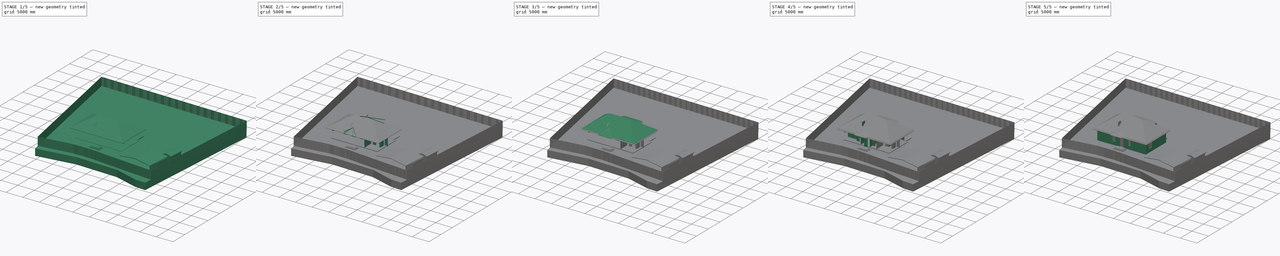
[diagram: build sequence overview — one tinted view per stage of 5, left to right]
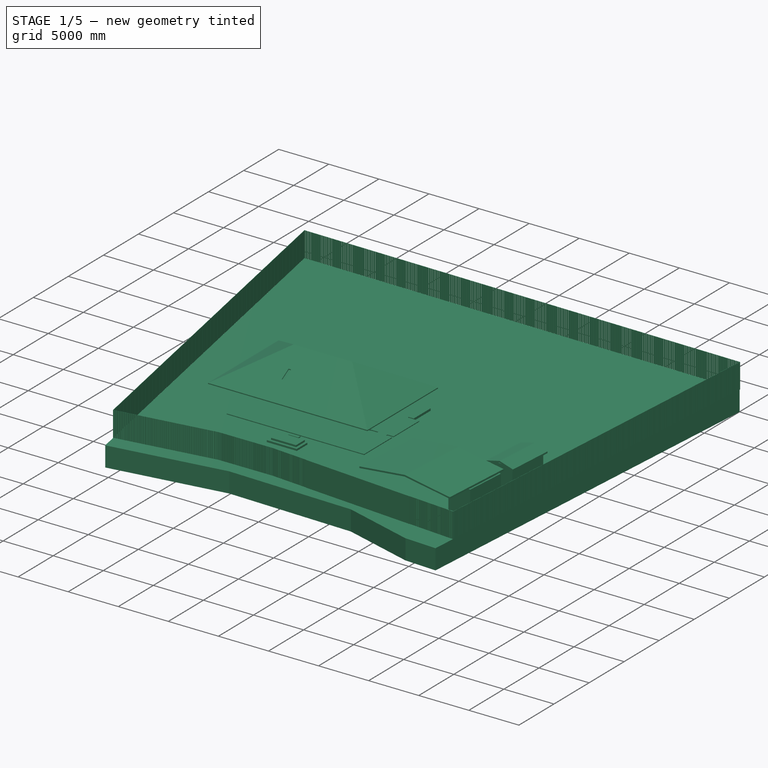
[diagram: stage 1 of 5 — iso view after this stage's code; geometry added in this stage tinted green]
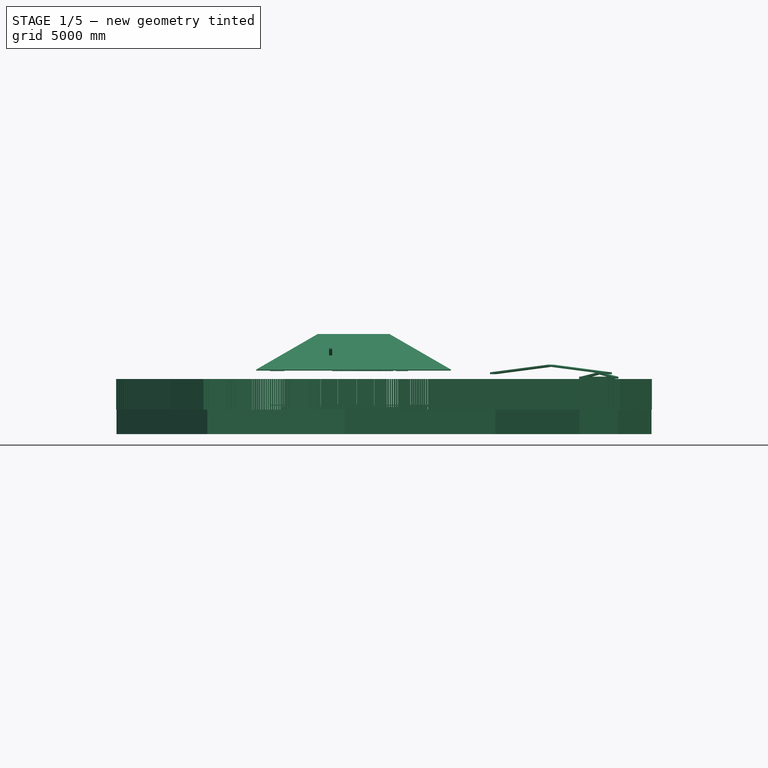
[diagram: stage 1 of 5 — front view after this stage's code; geometry added in this stage tinted green]
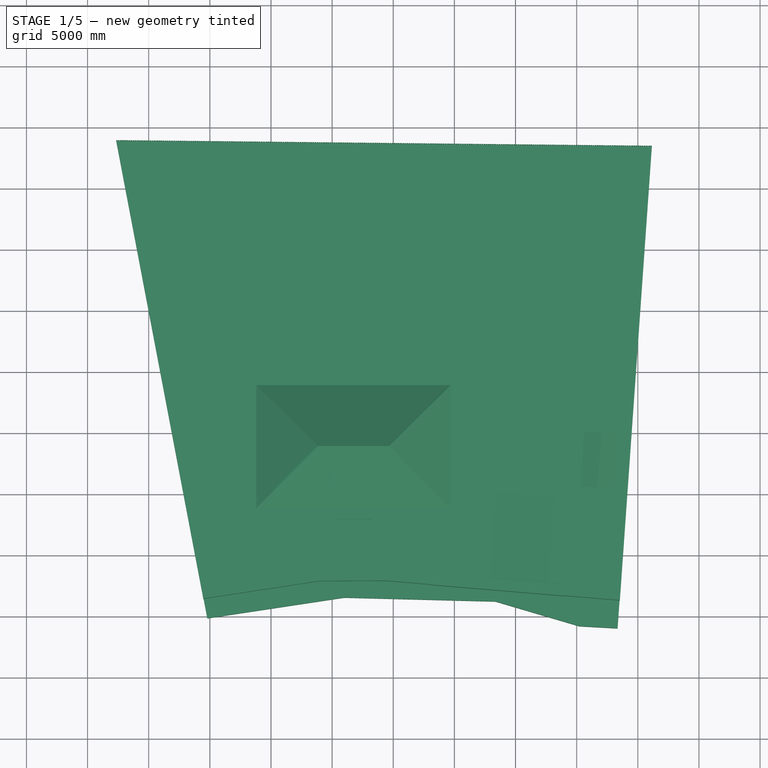
[diagram: stage 1 of 5 — top view after this stage's code; geometry added in this stage tinted green]
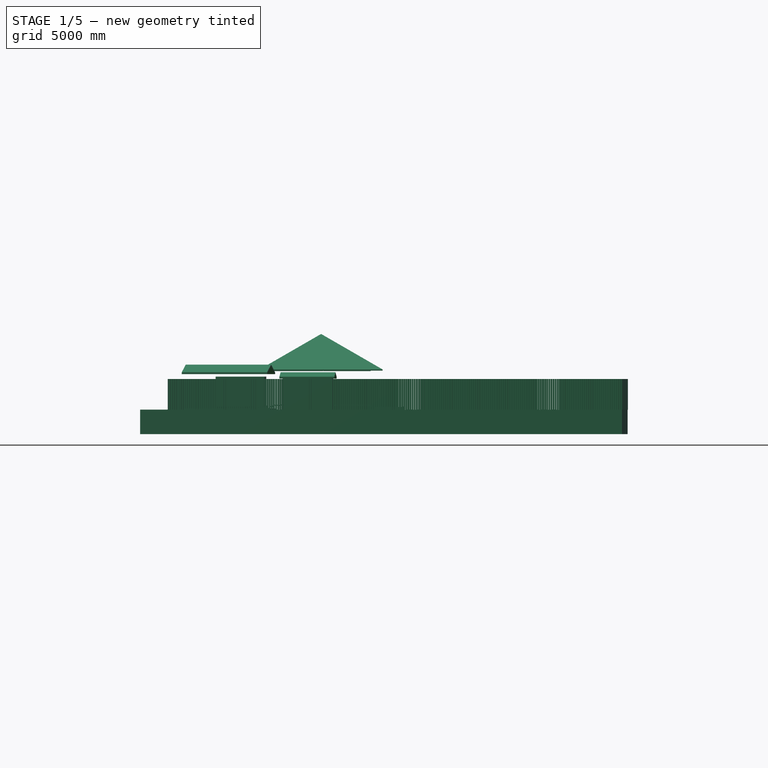
[diagram: stage 1 of 5 — right view after this stage's code; geometry added in this stage tinted green]
FCSTD DOCUMENT  (FreeCAD 0.18.4R)
Label: komfort_1fl_project_ext_221120_no_brick_blocks
License: All rights reserved
LicenseURL: http://en.wikipedia.org/wiki/All_rights_reserved
objects: Part::Part2DObjectPython×289, Part::FeaturePython×195, App::GeometryPython×27, Sketcher::SketchObject×19, Part::MultiCommon×18, Part::Feature×10, Part::Cut×10, Part::Extrusion×9, App::FeaturePython×5, Part::MultiFuse×4, App::DocumentObjectGroup×4, Part::Mirroring×1, Part::Loft×1, TechDraw::DrawSVGTemplate×1, TechDraw::DrawViewDraft×1, TechDraw::DrawPage×1, Image::ImagePlane×1
note: 583 computed .brp shape members not serialized (recipe doc carries the construction recipe); baked Part::Feature solids carry a one-line shape summary decoded from their .brp

FEATURE [App::GeometryPython] BuildingPart013  label="Утеплитель полки облицовки"  # Arch/BIM object (typed FeaturePython)
  Area = 0
  Group = -> [Array,Array010,Array011,Array012]
  Height = 0
  IfcRole = 0
  LevelOffset = 0
FEATURE [App::GeometryPython] BuildingPart012  label="Фундамент МЗЛФ"  # Arch/BIM object (typed FeaturePython)
  Area = 0
  Group = -> [Wall046,Wall047,BuildingPart013,Wall036]
  Height = 0
  IfcRole = 0
  LevelOffset = 0
FEATURE [App::GeometryPython] BuildingPart010  label="Фундамент и основание"  # Arch/BIM object (typed FeaturePython)
  Area = 0
  Group = -> [BuildingPart012]
  Height = 0
  IfcRole = 15
  LevelOffset = 0
FEATURE [Part::Part2DObjectPython] Rectangle2267  label="пол по грунту контур 002"  # Draft 2D object (typed FeaturePython)
  ChamferSize = 0
  Columns = 1
  FilletRadius = 0
  Height = 3655
  Length = 13710
  MakeFace = false
  Placement = pos=(-100,4100,0) rot=(0,0,1;0rad)
  Rows = 1
FEATURE [Part::Part2DObjectPython] Rectangle2268  label="пол по грунту контур 001"  # Draft 2D object (typed FeaturePython)
  ChamferSize = 0
  Columns = 1
  FilletRadius = 0
  Height = 4000
  Length = 13710
  MakeFace = false
  Placement = pos=(-100,-100,0) rot=(0,0,1;0rad)
  Rows = 1
FEATURE [Part::FeaturePython] Structure034  label="пол по грунту плита 80мм 001"  # Arch/BIM object (typed FeaturePython)
  Base = -> Rectangle2267
  FaceMaker = 0
  Height = 80
  HorizontalArea = 5.011e+07
  IfcRole = 0
  Length = 0
  MoveWithHost = false
  Nodes = (2) [(6755,5927.5,0),(6755,5927.5,80)]
  NodesOffset = 0
  Normal = (0,0,1)
  PerimeterLength = 34730
  Placement = pos=(0,0,-80) rot=(0,0,1;0rad)
  VerticalArea = 2.7784e+06
  Width = 100
FEATURE [Part::FeaturePython] Structure035  label="пол по грунту плита 80мм 002"  # Arch/BIM object (typed FeaturePython)
  Base = -> Rectangle2268
  FaceMaker = 0
  Height = 80
  HorizontalArea = 54840000
  IfcRole = 0
  Length = 0
  MoveWithHost = false
  Nodes = (2) [(6040,1827.5,0),(6040,1827.5,-100)]
  NodesOffset = 0
  Normal = (0,0,1)
  PerimeterLength = 35420
  Placement = pos=(0,0,-80) rot=(0,0,1;0rad)
  VerticalArea = 2.8336e+06
  Width = 100
FEATURE [Part::Part2DObjectPython] Circle071  # Draft 2D object (typed FeaturePython)
  FirstAngle = 0
  LastAngle = 0
  MakeFace = false
  Placement = pos=(8500,900,0) rot=(0,0,1;0rad)
  Radius = 580
FEATURE [Part::Part2DObjectPython] Circle072  # Draft 2D object (typed FeaturePython)
  FirstAngle = 0
  LastAngle = 0
  MakeFace = false
  Placement = pos=(8500,900,0) rot=(0,0,1;0rad)
  Radius = 500
FEATURE [Part::Part2DObjectPython] Circle073  label="люк_контур 001"  # Draft 2D object (typed FeaturePython)
  FirstAngle = 0
  LastAngle = 0
  MakeFace = false
  Placement = pos=(8500,1000,0) rot=(0,0,1;0rad)
  Radius = 350
FEATURE [Part::Part2DObjectPython] Rectangle2269  label="проём в перекрытии 002"  # Draft 2D object (typed FeaturePython)
  ChamferSize = 0
  Columns = 1
  FilletRadius = 0
  Height = 1000
  Length = 250
  MakeFace = false
  Placement = pos=(4750,800,0) rot=(0,0,1;0rad)
  Rows = 1
FEATURE [Part::FeaturePython] Structure036  label="проём в перекрытии 003"  # Arch/BIM object (typed FeaturePython)
  Base = -> Rectangle2269
  FaceMaker = 0
  Height = 6750
  HorizontalArea = 250000
  IfcRole = 0
  Length = 0
  MoveWithHost = false
  Nodes = (2) [(4875,1300,0),(4875,1300,6750)]
  NodesOffset = 0
  Normal = (0,0,0)
  PerimeterLength = 2500
  VerticalArea = 16875000
  Width = 100
FEATURE [Part::FeaturePython] Structure037  label="проём в перекрытии 004"  # Arch/BIM object (typed FeaturePython)
  Base = -> Rectangle1992
  FaceMaker = 0
  Height = 4500
  HorizontalArea = 2.66e+06
  IfcRole = 0
  Length = 0
  MoveWithHost = false
  Nodes = (2) [(9700,5430,0),(9700,5430,4500)]
  NodesOffset = 0
  Normal = (0,0,0)
  PerimeterLength = 7320
  VerticalArea = 32940000
  Width = 100
FEATURE [App::GeometryPython] BuildingPart019  label="Ненужное"  # Arch/BIM object (typed FeaturePython)
  Area = 0
  Group = -> [BuildingPart008,BuildingPart009,Structure044,BuildingPart015,BuildingPart017,Cut009,Common017,Common016]
  Height = 0
  IfcRole = 0
  LevelOffset = 0
FEATURE [Part::FeaturePython] Structure061  label="пол по грунту в проёмах 001"  # Arch/BIM object (typed FeaturePython)
  Base = -> Rectangle2327
  FaceMaker = 0
  Height = 80
  HorizontalArea = 240000
  IfcRole = 0
  Length = 0
  MoveWithHost = false
  Nodes = (2) [(1900,4000,0),(1900,4000,80)]
  NodesOffset = 0
  Normal = (0,0,1)
  PerimeterLength = 2800
  Placement = pos=(0,0,-80) rot=(0,0,1;0rad)
  VerticalArea = 224000
  Width = 100
FEATURE [Part::FeaturePython] Structure062  label="пол по грунту в проёмах 012"  # Arch/BIM object (typed FeaturePython)
  Base = -> Rectangle
  FaceMaker = 0
  Height = 80
  HorizontalArea = 740000
  IfcRole = 0
  Length = 0
  MoveWithHost = false
  Nodes = (2) [(6755,4000,0),(6755,4000,80)]
  NodesOffset = 0
  Normal = (0,0,1)
  PerimeterLength = 7800
  Placement = pos=(0,0,-80) rot=(0,0,1;0rad)
  VerticalArea = 624000
  Width = 100
FEATURE [Part::FeaturePython] Structure063  label="пол по грунту в проёмах 011"  # Arch/BIM object (typed FeaturePython)
  Base = -> Rectangle2147
  FaceMaker = 0
  Height = 80
  HorizontalArea = 180000
  IfcRole = 0
  Length = 0
  MoveWithHost = false
  Nodes = (2) [(10850,4000,0),(10850,4000,80)]
  NodesOffset = 0
  Normal = (0,0,1)
  PerimeterLength = 2200
  Placement = pos=(0,0,-80) rot=(0,0,1;0rad)
  VerticalArea = 176000
  Width = 100
FEATURE [Part::FeaturePython] Structure064  label="пол по грунту в проёмах 010"  # Arch/BIM object (typed FeaturePython)
  Base = -> Rectangle2322
  FaceMaker = 0
  Height = 80
  HorizontalArea = 180000
  IfcRole = 0
  Length = 0
  MoveWithHost = false
  Nodes = (2) [(12550,4000,0),(12550,4000,80)]
  NodesOffset = 0
  Normal = (0,0,1)
  PerimeterLength = 2200
  Placement = pos=(0,0,-80) rot=(0,0,1;0rad)
  VerticalArea = 176000
  Width = 100
FEATURE [Part::FeaturePython] Structure066  label="утепление пола в проёмах 014"  # Arch/BIM object (typed FeaturePython)
  Base = -> Rectangle
  FaceMaker = 0
  Height = 100
  HorizontalArea = 740000
  IfcRole = 0
  Length = 0
  MoveWithHost = false
  Nodes = (2) [(6755,4000,0),(6755,4000,100)]
  NodesOffset = 0
  Normal = (0,0,1)
  PerimeterLength = 7800
  Placement = pos=(0,0,-180) rot=(0,0,1;0rad)
  VerticalArea = 780000
  Width = 100
FEATURE [Part::FeaturePython] Structure067  label="утепление пола в проёмах 015"  # Arch/BIM object (typed FeaturePython)
  Base = -> Rectangle2147
  FaceMaker = 0
  Height = 100
  HorizontalArea = 180000
  IfcRole = 0
  Length = 0
  MoveWithHost = false
  Nodes = (2) [(10850,4000,0),(10850,4000,100)]
  NodesOffset = 0
  Normal = (0,0,1)
  PerimeterLength = 2200
  Placement = pos=(0,0,-180) rot=(0,0,1;0rad)
  VerticalArea = 220000
  Width = 100
FEATURE [Part::FeaturePython] Structure068  label="утепление пола в проёмах 016"  # Arch/BIM object (typed FeaturePython)
  Base = -> Rectangle2322
  FaceMaker = 0
  Height = 100
  HorizontalArea = 180000
  IfcRole = 0
  Length = 0
  MoveWithHost = false
  Nodes = (2) [(12550,4000,0),(12550,4000,100)]
  NodesOffset = 0
  Normal = (0,0,1)
  PerimeterLength = 2200
  Placement = pos=(0,0,-180) rot=(0,0,1;0rad)
  VerticalArea = 220000
  Width = 100
FEATURE [Part::FeaturePython] Structure069  label="утепление пола в проёмах 017"  # Arch/BIM object (typed FeaturePython)
  Base = -> Rectangle2169
  FaceMaker = 0
  Height = 100
  HorizontalArea = 300000
  IfcRole = 0
  Length = 0
  MoveWithHost = false
  Nodes = (2) [(6755,-250,0),(6755,-250,100)]
  NodesOffset = 0
  Normal = (0,0,1)
  PerimeterLength = 2600
  Placement = pos=(0,0,-180) rot=(0,0,1;0rad)
  VerticalArea = 260000
  Width = 100
FEATURE [Part::FeaturePython] Structure070  label="утепление пола в проёмах 018"  # Arch/BIM object (typed FeaturePython)
  Base = -> Rectangle2189
  FaceMaker = 0
  Height = 100
  HorizontalArea = 405000
  IfcRole = 0
  Length = 0
  MoveWithHost = false
  Nodes = (2) [(1815,7910,0),(1815,7910,100)]
  NodesOffset = 0
  Normal = (0,0,1)
  PerimeterLength = 3300
  Placement = pos=(0,0,-180) rot=(0,0,1;0rad)
  VerticalArea = 330000
  Width = 100
FEATURE [Part::FeaturePython] Structure071  label="утепление пола в проёмах 019"  # Arch/BIM object (typed FeaturePython)
  Base = -> Rectangle2188
  FaceMaker = 0
  Height = 100
  HorizontalArea = 561000
  IfcRole = 0
  Length = 0
  MoveWithHost = false
  Nodes = (2) [(6755,7910,0),(6755,7910,100)]
  NodesOffset = 0
  Normal = (0,0,1)
  PerimeterLength = 4340
  Placement = pos=(0,0,-180) rot=(0,0,1;0rad)
  VerticalArea = 434000
  Width = 100
FEATURE [Part::FeaturePython] Structure072  label="утепление пола в проёмах 020"  # Arch/BIM object (typed FeaturePython)
  Base = -> Rectangle2190
  FaceMaker = 0
  Height = 100
  HorizontalArea = 405000
  IfcRole = 0
  Length = 0
  MoveWithHost = false
  Nodes = (2) [(11695,7910,0),(11695,7910,100)]
  NodesOffset = 0
  Normal = (0,0,1)
  PerimeterLength = 3300
  Placement = pos=(0,0,-180) rot=(0,0,1;0rad)
  VerticalArea = 330000
  Width = 100
FEATURE [App::GeometryPython] BuildingPart020  label="Утепление пола по грунту"  # Arch/BIM object (typed FeaturePython)
  Area = 0
  Group = -> [Wall049,Wall048,Structure065,Structure066,Structure067,Structure068,Structure069,Structure070,Structure071,Structure072]
  Height = 0
  IfcRole = 0
  LevelOffset = 0
FEATURE [App::GeometryPython] BuildingPart021  label="Пол по грунту стяжка"  # Arch/BIM object (typed FeaturePython)
  Area = 0
  Group = -> [Structure034,Structure035,Structure064,Structure063,Structure062,Structure061]
  Height = 0
  IfcRole = 0
  LevelOffset = 0
FEATURE [App::GeometryPython] BuildingPart014  label="Полы по грунту"  # Arch/BIM object (typed FeaturePython)
  Area = 0
  Group = -> [BuildingPart020,BuildingPart021]
  Height = 0
  IfcRole = 0
  LevelOffset = 0
FEATURE [Part::Part2DObjectPython] Rectangle2356  # Draft 2D object (typed FeaturePython)
  ChamferSize = 0
  Columns = 1
  FilletRadius = 0
  Height = 8360
  Length = 14210
  MakeFace = false
  Placement = pos=(-350,8010,-980) rot=(1,0,0;3.14159rad)
  Rows = 1
FEATURE [Sketcher::SketchObject] Sketch248
  Placement = pos=(10400,3900,-180) rot=(1,0,0;1.5708rad)
  sketch-geometry (8):
    g0: LineSegment StartX=0 StartY=0 StartZ=0 EndX=900 EndY=0 EndZ=0
    g1: LineSegment StartX=900 StartY=0 StartZ=0 EndX=900 EndY=2070 EndZ=0
    g2: LineSegment StartX=900 StartY=2070 StartZ=0 EndX=0 EndY=2070 EndZ=0
    g3: LineSegment StartX=0 StartY=2070 StartZ=0 EndX=0 EndY=0 EndZ=0
    g4: LineSegment StartX=50 StartY=0 StartZ=0 EndX=850 EndY=0 EndZ=0
    g5: LineSegment StartX=850 StartY=0 StartZ=0 EndX=850 EndY=2020 EndZ=0
    g6: LineSegment StartX=850 StartY=2020 StartZ=0 EndX=50 EndY=2020 EndZ=0
    g7: LineSegment StartX=50 StartY=2020 StartZ=0 EndX=50 EndY=0 EndZ=0
  constraints (23):
    c: Coincident(g0,g1)
    c: Coincident(g1,g2)
    c: Coincident(g2,g3)
    c: Coincident(g3,g0)
    c: Horizontal(g0)
    c: Horizontal(g2)
    c: Vertical(g1)
    c: Vertical(g3)
    c: Coincident(g4,g5)
    c: Coincident(g5,g6)
    c: Coincident(g6,g7)
    c: Coincident(g7,g4)
    c: Horizontal(g4)
    c: Horizontal(g6)
    c: Vertical(g5)
    c: Vertical(g7)
    c: DistanceY(g1) = 2070  'Height'
    c: DistanceX(g0) = 900  'Width'
    c: DistanceY(g6,g2) = 50  'Frame1'
    c: DistanceX(g2,g6) = 50  'Frame2'
    c: DistanceX(g4,g0) = 50  'Frame3'
    c: DistanceY(g0,g4) = 0
    c: Coincident(g0,g-1)
FEATURE [Part::FeaturePython] Window020  label="Д-90-007"  # Arch/BIM object (typed FeaturePython)
  Area = 1863000
  Base = -> Sketch248
  Frame = 50
  Height = 2070
  HoleDepth = 0
  HoleWire = 0
  HorizontalArea = 0
  IfcRole = 42
  LouvreSpacing = 0
  LouvreWidth = 0
  MoveWithHost = true
  Normal = (0,1,-2e-16)
  Offset = 150
  Opening = 0
  PerimeterLength = 0
  Placement = pos=(0,0,180) rot=(0,0,1;0rad)
  Preset = 6
  SymbolElevation = false
  SymbolPlan = false
  VerticalArea = 0
  Width = 900
  WindowParts = OuterFrame | Frame | Wire0,Wire1 | 0.0+V | 0.00+V | Door | Solid panel | Wire1 | 50.0 | 0.0+V
FEATURE [App::GeometryPython] BuildingPart011  label="Окна и двери"  # Arch/BIM object (typed FeaturePython)
  Area = 0
  Group = -> [Window,Window002,Window003,Window007,Window008,Window009,Window010,Window011,Window013,Window016,Window015,Window017,Window018,Window019,Window020]
  Height = 0
  IfcRole = 0
  LevelOffset = 0
FEATURE [App::GeometryPython] BuildingPart004  label="Первый этаж"  # Arch/BIM object (typed FeaturePython)
  Area = 0
  Group = -> [BuildingPart002,Wall010,Wall011,BuildingPart,BuildingPart005,BuildingPart011,Extrude002,BuildingPart014]
  Height = 0
  IfcRole = 15
  LevelOffset = 0
FEATURE [Sketcher::SketchObject] Sketch249  label="Профиль ПНО 100-6"
  Placement = pos=(0,0,0) rot=(1,0,0;1.5708rad)
  sketch-geometry (15):
    g0: LineSegment StartX=0 StartY=0 StartZ=0 EndX=990 EndY=0 EndZ=0
    g1: LineSegment StartX=990 StartY=0 StartZ=0 EndX=990 EndY=160 EndZ=0
    g2: LineSegment StartX=990 StartY=160 StartZ=0 EndX=0 EndY=160 EndZ=0
    g3: LineSegment StartX=0 StartY=160 StartZ=0 EndX=0 EndY=0 EndZ=0
    g4: Circle CenterX=145 CenterY=80 CenterZ=0 NormalX=0 NormalY=0 NormalZ=1 AngleXU=0 Radius=50
    g5: Circle CenterX=285 CenterY=80 CenterZ=0 NormalX=0 NormalY=0 NormalZ=1 AngleXU=0 Radius=50
    g6: LineSegment [constr] StartX=145 StartY=80 StartZ=0 EndX=285 EndY=80 EndZ=0
    g7: Circle CenterX=425 CenterY=80 CenterZ=0 NormalX=0 NormalY=0 NormalZ=1 AngleXU=0 Radius=50
    g8: LineSegment [constr] StartX=285 StartY=80 StartZ=0 EndX=425 EndY=80 EndZ=0
    g9: Circle CenterX=565 CenterY=80 CenterZ=0 NormalX=0 NormalY=0 NormalZ=1 AngleXU=0 Radius=50
    g10: LineSegment [constr] StartX=425 StartY=80 StartZ=0 EndX=565 EndY=80 EndZ=0
    g11: Circle CenterX=705 CenterY=80 CenterZ=0 NormalX=0 NormalY=0 NormalZ=1 AngleXU=0 Radius=50
    g12: LineSegment [constr] StartX=565 StartY=80 StartZ=0 EndX=705 EndY=80 EndZ=0
    g13: Circle CenterX=845 CenterY=80 CenterZ=0 NormalX=0 NormalY=0 NormalZ=1 AngleXU=0 Radius=50
    g14: LineSegment [constr] StartX=705 StartY=80 StartZ=0 EndX=845 EndY=80 EndZ=0
  constraints (39):
    c: Coincident(g0,g1)
    c: Coincident(g1,g2)
    c: Coincident(g2,g3)
    c: Coincident(g3,g0)
    c: Horizontal(g0)
    c: Horizontal(g2)
    c: Vertical(g1)
    c: Vertical(g3)
    c: Coincident(g0,g-1)
    c: DistanceY(g3,g3) = 160
    c: DistanceX(g2,g2) = 990
    c: Diameter(g4) = 100
    c: DistanceY(g4,g2) = 80
    c: Diameter(g5) = 100
    c: Coincident(g4,g6)
    c: Coincident(g5,g6)
    c: Distance(g6) = 140
    c: Angle(g6) = 0
    c: Diameter(g7) = 100
    c: Coincident(g5,g8)
    c: Coincident(g7,g8)
    c: Equal(g6,g8)
    c: Parallel(g8,g6)
    c: Diameter(g9) = 100
    c: Coincident(g7,g10)
    c: Coincident(g9,g10)
    c: Equal(g6,g10)
    c: Parallel(g10,g6)
    c: Diameter(g11) = 100
    c: Coincident(g9,g12)
    c: Coincident(g11,g12)
    c: Equal(g6,g12)
    c: Parallel(g12,g6)
    c: Diameter(g13) = 100
    c: Coincident(g11,g14)
    c: Coincident(g13,g14)
    c: Equal(g6,g14)
    c: Parallel(g14,g6)
    c: DistanceX(g2,g4) = 145
FEATURE [Part::Extrusion] Extrude003  label="ПНО 39-10-6-001"
  Base = -> Sketch249
  Dir = (0,1,0)
  DirMode = 0
  FaceMakerClass = Part::FaceMakerBullseye
  LengthFwd = 3880
  LengthRev = 0
  Placement = pos=(7110,4000,2750) rot=(0,0,1;0rad)
  Solid = true
  Symmetric = false
FEATURE [Part::Extrusion] Extrude004  label="ПНО 39-12-8-002"
  Base = -> Sketch231
  Dir = (0,1,0)
  DirMode = 0
  FaceMakerClass = Part::FaceMakerBullseye
  LengthFwd = 3880
  LengthRev = 0
  Placement = pos=(-90,4000,2750) rot=(0,0,1;0rad)
  Solid = true
  Symmetric = false
FEATURE [Part::Extrusion] Extrude005  label="ПНО 39-10-6-002"
  Base = -> Sketch249
  Dir = (0,1,0)
  DirMode = 0
  FaceMakerClass = Part::FaceMakerBullseye
  LengthFwd = 3880
  LengthRev = 0
  Placement = pos=(10210,4000,2750) rot=(0,0,1;0rad)
  Solid = true
  Symmetric = false
FEATURE [Part::FeaturePython] Array016  # Draft array (typed FeaturePython)
  Angle = 360
  ArrayType = 0
  Axis = (0,0,1)
  Base = -> Extrude003
  Center = (0,0,0)
  Fuse = false
  IntervalAxis = (0,0,0)
  IntervalX = (1000,0,0)
  IntervalY = (0,1,0)
  IntervalZ = (0,0,1)
  NumberPolar = 1
  NumberX = 2
  NumberY = 1
  NumberZ = 1
  Placement = pos=(-1.5e-14,0,0) rot=(0,0,1;0rad)
FEATURE [Part::Extrusion] Extrude006  label="ПНО 42-10-6-001"
  Base = -> Sketch249
  Dir = (0,1,0)
  DirMode = 0
  FaceMakerClass = Part::FaceMakerBullseye
  LengthFwd = 4180
  LengthRev = 0
  Placement = pos=(5010,-190,2750) rot=(0,0,1;0rad)
  Solid = true
  Symmetric = false
FEATURE [Part::FeaturePython] Array017  # Draft array (typed FeaturePython)
  Angle = 360
  ArrayType = 0
  Axis = (0,0,1)
  Base = -> Extrude006
  Center = (0,0,0)
  Fuse = false
  IntervalAxis = (0,0,0)
  IntervalX = (1000,0,0)
  IntervalY = (0,1,0)
  IntervalZ = (0,0,1)
  NumberPolar = 1
  NumberX = 5
  NumberY = 1
  NumberZ = 1
  Placement = pos=(-1.5e-14,0,0) rot=(0,0,1;0rad)
FEATURE [Part::Part2DObjectPython] Wire459  # Draft 2D object (typed FeaturePython)
  ChamferSize = 0
  Closed = true
  End = (-1100,8760,0)
  FilletRadius = 0
  Length = 51140
  MakeFace = false
  Placement = pos=(-1100,-1100,0) rot=(0,0,1;0rad)
  Points = (4) [(0,0,0),(15710,0,0),(15710,9860,0),(0,9860,0)]
  Start = (-1100,-1100,0)
  Subdivisions = 0
FEATURE [Part::FeaturePython] Roof008  label="Крыша основная"  # Arch/BIM object (typed FeaturePython)
  Angles = [30,30,30,30]
  Base = -> Wire459
  BorderLength = 54749.4
  Face = 0
  Flip = false
  Heights = [2846.34,2846.34,2846.34,2846.34]
  HorizontalArea = 105328200
  IdRel = [0,0,0,0]
  IfcRole = 111
  MoveWithHost = false
  Overhang = [100,100,100,100]
  PerimeterLength = 56107
  Placement = pos=(0,0,2850) rot=(0,0,1;0rad)
  RidgeLength = 36583.8
  Runs = [4930,4930,4930,4930]
  Subtractions = -> [Structure036]
  Thickness = [80,80,80,80]
  VerticalArea = 5.02895e+06
FEATURE [App::GeometryPython] BuildingPart007  label="Чердак и кровля"  # Arch/BIM object (typed FeaturePython)
  Area = 0
  Group = -> [Roof008,BuildingPart018]
  Height = 0
  IfcRole = 15
  LevelOffset = 0
FEATURE [Part::Part2DObjectPython] Rectangle2358  # Draft 2D object (typed FeaturePython)
  ChamferSize = 0
  Columns = 1
  FilletRadius = 0
  Height = 580
  Length = 580
  MakeFace = false
  Placement = pos=(-1100,-1100,0) rot=(0,0,1;0rad)
  Rows = 1
FEATURE [Part::Part2DObjectPython] Rectangle2359  # Draft 2D object (typed FeaturePython)
  ChamferSize = 0
  Columns = 1
  FilletRadius = 0
  Height = 580
  Length = 580
  MakeFace = false
  Placement = pos=(14030,8180,0) rot=(0,0,1;0rad)
  Rows = 1
FEATURE [Part::Part2DObjectPython] Rectangle2360  # Draft 2D object (typed FeaturePython)
  ChamferSize = 0
  Columns = 1
  FilletRadius = 0
  Height = 580
  Length = 580
  MakeFace = false
  Placement = pos=(-1100,8180,0) rot=(0,0,1;0rad)
  Rows = 1
FEATURE [Part::Part2DObjectPython] Rectangle2361  # Draft 2D object (typed FeaturePython)
  ChamferSize = 0
  Columns = 1
  FilletRadius = 0
  Height = 580
  Length = 580
  MakeFace = false
  Placement = pos=(14030,-1100,0) rot=(0,0,1;0rad)
  Rows = 1
FEATURE [Part::Part2DObjectPython] Rectangle2362  # Draft 2D object (typed FeaturePython)
  ChamferSize = 0
  Columns = 1
  FilletRadius = 0
  Height = 70
  Length = 70
  MakeFace = false
  Placement = pos=(14610,8760,0) rot=(0,0,1;0rad)
  Rows = 1
FEATURE [Part::Part2DObjectPython] Rectangle2363  # Draft 2D object (typed FeaturePython)
  ChamferSize = 0
  Columns = 1
  FilletRadius = 0
  Height = 70
  Length = 70
  MakeFace = false
  Placement = pos=(14610,-1170,0) rot=(0,0,1;0rad)
  Rows = 1
FEATURE [Part::Part2DObjectPython] Rectangle2364  # Draft 2D object (typed FeaturePython)
  ChamferSize = 0
  Columns = 1
  FilletRadius = 0
  Height = 4540
  Length = 10380
  MakeFace = false
  Placement = pos=(1570,1560,0) rot=(0,0,1;0rad)
  Rows = 1
FEATURE [Part::Part2DObjectPython] Wire460  label="границы участка"  # Draft 2D object (typed FeaturePython)
  ChamferSize = 0
  Closed = true
  End = (31124.9,28433.6,0)
  FilletRadius = 0
  Length = 156987
  MakeFace = false
  Placement = pos=(28345.4,-10972.9,0) rot=(0,0,1;0rad)
  Points = (7) [(0,0,0),(-3118.22,176.296,0),(-9989.98,2199.83,0),(-22349.9,2518.26,0),(-33551.4,825.818,0),(-40981.4,39865.2,0),(2779.54,39406.5,0)]
  Start = (28345.4,-10972.9,0)
  Subdivisions = 0
FEATURE [Part::Part2DObjectPython] Rectangle2365  label="зона парковки-навес"  # Draft 2D object (typed FeaturePython)
  ChamferSize = 0
  Columns = 1
  FilletRadius = 0
  Height = 7000
  Length = 7000
  MakeFace = false
  Placement = pos=(17916.6,-6918.81,0) rot=(0,0,-1;0.068796rad)
  Rows = 1
FEATURE [Part::Part2DObjectPython] Rectangle2368  # Draft 2D object (typed FeaturePython)
  ChamferSize = 0
  Columns = 1
  FilletRadius = 0
  Height = 2300
  Length = 4000
  MakeFace = false
  Placement = pos=(25852.9,4833.9,0) rot=(0,0,-1;1.63959rad)
  Rows = 1
FEATURE [Part::Part2DObjectPython] Wire462  label="мауэрлат002"  # Draft 2D object (typed FeaturePython)
  ChamferSize = 0
  Closed = true
  End = (25852.9,4833.9,0)
  FilletRadius = 0
  Length = 12600
  MakeFace = false
  Placement = pos=(25577.9,843.359,0) rot=(0,0,-1;1.63959rad)
  Points = (4) [(0,0,0),(0,2300,0),(-4000,2300,0),(-4000,-2.18279e-11,0)]
  Start = (25577.9,843.359,0)
  Subdivisions = 0
FEATURE [Part::FeaturePython] Roof010  label="Крыша001"  # Arch/BIM object (typed FeaturePython)
  Angles = [90,14.6,90,14.6]
  Base = -> Wire462
  BorderLength = 15096.9
  Face = 0
  Flip = false
  Heights = [0,299.553,0,299.553]
  HorizontalArea = 1.26e+07
  IdRel = [0,0,0,0]
  IfcRole = 111
  MoveWithHost = false
  Overhang = [250,250,250,250]
  PerimeterLength = 14600
  Placement = pos=(0,0,2200) rot=(0,0,1;0rad)
  RidgeLength = 7393.43
  Runs = [250,1150,250,1150]
  Thickness = [150,150,150,150]
  VerticalArea = 2.26308e+06
FEATURE [Part::Part2DObjectPython] Rectangle2370  # Draft 2D object (typed FeaturePython)
  ChamferSize = 0
  Columns = 1
  FilletRadius = 0
  Height = 500
  Length = 150
  MakeFace = true
  Placement = pos=(26037.1,962.071,0) rot=(0,0,-1;1.63959rad)
  Rows = 1
FEATURE [Part::Part2DObjectPython] Rectangle2372  # Draft 2D object (typed FeaturePython)
  ChamferSize = 0
  Columns = 1
  FilletRadius = 0
  Height = 150
  Length = 500
  MakeFace = true
  Placement = pos=(25753.2,3387.33,0) rot=(0,0,-1;1.63959rad)
  Rows = 1
FEATURE [Part::FeaturePython] Structure128  label="Structure"  # Arch/BIM object (typed FeaturePython)
  Base = -> Rectangle2372
  FaceMaker = 0
  Height = 600
  HorizontalArea = 75000
  IfcRole = 0
  Length = 0
  MoveWithHost = false
  Nodes = (2) [(1351.07,-25965.1,0),(1351.07,-25965.1,600)]
  NodesOffset = 0
  Normal = (0,0,0)
  PerimeterLength = 1300
  Placement = pos=(0,-4e-15,1240) rot=(0,0,1;0rad)
  VerticalArea = 780000
  Width = 100
FEATURE [Part::FeaturePython] Structure130  label="Structure129"  # Arch/BIM object (typed FeaturePython)
  Base = -> Rectangle2370
  FaceMaker = 0
  Height = 600
  HorizontalArea = 75000
  IfcRole = 0
  Length = 0
  MoveWithHost = false
  Nodes = (2) [(-938.622,-26279,0),(-938.622,-26279,600)]
  NodesOffset = 0
  Normal = (0,0,0)
  PerimeterLength = 1300
  Placement = pos=(0,-4e-15,1240) rot=(0,0,1;0rad)
  VerticalArea = 780000
  Width = 100
FEATURE [Part::Part2DObjectPython] Rectangle2373  # Draft 2D object (typed FeaturePython)
  ChamferSize = 0
  Columns = 1
  FilletRadius = 0
  Height = 150
  Length = 800
  MakeFace = true
  Placement = pos=(25667.3,2140.28,0) rot=(0,0,-1;1.63959rad)
  Rows = 1
FEATURE [Part::FeaturePython] Structure131  label="Structure130"  # Arch/BIM object (typed FeaturePython)
  Base = -> Rectangle2373
  FaceMaker = 0
  Height = 1800
  HorizontalArea = 120000
  IfcRole = 0
  Length = 0
  MoveWithHost = false
  Nodes = (2) [(-35.6948,-25773.1,0),(-35.6948,-25773.1,1800)]
  NodesOffset = 0
  Normal = (0,0,0)
  PerimeterLength = 1900
  VerticalArea = 3.42e+06
  Width = 100
FEATURE [Part::FeaturePython] Wall094  label="Wall005"  # Arch/BIM object (typed FeaturePython)
  Align = 1
  Base = -> Rectangle2368
  BlockHeight = 0
  BlockLength = 0
  CountBroken = 0
  CountEntire = 0
  Face = 0
  Height = 2450
  HorizontalArea = 1.95e+06
  IfcRole = 156
  Joint = 0
  Length = 12600
  MakeBlocks = false
  MoveWithHost = false
  Normal = (0,0,0)
  OffsetFirst = 0
  OffsetSecond = 0
  PerimeterLength = 12600
  Placement = pos=(0,0,-150) rot=(0,0,1;0rad)
  Subtractions = -> [Structure128,Structure130,Structure131]
  VerticalArea = 57960000
  Width = 150
FEATURE [App::DocumentObjectGroup] Group115  label="Элементы баня"
  Group = -> [Wire462,Rectangle2373,Rectangle2370,Rectangle2372,Rectangle2368]
FEATURE [Part::FeaturePython] Structure132  label="парковка"  # Arch/BIM object (typed FeaturePython)
  Base = -> Rectangle2365
  FaceMaker = 0
  Height = 100
  HorizontalArea = 4.9e+07
  IfcRole = 0
  Length = 0
  MoveWithHost = false
  Nodes = (2) [(21648.9,-3667.68,0),(21648.9,-3667.68,-100)]
  NodesOffset = 0
  Normal = (0,0,-1)
  PerimeterLength = 28000
  Placement = pos=(0,0,-300) rot=(0,0,1;0rad)
  VerticalArea = 2.8e+06
  Width = 100
FEATURE [Part::Part2DObjectPython] Wire463  label="граница по ограждению"  # Draft 2D object (typed FeaturePython)
  ChamferSize = 0
  Closed = true
  End = (9400,-7084.9,0)
  FilletRadius = 0
  Length = 153279
  MakeFace = false
  Placement = pos=(28492.8,-8682.66,0) rot=(0,0,1;0rad)
  Points = (6) [(14.0233,-1.17368,0),(2632.1,37116.3,0),(-41128.8,37575,0),(-34003,133.748,0),(-24492.8,1579.34,0),(-19092.8,1597.76,0)]
  Start = (28506.9,-8683.84,0)
  Subdivisions = 0
FEATURE [Part::FeaturePython] Structure133  label="грунт в границах участка"  # Arch/BIM object (typed FeaturePython)
  Base = -> Wire460
  FaceMaker = 0
  Height = 2000
  HorizontalArea = 1.47224e+09
  IfcRole = 0
  Length = 0
  MoveWithHost = false
  Nodes = (2) [(10380.4,10482.9,0),(10380.4,10482.9,-2000)]
  NodesOffset = 0
  Normal = (0,0,-1)
  PerimeterLength = 156987
  Placement = pos=(0,0,-400) rot=(0,0,1;0rad)
  VerticalArea = 3.13974e+08
  Width = 100
FEATURE [Part::FeaturePython] Wall096  label="Wall006"  # Arch/BIM object (typed FeaturePython)
  Align = 0
  Base = -> Rectangle2368
  BlockHeight = 0
  BlockLength = 0
  CountBroken = 0
  CountEntire = 0
  Face = 0
  Height = 500
  HorizontalArea = 1.18e+06
  IfcRole = 156
  Joint = 0
  Length = 12600
  MakeBlocks = false
  MoveWithHost = false
  Normal = (0,0,-1)
  Offset = 50
  OffsetFirst = 0
  OffsetSecond = 0
  PerimeterLength = 12200
  Placement = pos=(0,0,-150) rot=(0,0,1;0rad)
  VerticalArea = 1.18e+07
  Width = 100
FEATURE [App::GeometryPython] BuildingPart032  label="Баня (перевозная)"  # Arch/BIM object (typed FeaturePython)
  Area = 0
  BuildingType = 0
  Group = -> [Wall094,Roof010,Wall096]
  Height = 0
  IfcRole = 11
  LevelOffset = 0
FEATURE [Part::Part2DObjectPython] Wire464  label="мауэрлат003"  # Draft 2D object (typed FeaturePython)
  ChamferSize = 0
  Closed = true
  End = (18397.7,64.633,0)
  FilletRadius = 0
  Length = 33000
  MakeFace = false
  Placement = pos=(25199.8,-4643.63,0) rot=(0,0,-1;1.63959rad)
  Points = (4) [(2770.46,-7109.62,0),(2770.46,2390.38,0),(-4229.54,2390.38,0),(-4229.54,-7109.62,0)]
  Start = (17916.6,-6918.81,0)
  Subdivisions = 0
FEATURE [Part::Part2DObjectPython] Rectangle2375  # Draft 2D object (typed FeaturePython)
  ChamferSize = 0
  Columns = 1
  FilletRadius = 0
  Height = 150
  Length = 800
  MakeFace = true
  Placement = pos=(25395.7,-1800.37,0) rot=(0,0,-1;1.63959rad)
  Rows = 1
FEATURE [Part::Part2DObjectPython] Rectangle2376  # Draft 2D object (typed FeaturePython)
  ChamferSize = 0
  Columns = 1
  FilletRadius = 0
  Height = 150
  Length = 500
  MakeFace = true
  Placement = pos=(25296,-3246.94,0) rot=(0,0,-1;1.63959rad)
  Rows = 1
FEATURE [Part::Part2DObjectPython] Rectangle2377  # Draft 2D object (typed FeaturePython)
  ChamferSize = 0
  Columns = 1
  FilletRadius = 0
  Height = 2300
  Length = 4000
  MakeFace = false
  Placement = pos=(25474.8,-653.093,0) rot=(0,0,-1;1.63959rad)
  Rows = 1
FEATURE [Part::FeaturePython] Roof011  label="Крыша002"  # Arch/BIM object (typed FeaturePython)
  Angles = [90,7.5,90,7.5]
  Base = -> Wire464
  BorderLength = 33163.9
  Face = 0
  Flip = false
  Heights = [0,658.262,0,658.262]
  HorizontalArea = 6.65e+07
  IdRel = [0,0,0,0]
  IfcRole = 111
  MoveWithHost = false
  Overhang = [0,0,0,0]
  PerimeterLength = 33000
  Placement = pos=(0,0,2500) rot=(0,0,1;0rad)
  RidgeLength = 7000
  Runs = [250,5000,250,5000]
  Thickness = [150,150,150,150]
  VerticalArea = 4.99271e+06
FEATURE [Part::FeaturePython] Structure135  label="Structure134"  # Arch/BIM object (typed FeaturePython)
  Base = -> Rectangle2375
  FaceMaker = 0
  Height = 1800
  HorizontalArea = 120000
  IfcRole = 0
  Length = 0
  MoveWithHost = false
  Nodes = (2) [(-35.6948,-25773.1,0),(-35.6948,-25773.1,1800)]
  NodesOffset = 0
  Normal = (0,0,0)
  PerimeterLength = 1900
  VerticalArea = 3.42e+06
  Width = 100
FEATURE [Part::FeaturePython] Structure136  label="Structure135"  # Arch/BIM object (typed FeaturePython)
  Base = -> Rectangle2376
  FaceMaker = 0
  Height = 600
  HorizontalArea = 75000
  IfcRole = 0
  Length = 0
  MoveWithHost = false
  Nodes = (2) [(1351.07,-25965.1,0),(1351.07,-25965.1,600)]
  NodesOffset = 0
  Normal = (0,0,0)
  PerimeterLength = 1300
  Placement = pos=(0,-4e-15,1240) rot=(0,0,1;0rad)
  VerticalArea = 780000
  Width = 100
FEATURE [Part::FeaturePython] Wall097  label="Wall007"  # Arch/BIM object (typed FeaturePython)
  Align = 1
  Base = -> Rectangle2377
  BlockHeight = 0
  BlockLength = 0
  CountBroken = 0
  CountEntire = 0
  Face = 0
  Height = 2450
  HorizontalArea = 1.995e+06
  IfcRole = 156
  Joint = 0
  Length = 12600
  MakeBlocks = false
  MoveWithHost = false
  Normal = (0,0,0)
  OffsetFirst = 0
  OffsetSecond = 0
  PerimeterLength = 12600
  Placement = pos=(0,0,-150) rot=(0,0,1;0rad)
  Subtractions = -> [Structure136,Structure135]
  VerticalArea = 5.604e+07
  Width = 150
FEATURE [App::GeometryPython] BuildingPart033  label="хозблок (бытовка)"  # Arch/BIM object (typed FeaturePython)
  Area = 0
  BuildingType = 0
  Group = -> [Roof011,Wall097,Structure132]
  Height = 0
  IfcRole = 11
  LevelOffset = 0
FEATURE [Part::Part2DObjectPython] Rectangle2378  # Draft 2D object (typed FeaturePython)
  ChamferSize = 0
  Columns = 1
  FilletRadius = 0
  Height = 7000
  Length = 9500
  MakeFace = false
  Placement = pos=(17916.6,-6918.81,0) rot=(0,0,-1;0.068796rad)
  Rows = 1
FEATURE [Part::Part2DObjectPython] Rectangle2379  # Draft 2D object (typed FeaturePython)
  ChamferSize = 0
  Columns = 1
  FilletRadius = 0
  Height = 100
  Length = 5500
  MakeFace = false
  Placement = pos=(18428,-7890.57,0) rot=(0,0,-1;0.083489rad)
  Rows = 1
FEATURE [Part::FeaturePython] Structure137  label="проём ворот"  # Arch/BIM object (typed FeaturePython)
  Base = -> Rectangle2379
  FaceMaker = 0
  Height = 2500
  HorizontalArea = 550000
  IfcRole = 0
  Length = 0
  MoveWithHost = false
  Nodes = (2) [(21172.6,-8270.08,0),(21172.6,-8270.08,2500)]
  NodesOffset = 0
  Normal = (0,0,0)
  PerimeterLength = 11200
  Placement = pos=(0,0,-400) rot=(0,0,1;0rad)
  VerticalArea = 2.8e+07
  Width = 100
FEATURE [Part::FeaturePython] Wall095  label="Ограждение"  # Arch/BIM object (typed FeaturePython)
  Align = 0
  Base = -> Wire463
  BlockHeight = 2500
  BlockLength = 150
  CountBroken = 8
  CountEntire = 837
  Face = 0
  Height = 2500
  HorizontalArea = 3.13974e+07
  IfcRole = 156
  Joint = 25
  Length = 153279
  MakeBlocks = true
  MoveWithHost = false
  Normal = (0,0,0)
  OffsetFirst = 0
  OffsetSecond = 0
  PerimeterLength = 157813
  Placement = pos=(0,0,-400) rot=(0,0,1;0rad)
  Subtractions = -> [Structure137]
  VerticalArea = 6.27949e+08
  Width = 25
FEATURE [Part::FeaturePython] Structure138  label="зона отката ворот ворот"  # Arch/BIM object (typed FeaturePython)
  Base = -> Rectangle2379
  FaceMaker = 0
  Height = 2500
  HorizontalArea = 550000
  IfcRole = 0
  Length = 0
  MoveWithHost = false
  Nodes = (2) [(21172.6,-8270.08,0),(21172.6,-8270.08,2500)]
  NodesOffset = 0
  Normal = (0,0,0)
  PerimeterLength = 11200
  Placement = pos=(-5480.84,458.658,-400) rot=(0,0,1;0rad)
  VerticalArea = 2.8e+07
  Width = 100
FEATURE [Part::Part2DObjectPython] Rectangle2380  # Draft 2D object (typed FeaturePython)
  ChamferSize = 0
  Columns = 1
  FilletRadius = 0
  Height = 50
  Length = 5500
  MakeFace = false
  Placement = pos=(18428,-7890.57,0) rot=(0,0,-1;0.083489rad)
  Rows = 1
FEATURE [Part::FeaturePython] Structure139  label="створка ворот"  # Arch/BIM object (typed FeaturePython)
  Base = -> Rectangle2380
  FaceMaker = 0
  Height = 2500
  HorizontalArea = 275000
  IfcRole = 0
  Length = 0
  MoveWithHost = false
  Nodes = (2) [(21172.6,-8270.08,0),(21172.6,-8270.08,2500)]
  NodesOffset = 0
  Normal = (0,0,0)
  PerimeterLength = 11100
  Placement = pos=(0,0,-400) rot=(0,0,1;0rad)
  VerticalArea = 2.775e+07
  Width = 100
FEATURE [App::GeometryPython] BuildingPart034  label="ворота откатные"  # Arch/BIM object (typed FeaturePython)
  Area = 0
  Group = -> [Structure138,Structure139]
  Height = 0
  IfcRole = 0
  LevelOffset = 0
FEATURE [Sketcher::SketchObject] Sketch250  label="Габарит человека"
  Placement = pos=(0,0,0) rot=(1,0,0;1.5708rad)
  sketch-geometry (21):
    g0: LineSegment [constr] StartX=-250 StartY=0 StartZ=0 EndX=250 EndY=0 EndZ=0
    g1: LineSegment [constr] StartX=250 StartY=0 StartZ=0 EndX=250 EndY=1750 EndZ=0
    g2: LineSegment [constr] StartX=250 StartY=1750 StartZ=0 EndX=-250 EndY=1750 EndZ=0
    g3: LineSegment [constr] StartX=-250 StartY=1750 StartZ=0 EndX=-250 EndY=0 EndZ=0
    g4: LineSegment StartX=-85 StartY=1500 StartZ=0 EndX=85 EndY=1500 EndZ=0
    g5: LineSegment StartX=85 StartY=1500 StartZ=0 EndX=85 EndY=1750 EndZ=0
    g6: LineSegment StartX=85 StartY=1750 StartZ=0 EndX=-85 EndY=1750 EndZ=0
    g7: LineSegment StartX=-85 StartY=1750 StartZ=0 EndX=-85 EndY=1500 EndZ=0
    g8: LineSegment StartX=-250 StartY=750 StartZ=0 EndX=250 EndY=750 EndZ=0
    g9: LineSegment StartX=250 StartY=750 StartZ=0 EndX=250 EndY=1500 EndZ=0
    g10: LineSegment StartX=250 StartY=1500 StartZ=0 EndX=-250 EndY=1500 EndZ=0
    g11: LineSegment StartX=-250 StartY=1500 StartZ=0 EndX=-250 EndY=750 EndZ=0
    g12: LineSegment StartX=-110 StartY=0 StartZ=0 EndX=110 EndY=0 EndZ=0
    g13: LineSegment StartX=110 StartY=0 StartZ=0 EndX=175 EndY=750 EndZ=0
    g14: LineSegment StartX=175 StartY=750 StartZ=0 EndX=-175 EndY=750 EndZ=0
    g15: LineSegment StartX=-175 StartY=750 StartZ=0 EndX=-110 EndY=0 EndZ=0
    g16: GeomPoint X=0 Y=750 Z=0
    g17: GeomPoint X=-110 Y=0 Z=0
    g18: GeomPoint X=110 Y=0 Z=0
    g19: GeomPoint X=175 Y=750 Z=0
    g20: GeomPoint X=-175 Y=750 Z=0
  constraints (50):
    c: Coincident(g0,g1)
    c: Coincident(g1,g2)
    c: Coincident(g2,g3)
    c: Coincident(g3,g0)
    c: Horizontal(g0)
    c: Horizontal(g2)
    c: Vertical(g1)
    c: Vertical(g3)
    c: Symmetric(g0,g0,g-1)
    c: DistanceX(g2,g2) = 500
    c: DistanceY(g1,g1) = 1750
    c: Coincident(g4,g5)
    c: Coincident(g5,g6)
    c: Coincident(g6,g7)
    c: Coincident(g7,g4)
    c: Horizontal(g6)
    c: Vertical(g5)
    c: Vertical(g7)
    c: Coincident(g8,g9)
    c: Coincident(g9,g10)
    c: Coincident(g10,g11)
    c: Coincident(g11,g8)
    c: Horizontal(g8)
    c: Horizontal(g10)
    c: Vertical(g9)
    c: Vertical(g11)
    c: Coincident(g12,g13)
    c: Coincident(g13,g14)
    c: Coincident(g14,g15)
    c: DistanceX(g6,g6) = 170
    c: DistanceY(g5,g5) = 250
    c: PointOnObject(g5,g2)
    c: Symmetric(g4,g4,g-2)
    c: PointOnObject(g10,g3)
    c: PointOnObject(g9,g1)
    c: PointOnObject(g4,g10)
    c: PointOnObject(g16,g14)
    c: PointOnObject(g16,g8)
    c: Coincident(g12,g15)
    c: DistanceX(g12,g12) = 220
    c: DistanceY(g0,g8) = 750
    c: PointOnObject(g16,g-2)
    c: Coincident(g17,g12)
    c: Coincident(g18,g12)
    c: Symmetric(g17,g18,g-2)
    c: PointOnObject(g18,g0)
    c: Coincident(g19,g13)
    c: Coincident(g20,g14)
    c: Symmetric(g19,g20,g-2)
    c: DistanceX(g20,g19) = 350
FEATURE [Part::Extrusion] Extrude007  label="Габарит человека 001"
  Base = -> Sketch250
  Dir = (0,-1,0)
  DirMode = 2
  FaceMakerClass = Part::FaceMakerBullseye
  LengthFwd = 290
  LengthRev = 0
  Placement = pos=(10479.4,2937.07,3110) rot=(0,0,1;1.5708rad)
  Solid = true
  Symmetric = false
FEATURE [Part::Extrusion] Extrude008  label="Габарит человека 002"
  Base = -> Sketch250
  Dir = (0,-1,0)
  DirMode = 2
  FaceMakerClass = Part::FaceMakerBullseye
  LengthFwd = 290
  LengthRev = 0
  Placement = pos=(6747.3,8758.9,-180) rot=(0,0,1;0rad)
  Solid = true
  Symmetric = false
FEATURE [Part::Part2DObjectPython] Rectangle2381  # Draft 2D object (typed FeaturePython)
  ChamferSize = 0
  Columns = 1
  FilletRadius = 0
  Height = 1250
  Length = 2500
  MakeFace = false
  Placement = pos=(5505,-1800,0) rot=(0,0,1;0rad)
  Rows = 1
FEATURE [Part::FeaturePython] Structure140  label="габарит крыльца001"  # Arch/BIM object (typed FeaturePython)
  Base = -> Rectangle2381
  FaceMaker = 0
  Height = 200
  HorizontalArea = 3125000
  IfcRole = 0
  Length = 0
  MoveWithHost = false
  Nodes = (2) [(5975,-1250,0),(5975,-1250,-350)]
  NodesOffset = 0
  Normal = (0,0,-1)
  PerimeterLength = 7500
  Placement = pos=(0,0,-40) rot=(0,0,1;0rad)
  VerticalArea = 1500000
  Width = 100
FEATURE [Part::FeaturePython] Structure029  label="габарит крыльца"  # Arch/BIM object (typed FeaturePython)
  Additions = -> [Structure140]
  Base = -> Rectangle2234
  FaceMaker = 0
  Height = 200
  HorizontalArea = 4500000
  IfcRole = 0
  Length = 0
  MoveWithHost = false
  Nodes = (2) [(5975,-1250,0),(5975,-1250,-350)]
  NodesOffset = 0
  Normal = (0,0,-1)
  PerimeterLength = 9000
  Placement = pos=(0,0,-220) rot=(0,0,1;0rad)
  VerticalArea = 3150000
  Width = 100
FEATURE [App::GeometryPython] BuildingPart036  label="Эргономика"  # Arch/BIM object (typed FeaturePython)
  Area = 0
  Group = -> [Extrude007,Extrude008]
  Height = 0
  IfcRole = 0
  LevelOffset = 0
FEATURE [Part::Part2DObjectPython] Line1119  # Draft 2D object (typed FeaturePython)
  ChamferSize = 0
  Closed = false
  End = (28578.1,-8689.8,0)
  FilletRadius = 0
  Length = 85.5324
  MakeFace = true
  Placement = pos=(28492.8,-8682.66,0) rot=(0,0,1;0rad)
  Points = (2) [(0,0,0),(85.2344,-7.13275,0)]
  Start = (28492.8,-8682.66,0)
  Subdivisions = 0
FEATURE [Part::Part2DObjectPython] Line1120  # Draft 2D object (typed FeaturePython)
  ChamferSize = 0
  Closed = false
  End = (-5669.15,-8573.08,0)
  FilletRadius = 0
  Length = 198.212
  MakeFace = true
  Placement = pos=(-5473.19,-8543.29,0) rot=(0,0,1;0rad)
  Points = (2) [(0,0,0),(-195.961,-29.787,0)]
  Start = (-5473.19,-8543.29,0)
  Subdivisions = 0
FEATURE [App::DocumentObjectGroup] Construction
  Group = -> [Rectangle2265,Rectangle2259,Rectangle2266,Rectangle2272,Wire422,Line1079,Line1081,Rectangle2276,Line1082,Rectangle2279,mirror,Wire423,Wire424,Wire425,Wire426,Line1083,Rectangle2289,Line1084,Line1085,Line1086,Line1087,Line1088,Polygon,Polygon001,Rectangle2243,Rectangle2237,Rectangle2238,Rectangle2239,Rectangle2242,Rectangle2241,Rectangle2240,Wire413,Wire414,Wire418,Line1098,Rectangle2356,+12 more]
FEATURE [Part::FeaturePython] Wall099  label="опорный ряд ГБ"  # Arch/BIM object (typed FeaturePython)
  Align = 1
  Base = -> Rectangle2286
  BlockHeight = 200
  BlockLength = 625
  CountBroken = 6
  CountEntire = 16
  Face = 0
  Height = 200
  HorizontalArea = 5.778e+06
  IfcRole = 156
  Joint = 625
  Length = 29340
  MakeBlocks = true
  MoveWithHost = false
  Normal = (0,0,-1)
  OffsetFirst = 250
  OffsetSecond = 0
  PerimeterLength = 55500
  Subtractions = -> [Structure036,Structure037]
  VerticalArea = 11716000
  Width = 200
FEATURE [Part::FeaturePython] Wall098  label="стяжка перекрытия"  # Arch/BIM object (typed FeaturePython)
  Align = 0
  Base = -> Line1077
  BlockHeight = 0
  BlockLength = 0
  CountBroken = 53
  CountEntire = 111
  Face = 0
  Height = 7760
  HorizontalArea = 1.02704e+08
  IfcRole = 156
  Joint = 0
  Length = 13610
  MakeBlocks = false
  MoveWithHost = false
  Normal = (0,1,0)
  OffsetFirst = 0
  OffsetSecond = 0
  PerimeterLength = 42740
  Placement = pos=(0,0,3110) rot=(0,0,1;0rad)
  Subtractions = -> [Structure036,Structure037,Wall099]
  VerticalArea = 2628000
  Width = 50
FEATURE [App::GeometryPython] BuildingPart016  label="Конструкции перекрытия"  # Arch/BIM object (typed FeaturePython)
  Area = 0
  Group = -> [BuildingPart006,Wall027,Wall054,Structure038,Structure039,Structure046,Wall098,Wall099]
  Height = 0
  IfcRole = 0
  LevelOffset = 0
FEATURE [Part::Part2DObjectPython] Rectangle2382  label="террасса"  # Draft 2D object (typed FeaturePython)
  ChamferSize = 0
  Columns = 1
  FilletRadius = 0
  Height = 2400
  Length = 12000
  MakeFace = false
  Placement = pos=(755,8200,0) rot=(0,0,1;0rad)
  Rows = 1
FEATURE [Part::FeaturePython] Structure028  label="габарит терассы"  # Arch/BIM object (typed FeaturePython)
  Base = -> Rectangle2382
  FaceMaker = 0
  Height = 400
  HorizontalArea = 28800000
  IfcRole = 0
  Length = 0
  MoveWithHost = false
  Nodes = (2) [(6755,9400,0),(6755,9400,-400)]
  NodesOffset = 0
  Normal = (0,0,-1)
  PerimeterLength = 28800
  Placement = pos=(0,0,-180) rot=(0,0,1;0rad)
  VerticalArea = 11520000
  Width = 100
FEATURE [App::GeometryPython] BuildingPart035  label="Внешние элементы"  # Arch/BIM object (typed FeaturePython)
  Area = 0
  Group = -> [Structure028,Structure029]
  Height = 0
  IfcRole = 0
  LevelOffset = 0
FEATURE [App::GeometryPython] BuildingPart003  label="Одноэтажный жилой дом"  # Arch/BIM object (typed FeaturePython)
  Area = 0
  BuildingType = 0
  Group = -> [BuildingPart004,BuildingPart010,BuildingPart016,BuildingPart007,BuildingPart035,BuildingPart036]
  Height = 0
  IfcRole = 11
  LevelOffset = 0
FEATURE [Part::FeaturePython] Site  label="Местоположение"  # Arch/BIM object (typed FeaturePython)
  AdditionVolume = 0
  Area = 0
  Declination = 0
  Elevation = 0
  ExtrusionVector = (0,0,-100000)
  Group = -> [BuildingPart003,BuildingPart032,BuildingPart033]
  Height = 0
  IfcRole = 115
  Latitude = 0
  Longitude = 0
  OriginOffset = (0,0,0)
  Perimeter = 0
  ProjectedArea = 0
  RemoveSplitter = false
  SubtractionVolume = 0
FEATURE [Image::ImagePlane] ImagePlane  label="План участка"
  Placement = pos=(6252.32,18787.3,-450) rot=(0,0,1;3.14159rad)
  XSize = 103541
  YSize = 98696.8
note: 10 file-system paths scrubbed to <path> (originals preserved in the JSON sidecar)
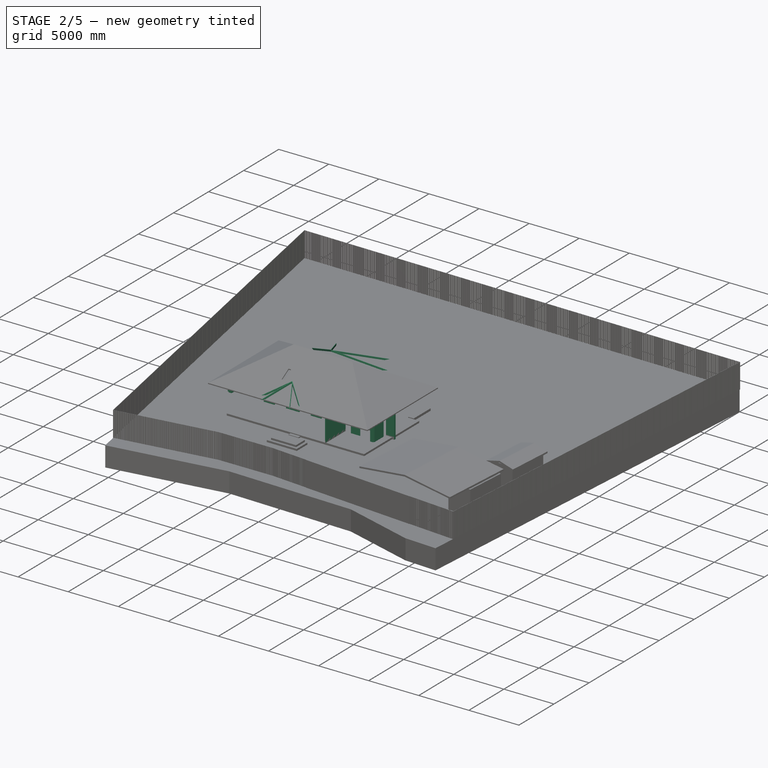
[diagram: stage 2 of 5 — iso view after this stage's code; geometry added in this stage tinted green]
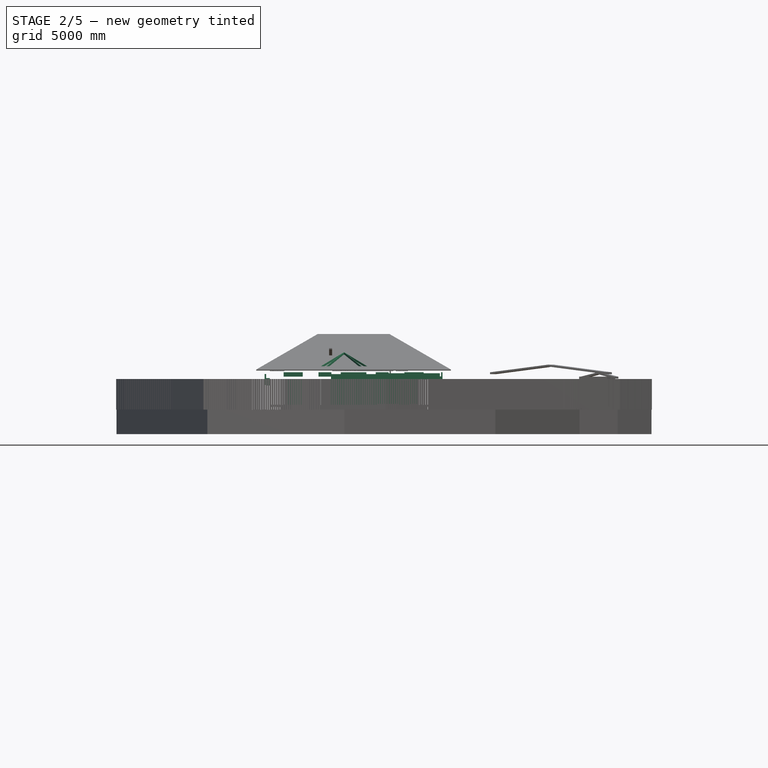
[diagram: stage 2 of 5 — front view after this stage's code; geometry added in this stage tinted green]
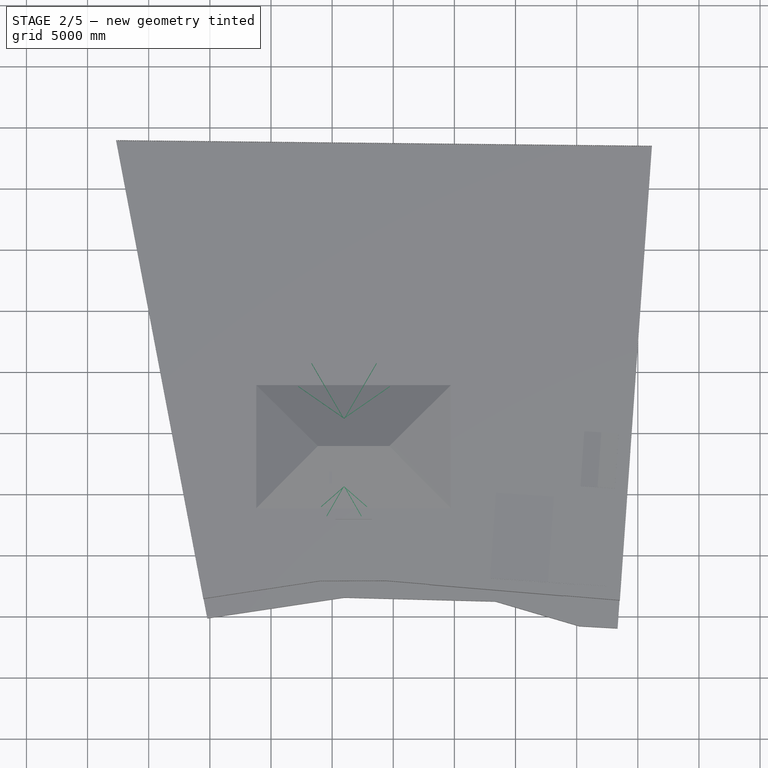
[diagram: stage 2 of 5 — top view after this stage's code; geometry added in this stage tinted green]
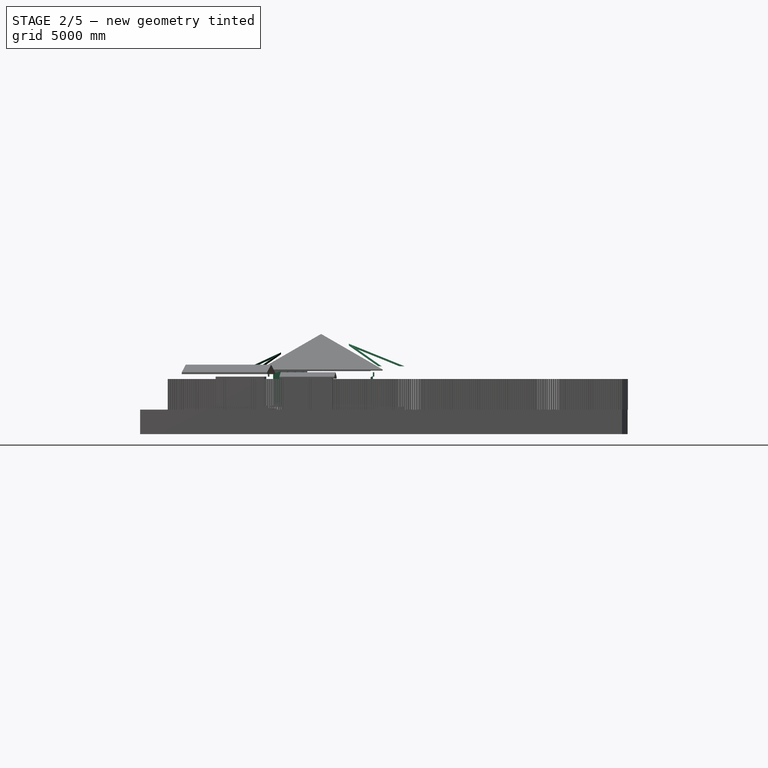
[diagram: stage 2 of 5 — right view after this stage's code; geometry added in this stage tinted green]
FEATURE [Part::FeaturePython] Structure020  label="Проём-Д90-002"  # Arch/BIM object (typed FeaturePython)
  Base = -> Rectangle2147
  FaceMaker = 0
  Height = 2250
  HorizontalArea = 180000
  IfcRole = 0
  Length = 0
  MoveWithHost = false
  Nodes = (2) [(10850,4000,0),(10850,4000,2250)]
  NodesOffset = 0
  Normal = (0,0,0)
  PerimeterLength = 2200
  Placement = pos=(0,0,-180) rot=(0,0,1;0rad)
  VerticalArea = 4950000
  Width = 100
FEATURE [Part::Part2DObjectPython] Line1075  # Draft 2D object (typed FeaturePython)
  ChamferSize = 0
  Closed = false
  End = (-100,-100,0)
  FilletRadius = 0
  Length = 13710
  MakeFace = false
  Placement = pos=(11980,-100,0) rot=(0,0,1;0rad)
  Points = (2) [(1630,-1.0516e-12,0),(-12080,-1.0516e-12,0)]
  Start = (13610,-100,0)
  Subdivisions = 0
FEATURE [Part::FeaturePython] Wall048  label="Утепление пола ЭППС 001"  # Arch/BIM object (typed FeaturePython)
  Align = 1
  Base = -> Line1075
  BlockHeight = 600
  BlockLength = 1200
  CountBroken = 25
  CountEntire = 63
  Face = 0
  Height = 4000
  HorizontalArea = 4.41524e+07
  IfcRole = 156
  Joint = 1
  Length = 13710
  MakeBlocks = true
  MoveWithHost = false
  Normal = (0,1,0)
  OffsetFirst = 100
  OffsetSecond = 600
  PerimeterLength = 31470
  Placement = pos=(0,0,-180) rot=(0,0,1;0rad)
  VerticalArea = 3.147e+06
  Width = 100
FEATURE [Part::Part2DObjectPython] Line1076  # Draft 2D object (typed FeaturePython)
  ChamferSize = 0
  Closed = false
  End = (-100,4100,0)
  FilletRadius = 0
  Length = 13710
  MakeFace = false
  Placement = pos=(11980,4100,0) rot=(0,0,1;0rad)
  Points = (2) [(1630,-9.09495e-13,0),(-12080,-9.09495e-13,0)]
  Start = (13610,4100,0)
  Subdivisions = 0
FEATURE [Part::FeaturePython] Wall049  label="Утепление пола ЭППС 002"  # Arch/BIM object (typed FeaturePython)
  Align = 1
  Base = -> Line1076
  BlockHeight = 600
  BlockLength = 1200
  CountBroken = 25
  CountEntire = 63
  Face = 0
  Height = 3660
  HorizontalArea = 4.41524e+07
  IfcRole = 156
  Joint = 1
  Length = 13710
  MakeBlocks = true
  MoveWithHost = false
  Normal = (0,1,0)
  OffsetFirst = 100
  OffsetSecond = 600
  PerimeterLength = 31470
  Placement = pos=(0,0,-180) rot=(0,0,1;0rad)
  VerticalArea = 3.147e+06
  Width = 100
FEATURE [Part::FeaturePython] Roof006  label="Крыша терасса  объём стропильной системы"  # Arch/BIM object (typed FeaturePython)
  Angles = [90,22,22,22]
  Base = -> Wire417
  BorderLength = 28218.2
  Face = 1
  Flip = false
  Heights = [0,1898.92,1898.92,1898.92]
  HorizontalArea = 3.9289e+07
  IdRel = [0,0,0,0]
  IfcRole = 111
  MoveWithHost = false
  Overhang = [0,0,0,0]
  PerimeterLength = 27572.9
  Placement = pos=(0,0,2930) rot=(0,0,1;0rad)
  RidgeLength = 11499.4
  Runs = [1000,4700,4700,4700]
  Thickness = [150,150,150,150]
  VerticalArea = 4.46075e+06
FEATURE [Part::FeaturePython] Roof007  label="Крыша крыльцо объём стропильной системы"  # Arch/BIM object (typed FeaturePython)
  Angles = [90,25,25,25]
  Base = -> Wire420
  BorderLength = 15517.6
  Face = 0
  Flip = false
  Heights = [0,1189.08,1189.08,1189.08]
  HorizontalArea = 1.16873e+07
  IdRel = [0,0,0,0]
  IfcRole = 111
  MoveWithHost = false
  Overhang = [0,0,0,0]
  PerimeterLength = 15055.5
  Placement = pos=(0,0,2930) rot=(0,0,1;0rad)
  RidgeLength = 6351.04
  Runs = [250,2550,2550,2550]
  Thickness = [150,150,150,150]
  VerticalArea = 2.49179e+06
FEATURE [Part::Part2DObjectPython] Line1089  # Draft 2D object (typed FeaturePython)
  ChamferSize = 0
  Closed = false
  End = (2111.91,8830,0)
  FilletRadius = 0
  Length = 4720.67
  MakeFace = true
  Placement = pos=(5890.67,6176.06,0) rot=(0,0,1;0rad)
  Points = (2) [(84.3269,-59.2254,0),(-3778.77,2653.94,0)]
  Start = (5975,6116.83,0)
  Subdivisions = 0
FEATURE [Part::Part2DObjectPython] Line1090  # Draft 2D object (typed FeaturePython)
  ChamferSize = 0
  Closed = false
  End = (3225,10793.1,0)
  FilletRadius = 0
  Length = 5331.35
  MakeFace = true
  Placement = pos=(5890.67,6176.06,0) rot=(0,0,1;0rad)
  Points = (2) [(0,0,0),(-2665.67,4617.08,0)]
  Start = (5890.67,6176.06,0)
  Subdivisions = 0
FEATURE [Part::Part2DObjectPython] Line1091  # Draft 2D object (typed FeaturePython)
  ChamferSize = 0
  Closed = false
  End = (8725,10793.1,0)
  FilletRadius = 0
  Length = 5331.35
  MakeFace = true
  Placement = pos=(6059.33,6176.06,0) rot=(0,0,1;0rad)
  Points = (2) [(0,0,0),(2665.67,4617.08,0)]
  Start = (6059.33,6176.06,0)
  Subdivisions = 0
FEATURE [Part::Part2DObjectPython] Line1092  # Draft 2D object (typed FeaturePython)
  ChamferSize = 0
  Closed = false
  End = (9838.09,8830,0)
  FilletRadius = 0
  Length = 4720.67
  MakeFace = true
  Placement = pos=(6059.33,6176.06,0) rot=(0,0,1;0rad)
  Points = (2) [(-84.3269,-59.2254,0),(3778.77,2653.94,0)]
  Start = (5975,6116.83,0)
  Subdivisions = 0
FEATURE [Part::Part2DObjectPython] Line1093  # Draft 2D object (typed FeaturePython)
  ChamferSize = 0
  Closed = false
  End = (4010.33,-1170,0)
  FilletRadius = 0
  Length = 2597.23
  MakeFace = true
  Placement = pos=(5895.06,459.61,0) rot=(0,0,1;0rad)
  Points = (2) [(79.9437,69.1226,0),(-1884.72,-1629.61,0)]
  Start = (5975,528.732,0)
  Subdivisions = 0
FEATURE [Part::Part2DObjectPython] Line1094  # Draft 2D object (typed FeaturePython)
  ChamferSize = 0
  Closed = false
  End = (4475,-2000,0)
  FilletRadius = 0
  Length = 2840.11
  MakeFace = true
  Placement = pos=(5895.06,459.61,0) rot=(0,0,1;0rad)
  Points = (2) [(0,0,0),(-1420.06,-2459.61,0)]
  Start = (5895.06,459.61,0)
  Subdivisions = 0
FEATURE [Part::Part2DObjectPython] Line1095  # Draft 2D object (typed FeaturePython)
  ChamferSize = 0
  Closed = false
  End = (7475,-2000,0)
  FilletRadius = 0
  Length = 2840.11
  MakeFace = true
  Placement = pos=(6054.94,459.61,0) rot=(0,0,1;0rad)
  Points = (2) [(0,0,0),(1420.06,-2459.61,0)]
  Start = (6054.94,459.61,0)
  Subdivisions = 0
FEATURE [Part::Part2DObjectPython] Line1096  # Draft 2D object (typed FeaturePython)
  ChamferSize = 0
  Closed = false
  End = (7939.67,-1170,0)
  FilletRadius = 0
  Length = 2597.23
  MakeFace = true
  Placement = pos=(6054.94,459.61,0) rot=(0,0,1;0rad)
  Points = (2) [(-79.9436,69.1226,0),(1884.72,-1629.61,0)]
  Start = (5975,528.732,0)
  Subdivisions = 0
FEATURE [Part::FeaturePython] Wall065  label="плоскость стропил крыльца и терассы 001"  # Arch/BIM object (typed FeaturePython)
  Align = 2
  Base = -> Line1089
  BlockHeight = 0
  BlockLength = 0
  CountBroken = 0
  CountEntire = 0
  Face = 0
  Height = 3000
  HorizontalArea = 236034
  IfcRole = 156
  Joint = 0
  Length = 4720.67
  MakeBlocks = false
  MoveWithHost = false
  Normal = (0,0,0)
  OffsetFirst = 0
  OffsetSecond = 0
  PerimeterLength = 9541.35
  Placement = pos=(0,0,3150) rot=(0,0,1;0rad)
  VerticalArea = 2.8624e+07
  Width = 50
FEATURE [Part::FeaturePython] Wall066  label="плоскость стропил крыльца и терассы 026"  # Arch/BIM object (typed FeaturePython)
  Align = 2
  Base = -> Line1091
  BlockHeight = 0
  BlockLength = 0
  CountBroken = 0
  CountEntire = 0
  Face = 0
  Height = 3000
  HorizontalArea = 266567
  IfcRole = 156
  Joint = 0
  Length = 5331.35
  MakeBlocks = false
  MoveWithHost = false
  Normal = (0,0,0)
  OffsetFirst = 0
  OffsetSecond = 0
  PerimeterLength = 10762.7
  Placement = pos=(0,0,3150) rot=(0,0,1;0rad)
  VerticalArea = 3.22881e+07
  Width = 50
FEATURE [Part::FeaturePython] Wall067  label="плоскость стропил крыльца и терассы 027"  # Arch/BIM object (typed FeaturePython)
  Align = 2
  Base = -> Line1094
  BlockHeight = 0
  BlockLength = 0
  CountBroken = 0
  CountEntire = 0
  Face = 0
  Height = 3000
  HorizontalArea = 142006
  IfcRole = 156
  Joint = 0
  Length = 2840.11
  MakeBlocks = false
  MoveWithHost = false
  Normal = (0,0,0)
  OffsetFirst = 0
  OffsetSecond = 0
  PerimeterLength = 5780.23
  Placement = pos=(0,0,3150) rot=(0,0,1;0rad)
  VerticalArea = 1.73407e+07
  Width = 50
FEATURE [Part::FeaturePython] Wall068  label="плоскость стропил крыльца и терассы 028"  # Arch/BIM object (typed FeaturePython)
  Align = 2
  Base = -> Line1090
  BlockHeight = 0
  BlockLength = 0
  CountBroken = 0
  CountEntire = 0
  Face = 0
  Height = 3000
  HorizontalArea = 266567
  IfcRole = 156
  Joint = 0
  Length = 5331.35
  MakeBlocks = false
  MoveWithHost = false
  Normal = (0,0,0)
  OffsetFirst = 0
  OffsetSecond = 0
  PerimeterLength = 10762.7
  Placement = pos=(0,0,3150) rot=(0,0,1;0rad)
  VerticalArea = 3.22881e+07
  Width = 50
FEATURE [Part::FeaturePython] Wall069  label="плоскость стропил крыльца и терассы 025"  # Arch/BIM object (typed FeaturePython)
  Align = 2
  Base = -> Line1093
  BlockHeight = 0
  BlockLength = 0
  CountBroken = 0
  CountEntire = 0
  Face = 0
  Height = 3000
  HorizontalArea = 129861
  IfcRole = 156
  Joint = 0
  Length = 2597.23
  MakeBlocks = false
  MoveWithHost = false
  Normal = (0,0,0)
  OffsetFirst = 0
  OffsetSecond = 0
  PerimeterLength = 5294.46
  Placement = pos=(0,0,3150) rot=(0,0,1;0rad)
  VerticalArea = 1.58834e+07
  Width = 50
FEATURE [Part::FeaturePython] Wall070  label="плоскость стропил крыльца и терассы 022"  # Arch/BIM object (typed FeaturePython)
  Align = 2
  Base = -> Line1092
  BlockHeight = 0
  BlockLength = 0
  CountBroken = 0
  CountEntire = 0
  Face = 0
  Height = 3000
  HorizontalArea = 236034
  IfcRole = 156
  Joint = 0
  Length = 4720.67
  MakeBlocks = false
  MoveWithHost = false
  Normal = (0,0,0)
  OffsetFirst = 0
  OffsetSecond = 0
  PerimeterLength = 9541.35
  Placement = pos=(0,0,3150) rot=(0,0,1;0rad)
  VerticalArea = 2.8624e+07
  Width = 50
FEATURE [Part::FeaturePython] Wall071  label="плоскость стропил крыльца и терассы 023"  # Arch/BIM object (typed FeaturePython)
  Align = 2
  Base = -> Line1096
  BlockHeight = 0
  BlockLength = 0
  CountBroken = 0
  CountEntire = 0
  Face = 0
  Height = 3000
  HorizontalArea = 129861
  IfcRole = 156
  Joint = 0
  Length = 2597.23
  MakeBlocks = false
  MoveWithHost = false
  Normal = (0,0,0)
  OffsetFirst = 0
  OffsetSecond = 0
  PerimeterLength = 5294.46
  Placement = pos=(0,0,3150) rot=(0,0,1;0rad)
  VerticalArea = 1.58834e+07
  Width = 50
FEATURE [Part::FeaturePython] Wall072  label="плоскость стропил крыльца и терассы 024"  # Arch/BIM object (typed FeaturePython)
  Align = 2
  Base = -> Line1095
  BlockHeight = 0
  BlockLength = 0
  CountBroken = 0
  CountEntire = 0
  Face = 0
  Height = 3000
  HorizontalArea = 142006
  IfcRole = 156
  Joint = 0
  Length = 2840.11
  MakeBlocks = false
  MoveWithHost = false
  Normal = (0,0,0)
  OffsetFirst = 0
  OffsetSecond = 0
  PerimeterLength = 5780.23
  Placement = pos=(0,0,3150) rot=(0,0,1;0rad)
  VerticalArea = 1.73407e+07
  Width = 50
FEATURE [Part::MultiFuse] Fusion002
  Shapes = -> [Wall069,Wall067,Wall072,Wall071]
FEATURE [Part::MultiCommon] Common016  label="стропильная система крыльца"
  Shapes = -> [Fusion002,Roof007]
FEATURE [Part::MultiFuse] Fusion003
  Shapes = -> [Wall065,Wall068,Wall066,Wall070]
FEATURE [Part::MultiCommon] Common017  label="стропильная система терассы"
  Shapes = -> [Fusion003,Roof006]
FEATURE [Part::Part2DObjectPython] Polygon  # Draft 2D object (typed FeaturePython)
  ChamferSize = 0
  DrawMode = 0
  FacesNumber = 6
  FilletRadius = 0
  MakeFace = false
  Placement = pos=(5975,6030,0) rot=(0,0,1;0rad)
  Radius = 5500
FEATURE [Part::Part2DObjectPython] Polygon001  # Draft 2D object (typed FeaturePython)
  ChamferSize = 0
  DrawMode = 0
  FacesNumber = 6
  FilletRadius = 0
  MakeFace = false
  Placement = pos=(5975,598.076,0) rot=(0,0,1;0rad)
  Radius = 3000
FEATURE [Part::Part2DObjectPython] Rectangle2309  # Draft 2D object (typed FeaturePython)
  ChamferSize = 0
  Columns = 1
  FilletRadius = 0
  Height = 600
  Length = 950
  MakeFace = true
  Placement = pos=(5100,-100,0) rot=(0,0,1;0rad)
  Rows = 1
FEATURE [Part::Part2DObjectPython] Rectangle2314  # Draft 2D object (typed FeaturePython)
  ChamferSize = 0
  Columns = 1
  FilletRadius = 0
  Height = 400
  Length = 600
  MakeFace = false
  Placement = pos=(7800,150,0) rot=(0,0,1;0rad)
  Rows = 1
FEATURE [Part::Part2DObjectPython] Circle  label="Circle073"  # Draft 2D object (typed FeaturePython)
  FirstAngle = 0
  LastAngle = 0
  MakeFace = false
  Placement = pos=(8200,350,0) rot=(0,0,1;0rad)
  Radius = 100
FEATURE [Part::Part2DObjectPython] Rectangle  label="ПР350-001"  # Draft 2D object (typed FeaturePython)
  ChamferSize = 0
  Columns = 1
  FilletRadius = 0
  Height = 200
  Length = 3700
  MakeFace = true
  Placement = pos=(4905,3900,0) rot=(0,0,1;0rad)
  Rows = 1
FEATURE [Part::FeaturePython] Window017  label="Д-90-005"  # Arch/BIM object (typed FeaturePython)
  Area = 1800000
  Base = -> Sketch238
  Frame = 50
  Height = 2000
  HoleDepth = 0
  HoleWire = 0
  HorizontalArea = 0
  IfcRole = 42
  LouvreSpacing = 0
  LouvreWidth = 0
  MoveWithHost = true
  Normal = (0,1,-2e-16)
  Offset = 50
  Opening = 0
  PerimeterLength = 0
  Placement = pos=(1700,-50,180) rot=(0,0,1;0rad)
  Preset = 6
  SymbolElevation = false
  SymbolPlan = false
  VerticalArea = 0
  Width = 900
  WindowParts = OuterFrame | Frame | Wire0,Wire1 | 0.0+V | 0.00+V | Door | Solid panel | Wire1 | 50.0 | 0.0+V
FEATURE [Part::Part2DObjectPython] Line1097  # Draft 2D object (typed FeaturePython)
  ChamferSize = 0
  Closed = false
  End = (9700,-100,0)
  FilletRadius = 0
  Length = 2800
  MakeFace = false
  Placement = pos=(9700,1300,0) rot=(0,0,1;0rad)
  Points = (2) [(0,1400,0),(0,-1400,0)]
  Start = (9700,2700,0)
  Subdivisions = 0
FEATURE [Part::FeaturePython] Wall073  label="перегородка 037"  # Arch/BIM object (typed FeaturePython)
  Align = 1
  Base = -> Line1097
  BlockHeight = 250
  BlockLength = 625
  CountBroken = 16
  CountEntire = 44
  Face = 0
  Height = 2750
  HorizontalArea = 140000
  IfcRole = 156
  Joint = 0
  Length = 2800
  MakeBlocks = true
  MoveWithHost = false
  Normal = (0,0,0)
  OffsetFirst = 300
  OffsetSecond = 50
  PerimeterLength = 3000
  VerticalArea = 9e+06
  Width = 100
FEATURE [App::GeometryPython] BuildingPart005  label="Перегородки D600 100mm"  # Arch/BIM object (typed FeaturePython)
  Area = 0
  Group = -> [Wall013,Wall015,Wall014,Wall016,Wall017,Wall018,Wall019,Wall020,Wall073]
  Height = 0
  IfcRole = 0
  LevelOffset = 0
FEATURE [Part::Part2DObjectPython] Rectangle2318  # Draft 2D object (typed FeaturePython)
  ChamferSize = 0
  Columns = 1
  FilletRadius = 0
  Height = 2700
  Length = 3810
  MakeFace = false
  Placement = pos=(9800,-100,0) rot=(0,0,1;0rad)
  Rows = 1
FEATURE [Part::Part2DObjectPython] Rectangle2319  # Draft 2D object (typed FeaturePython)
  ChamferSize = 0
  Columns = 1
  FilletRadius = 0
  Height = 2700
  Length = 1900
  MakeFace = false
  Placement = pos=(7800,-100,0) rot=(0,0,1;0rad)
  Rows = 1
FEATURE [Part::Part2DObjectPython] Rectangle2320  # Draft 2D object (typed FeaturePython)
  ChamferSize = 0
  Columns = 1
  FilletRadius = 0
  Height = 1200
  Length = 2110
  MakeFace = false
  Placement = pos=(11500,2700,0) rot=(0,0,1;0rad)
  Rows = 1
FEATURE [Part::Part2DObjectPython] Rectangle2321  # Draft 2D object (typed FeaturePython)
  ChamferSize = 0
  Columns = 1
  FilletRadius = 0
  Height = 3660
  Length = 3300
  MakeFace = false
  Placement = pos=(-100,4100,0) rot=(0,0,1;0rad)
  Rows = 1
FEATURE [Part::Part2DObjectPython] Rectangle2322  label="ПР90-001"  # Draft 2D object (typed FeaturePython)
  ChamferSize = 0
  Columns = 1
  FilletRadius = 0
  Height = 200
  Length = 900
  MakeFace = true
  Placement = pos=(12100,3900,0) rot=(0,0,1;0rad)
  Rows = 1
FEATURE [Part::Part2DObjectPython] Rectangle2324  # Draft 2D object (typed FeaturePython)
  ChamferSize = 0
  Columns = 1
  FilletRadius = 0
  Height = 1200
  Length = 8700
  MakeFace = false
  Placement = pos=(2700,2700,0) rot=(0,0,1;0rad)
  Rows = 1
FEATURE [Part::Part2DObjectPython] Rectangle2325  # Draft 2D object (typed FeaturePython)
  ChamferSize = 0
  Columns = 1
  FilletRadius = 0
  Height = 3660
  Length = 3310
  MakeFace = false
  Placement = pos=(10300,4100,0) rot=(0,0,1;0rad)
  Rows = 1
FEATURE [Part::Part2DObjectPython] Rectangle2326  # Draft 2D object (typed FeaturePython)
  ChamferSize = 0
  Columns = 1
  FilletRadius = 0
  Height = 3660
  Length = 6900
  MakeFace = false
  Placement = pos=(3300,4100,0) rot=(0,0,1;0rad)
  Rows = 1
FEATURE [Part::Part2DObjectPython] Rectangle2327  label="ПР120-001"  # Draft 2D object (typed FeaturePython)
  ChamferSize = 0
  Columns = 1
  FilletRadius = 0
  Height = 200
  Length = 1200
  MakeFace = true
  Placement = pos=(1300,3900,0) rot=(0,0,1;0rad)
  Rows = 1
FEATURE [Part::Part2DObjectPython] Line1098  # Draft 2D object (typed FeaturePython)
  ChamferSize = 0
  Closed = false
  End = (6755,-100,0)
  FilletRadius = 0
  Length = 7860
  MakeFace = false
  Placement = pos=(6755,7760,0) rot=(0,0,1;0rad)
  Points = (2) [(0,0,0),(-9.09495e-13,-7860,0)]
  Start = (6755,7760,0)
  Subdivisions = 0
FEATURE [Part::Part2DObjectPython] Rectangle2328  # Draft 2D object (typed FeaturePython)
  ChamferSize = 0
  Columns = 1
  FilletRadius = 0
  Height = 3660
  Length = 600
  MakeFace = false
  Placement = pos=(3300,4100,0) rot=(0,0,1;0rad)
  Rows = 1
FEATURE [Part::Part2DObjectPython] Rectangle2330  # Draft 2D object (typed FeaturePython)
  ChamferSize = 0
  Columns = 1
  FilletRadius = 0
  Height = 600
  Length = -2100
  MakeFace = true
  Placement = pos=(500,3900,0) rot=(0,0,1;1.5708rad)
  Rows = 1
FEATURE [Part::Part2DObjectPython] Rectangle2331  # Draft 2D object (typed FeaturePython)
  ChamferSize = 0
  Columns = 1
  FilletRadius = 0
  Height = 500
  Length = 600
  MakeFace = true
  Placement = pos=(500,3400,0) rot=(0,0,1;0rad)
  Rows = 1
FEATURE [Part::Part2DObjectPython] Rectangle2334  # Draft 2D object (typed FeaturePython)
  ChamferSize = 0
  Columns = 1
  FilletRadius = 0
  Height = 1800
  Length = 2700
  MakeFace = false
  Placement = pos=(-100,-100,0) rot=(0,0,1;0rad)
  Rows = 1
FEATURE [Part::Part2DObjectPython] Rectangle2335  # Draft 2D object (typed FeaturePython)
  ChamferSize = 0
  Columns = 1
  FilletRadius = 0
  Height = 2100
  Length = 2700
  MakeFace = false
  Placement = pos=(-100,1800,0) rot=(0,0,1;0rad)
  Rows = 1
FEATURE [Part::Part2DObjectPython] Rectangle2336  # Draft 2D object (typed FeaturePython)
  ChamferSize = 0
  Columns = 1
  FilletRadius = 0
  Height = 600
  Length = 400
  MakeFace = false
  Placement = pos=(2200,1050,0) rot=(0,0,1;0rad)
  Rows = 1
FEATURE [Part::Feature] Ellipse  label="Ellipse044"
  Placement = pos=(2400,1350,0) rot=(0,0,1;1.5708rad)
  shape: bbox 200 x 400 x 2e-07 mm, 0 faces, 0 solids (baked)
FEATURE [Part::Part2DObjectPython] Rectangle2337  # Draft 2D object (typed FeaturePython)
  ChamferSize = 0
  Columns = 1
  FilletRadius = 0
  Height = 2700
  Length = 2600
  MakeFace = false
  Placement = pos=(5100,-100,0) rot=(0,0,1;0rad)
  Rows = 1
FEATURE [Part::Part2DObjectPython] Rectangle2338  # Draft 2D object (typed FeaturePython)
  ChamferSize = 0
  Columns = 1
  FilletRadius = 0
  Height = 1200
  Length = 100
  MakeFace = false
  Placement = pos=(10500,6400,0) rot=(0,0,1;3.14159rad)
  Rows = 1
FEATURE [Part::Part2DObjectPython] Rectangle2339  # Draft 2D object (typed FeaturePython)
  ChamferSize = 0
  Columns = 1
  FilletRadius = 0
  Height = -300
  Length = 3660
  MakeFace = false
  Placement = pos=(3200,7760,0) rot=(0,0,-1;1.5708rad)
  Rows = 1
FEATURE [Part::Part2DObjectPython] Rectangle2340  # Draft 2D object (typed FeaturePython)
  ChamferSize = 0
  Columns = 1
  FilletRadius = 0
  Height = 2700
  Length = 2300
  MakeFace = false
  Placement = pos=(2700,-100,0) rot=(0,0,1;0rad)
  Rows = 1
FEATURE [Part::Part2DObjectPython] Rectangle2341  label="четверть_790_003"  # Draft 2D object (typed FeaturePython)
  ChamferSize = 0
  Columns = 1
  FilletRadius = 0
  Height = 120
  Length = 1310
  MakeFace = true
  Placement = pos=(14030,770,0) rot=(0,0,1;1.5708rad)
  Rows = 1
FEATURE [Part::FeaturePython] Structure054  label="Проём_четв._023"  # Arch/BIM object (typed FeaturePython)
  Base = -> Rectangle2341
  FaceMaker = 0
  Height = 1435
  HorizontalArea = 157200
  IfcRole = 0
  Length = 0
  MoveWithHost = false
  Nodes = (2) [(-1425,13970,0),(-1425,13970,1435)]
  NodesOffset = 0
  Normal = (0,0,0)
  PerimeterLength = 2860
  Placement = pos=(0,0,860) rot=(0,0,1;0rad)
  VerticalArea = 4104100
  Width = 100
FEATURE [Part::Part2DObjectPython] Rectangle2342  label="четверть_790_004"  # Draft 2D object (typed FeaturePython)
  ChamferSize = 0
  Columns = 1
  FilletRadius = 0
  Height = 120
  Length = 790
  MakeFace = true
  Placement = pos=(-520,1430,0) rot=(0,0,-1;1.5708rad)
  Rows = 1
FEATURE [Part::FeaturePython] Structure055  label="Проём_четв._024"  # Arch/BIM object (typed FeaturePython)
  Base = -> Rectangle2342
  FaceMaker = 0
  Height = 535
  HorizontalArea = 94800
  IfcRole = 0
  Length = 0
  MoveWithHost = false
  Nodes = (2) [(1035,460,0),(1035,460,535)]
  NodesOffset = 0
  Normal = (0,0,0)
  PerimeterLength = 1820
  Placement = pos=(0,0,1610) rot=(0,0,1;0rad)
  VerticalArea = 973700
  Width = 100
FEATURE [Part::Part2DObjectPython] Rectangle2343  label="ОК-90-010"  # Draft 2D object (typed FeaturePython)
  ChamferSize = 0
  Columns = 1
  FilletRadius = 0
  Height = 300
  Length = 900
  MakeFace = true
  Placement = pos=(-400,1485,0) rot=(0,0,-1;1.5708rad)
  Rows = 1
FEATURE [Part::FeaturePython] Structure056  label="Проём-ОК-90-150-003"  # Arch/BIM object (typed FeaturePython)
  Base = -> Rectangle2343
  FaceMaker = 0
  Height = 600
  HorizontalArea = 270000
  IfcRole = 0
  Length = 0
  MoveWithHost = false
  Nodes = (2) [(1035,250,0),(1035,250,600)]
  NodesOffset = 0
  Normal = (0,0,0)
  PerimeterLength = 2400
  Placement = pos=(0,0,1570) rot=(0,0,1;0rad)
  VerticalArea = 1.44e+06
  Width = 100
FEATURE [Part::Part2DObjectPython] Rectangle2344  label="ОК-90-011"  # Draft 2D object (typed FeaturePython)
  ChamferSize = 0
  Columns = 1
  FilletRadius = 0
  Height = 300
  Length = 1350
  MakeFace = true
  Placement = pos=(13910,750,0) rot=(0,0,1;1.5708rad)
  Rows = 1
FEATURE [Part::FeaturePython] Structure057  label="Проём-ОК-90-150-004"  # Arch/BIM object (typed FeaturePython)
  Base = -> Rectangle2344
  FaceMaker = 0
  Height = 1500
  HorizontalArea = 405000
  IfcRole = 0
  Length = 0
  MoveWithHost = false
  Nodes = (2) [(-1425,13760,0),(-1425,13760,1500)]
  NodesOffset = 0
  Normal = (0,0,0)
  PerimeterLength = 3300
  Placement = pos=(0,0,820) rot=(0,0,1;0rad)
  VerticalArea = 4950000
  Width = 100
FEATURE [Part::Part2DObjectPython] Rectangle2345  # Draft 2D object (typed FeaturePython)
  ChamferSize = 0
  Columns = 1
  FilletRadius = 0
  Height = 50
  Length = 800
  MakeFace = false
  Placement = pos=(7800,750,0) rot=(0,0,1;0rad)
  Rows = 1
FEATURE [Part::Part2DObjectPython] Line1099  # Draft 2D object (typed FeaturePython)
  ChamferSize = 0
  Closed = false
  End = (4800,2700,0)
  FilletRadius = 0
  Length = 900
  MakeFace = false
  Placement = pos=(5669.33,2932.94,0) rot=(0,0,1;0rad)
  Points = (2) [(0,0,0),(-869.333,-232.937,0)]
  Start = (5669.33,2932.94,0)
  Subdivisions = 0
FEATURE [Part::Part2DObjectPython] Rectangle2346  # Draft 2D object (typed FeaturePython)
  ChamferSize = 0
  Columns = 1
  FilletRadius = 0
  Height = 900
  Length = 300
  MakeFace = true
  Placement = pos=(2300,1800,0) rot=(0,0,1;0rad)
  Rows = 1
FEATURE [Part::Part2DObjectPython] Rectangle2347  # Draft 2D object (typed FeaturePython)
  ChamferSize = 0
  Columns = 1
  FilletRadius = 0
  Height = 2100
  Length = 100
  MakeFace = false
  Placement = pos=(1100,1800,0) rot=(0,0,1;0rad)
  Rows = 1
FEATURE [Part::Part2DObjectPython] Rectangle2348  # Draft 2D object (typed FeaturePython)
  ChamferSize = 0
  Columns = 1
  FilletRadius = 0
  Height = 2700
  Length = 100
  MakeFace = false
  Placement = pos=(6050,-100,0) rot=(0,0,1;0rad)
  Rows = 1
FEATURE [Part::Part2DObjectPython] Circle074  # Draft 2D object (typed FeaturePython)
  FirstAngle = 0
  LastAngle = 0
  MakeFace = false
  Placement = pos=(3000,200,0) rot=(0,0,1;0rad)
  Radius = 250
FEATURE [Part::Part2DObjectPython] Rectangle2349  # Draft 2D object (typed FeaturePython)
  ChamferSize = 0
  Columns = 1
  FilletRadius = 0
  Height = 500
  Length = 1600
  MakeFace = false
  Placement = pos=(3400,-100,0) rot=(0,0,1;0rad)
  Rows = 1
FEATURE [Part::Part2DObjectPython] Wire441  # Draft 2D object (typed FeaturePython)
  ChamferSize = 0
  Closed = false
  End = (6050,500,0)
  FilletRadius = 0
  Length = 11056.7
  MakeFace = false
  Placement = pos=(6050,2000,0) rot=(0,0,1;0rad)
  Points = (10) [(0,0,0),(-950,600,0),(0,600,0),(-950,-2.27374e-13,0),(-450,-1500,0),(-450,0,0),(-950,-1500,0),(0,-2100,0),(-950,-2100,0),(0,-1500,0)]
  Start = (6050,2000,0)
  Subdivisions = 0
FEATURE [Part::Part2DObjectPython] Wire442  # Draft 2D object (typed FeaturePython)
  ChamferSize = 0
  Closed = false
  End = (7700,2600,0)
  FilletRadius = 0
  Length = 5733.23
  MakeFace = false
  Placement = pos=(7400,2600,0) rot=(0,0,1;0rad)
  Points = (4) [(0,0,0),(300,-2700,0),(0,-2700,0),(300,-1.81899e-12,0)]
  Start = (7400,2600,0)
  Subdivisions = 0
FEATURE [Part::Part2DObjectPython] Wire443  # Draft 2D object (typed FeaturePython)
  ChamferSize = 0
  Closed = true
  End = (2600,1800,0)
  FilletRadius = 0
  Length = 2497.37
  MakeFace = false
  Placement = pos=(2300,2700,0) rot=(0,0,1;0rad)
  Points = (4) [(0,0,0),(300,0,0),(0,-900,0),(300,-900,0)]
  Start = (2300,2700,0)
  Subdivisions = 0
FEATURE [Part::Part2DObjectPython] Wire447  # Draft 2D object (typed FeaturePython)
  ChamferSize = 0
  Closed = true
  End = (9545,-300,0)
  FilletRadius = 0
  Length = 17630
  MakeFace = true
  Placement = pos=(9900,-100,0) rot=(0,0,1;0rad)
  Points = (14) [(-355,1.25056e-12,0),(-200,3.40747e-13,0),(-200,2700,0),(-300,2700,0),(-300,2800,0),(500,2800,0),(500,2700,0),(-100,2700,0),(-100,1.70499e-12,0),+5 more]
  Start = (9545,-100,0)
  Subdivisions = 0
FEATURE [Part::Part2DObjectPython] Wire449  # Draft 2D object (typed FeaturePython)
  ChamferSize = 0
  Closed = true
  End = (3200,7760,0)
  FilletRadius = 0
  Length = 19690
  MakeFace = true
  Placement = pos=(2450,7700,0) rot=(0,0,1;0rad)
  Points = (16) [(40,60,0),(40,260,0),(3370,260,0),(3370,60,0),(850,60,0),(850,-3600,0),(2455,-3600,0),(2455,-3800,0),(250,-3800,0),(250,-3950,0),(150,-3950,0),+5 more]
  Start = (2490,7760,0)
  Subdivisions = 0
FEATURE [Part::Part2DObjectPython] Wire450  # Draft 2D object (typed FeaturePython)
  ChamferSize = 0
  Closed = true
  End = (11400,3900,0)
  FilletRadius = 0
  Length = 24640
  MakeFace = true
  Placement = pos=(10650,3840,0) rot=(0,0,1;0rad)
  Points = (22) [(650,60,0),(650,260,0),(1450,260,0),(1450,60,0),(850,60,0),(850,-1140,0),(2960,-1140,0),(2960,60,0),(2350,60,0),(2350,260,0),(2960,260,0),+11 more]
  Start = (11300,3900,0)
  Subdivisions = 0
FEATURE [Part::Part2DObjectPython] Wire451  # Draft 2D object (typed FeaturePython)
  ChamferSize = 0
  Closed = true
  End = (-300,7960,0)
  FilletRadius = 0
  Length = 21430
  MakeFace = true
  Placement = pos=(-300,-2150,0) rot=(0,0,1;0rad)
  Points = (14) [(-2.27374e-13,3635,0),(200,3635,0),(200,3850,0),(1600,3850,0),(1600,3950,0),(200,3950,0),(200,6050,0),(1600,6050,0),(1600,6250,0),(200,6250,0),+4 more]
  Start = (-300,1485,0)
  Subdivisions = 0
FEATURE [Part::Part2DObjectPython] Wire452  # Draft 2D object (typed FeaturePython)
  ChamferSize = 0
  Closed = true
  End = (10200,7760,0)
  FilletRadius = 0
  Length = 18170
  MakeFace = true
  Placement = pos=(9450,7700,0) rot=(0,0,1;0rad)
  Points = (12) [(-1760,60,0),(-1760,260,0),(1570,260,0),(1570,60,0),(850,60,0),(850,-3600,0),(950,-3600,0),(950,-3800,0),(-845,-3800,0),(-845,-3600,0),(750,-3600,0),+1 more]
  Start = (7690,7760,0)
  Subdivisions = 0
FEATURE [App::FeaturePython] Dimension002  # Draft dimension (typed FeaturePython)
  Diameter = false
  Dimline = (14200,-2000,0)
  Direction = (0,0,0)
  Distance = 14550
  End = (14030,-520,0)
  Normal = (0,0,1)
  Start = (-520,-520,0)
FEATURE [App::FeaturePython] Dimension003  # Draft dimension (typed FeaturePython)
  Diameter = false
  Dimline = (15500,-1000,0)
  Direction = (0,0,0)
  Distance = 8700
  End = (14030,8180,0)
  Normal = (0,0,1)
  Start = (14030,-520,0)
FEATURE [App::DocumentObjectGroup] Group  label="Размеры"
  Group = -> [Dimension001,Dimension,Dimension002,Dimension003]
FEATURE [Part::Part2DObjectPython] Rectangle2350  # Draft 2D object (typed FeaturePython)
  ChamferSize = 0
  Columns = 1
  FilletRadius = 0
  Height = 600
  Length = 600
  MakeFace = false
  Placement = pos=(3900,7160,0) rot=(0,0,1;0rad)
  Rows = 1
FEATURE [Sketcher::SketchObject] Sketch245  label="стойка_кухонная"
  Placement = pos=(3900,4100,0) rot=(0,0,1;0rad)
  sketch-geometry (6):
    g0: LineSegment StartX=998.839 StartY=0 StartZ=0 EndX=998.839 EndY=404.251 EndZ=0
    g1: LineSegment StartX=694.493 StartY=500 StartZ=0 EndX=903.09 EndY=500 EndZ=0
    g2: ArcOfCircle CenterX=694.493 CenterY=404.251 CenterZ=0 NormalX=0 NormalY=0 NormalZ=1 AngleXU=0 Radius=95.7487 StartAngle=1.5708 EndAngle=3.18601
    g3: ArcOfCircle CenterX=903.09 CenterY=404.251 CenterZ=0 NormalX=0 NormalY=0 NormalZ=1 AngleXU=0 Radius=95.7487 StartAngle=3e-16 EndAngle=1.5708
    g4: LineSegment StartX=598.839 StartY=400 StartZ=0 EndX=598.839 EndY=0 EndZ=0
    g5: LineSegment StartX=598.839 StartY=0 StartZ=0 EndX=998.839 EndY=0 EndZ=0
  constraints (15):
    c: Vertical(g0)
    c: Horizontal(g1)
    c: Tangent(g1,g2) = 1.5708
    c: Tangent(g1,g3) = 1.5708
    c: Tangent(g0,g3) = -1.5708
    c: Equal(g2,g3)
    c: DistanceY(g0,g1) = 500
    c: Coincident(g4,g2)
    c: Vertical(g4)
    c: Coincident(g5,g4)
    c: Coincident(g5,g0)
    c: Horizontal(g5)
    c: DistanceX(g5,g5) = 400
    c: PointOnObject(g0,g-1)
    c: DistanceY(g2,g1) = 100
FEATURE [Part::Part2DObjectPython] Rectangle2351  # Draft 2D object (typed FeaturePython)
  ChamferSize = 0
  Columns = 1
  FilletRadius = 0
  Height = 800
  Length = 1800
  MakeFace = false
  Placement = pos=(-100,1700,0) rot=(0,0,-1;1.5708rad)
  Rows = 1
FEATURE [Part::Feature] Ellipse043  label="Ellipse045"
  Placement = pos=(300,850,0) rot=(0,0,-1;1.5708rad)
  shape: bbox 600 x 1400 x 2e-07 mm, 0 faces, 0 solids (baked)
FEATURE [Part::Part2DObjectPython] Rectangle2352  # Draft 2D object (typed FeaturePython)
  ChamferSize = 0
  Columns = 1
  FilletRadius = 0
  Height = 500
  Length = 600
  MakeFace = true
  Placement = pos=(500,1800,0) rot=(0,0,1;0rad)
  Rows = 1
FEATURE [Part::Part2DObjectPython] Wire453  # Draft 2D object (typed FeaturePython)
  ChamferSize = 0
  Closed = false
  End = (500,1800,0)
  FilletRadius = 0
  Length = 13092.2
  MakeFace = true
  Placement = pos=(1100,3400,0) rot=(0,0,1;0rad)
  Points = (13) [(0,0,0),(-600,500,0),(0,500,0),(-600,0,0),(-600,500,0),(-1200,-1600,0),(-600,-1600,0),(-1200,500,0),(-1200,-1600,0),(4.54747e-13,-1600,0),+3 more]
  Start = (1100,3400,0)
  Subdivisions = 0
FEATURE [Part::Part2DObjectPython] Rectangle2355  # Draft 2D object (typed FeaturePython)
  ChamferSize = 0
  Columns = 1
  FilletRadius = 0
  Height = 600
  Length = 500
  MakeFace = true
  Placement = pos=(13110,3300,0) rot=(0,0,1;0rad)
  Rows = 1
FEATURE [Part::Part2DObjectPython] Wire454  # Draft 2D object (typed FeaturePython)
  ChamferSize = 0
  Closed = false
  End = (13110,3300,0)
  FilletRadius = 0
  Length = 10721.4
  MakeFace = true
  Placement = pos=(11500,3900,0) rot=(0,0,1;0rad)
  Points = (10) [(0,0,0),(500,-600,0),(500,0,0),(0,-600,0),(2110,-1200,0),(0,-1200,0),(2110,-600,0),(1610,0,0),(2110,0,0),(1610,-600,0)]
  Start = (11500,3900,0)
  Subdivisions = 0
FEATURE [Part::FeaturePython] Structure058  label="Проём-ПР120-001"  # Arch/BIM object (typed FeaturePython)
  Base = -> Rectangle2327
  FaceMaker = 0
  Height = 2250
  HorizontalArea = 240000
  IfcRole = 0
  Length = 0
  MoveWithHost = false
  Nodes = (2) [(1900,4000,0),(1900,4000,2250)]
  NodesOffset = 0
  Normal = (0,0,0)
  PerimeterLength = 2800
  Placement = pos=(0,0,-180) rot=(0,0,1;0rad)
  VerticalArea = 6.3e+06
  Width = 100
FEATURE [Part::FeaturePython] Structure059  label="Проём-ПР350-001"  # Arch/BIM object (typed FeaturePython)
  Base = -> Rectangle
  FaceMaker = 0
  Height = 2500
  HorizontalArea = 740000
  IfcRole = 0
  Length = 0
  MoveWithHost = false
  Nodes = (2) [(6755,4000,0),(6755,4000,2500)]
  NodesOffset = 0
  Normal = (0,0,0)
  PerimeterLength = 7800
  VerticalArea = 19500000
  Width = 100
FEATURE [Part::FeaturePython] Structure060  label="Проём-ПР90-001"  # Arch/BIM object (typed FeaturePython)
  Base = -> Rectangle2322
  FaceMaker = 0
  Height = 2250
  HorizontalArea = 180000
  IfcRole = 0
  Length = 0
  MoveWithHost = false
  Nodes = (2) [(12550,4000,0),(12550,4000,2250)]
  NodesOffset = 0
  Normal = (0,0,0)
  PerimeterLength = 2200
  Placement = pos=(0,0,-180) rot=(0,0,1;0rad)
  VerticalArea = 4950000
  Width = 100
FEATURE [App::GeometryPython] BuildingPart001  label="проёмы"  # Arch/BIM object (typed FeaturePython)
  Area = 0
  Group = -> [Structure003,Structure004,Structure005,Structure016,Structure017,Structure019,Structure020,Structure021,Structure022,Structure023,Structure024,Structure026,Structure025,Structure056,Structure057,Structure058,Structure059,Structure060]
  Height = 0
  IfcRole = 0
  LevelOffset = 0
FEATURE [Part::Part2DObjectPython] Line1100  # Draft 2D object (typed FeaturePython)
  ChamferSize = 0
  Closed = false
  End = (13810,3900,0)
  FilletRadius = 0
  Length = 5205
  MakeFace = false
  Placement = pos=(21185,3900,0) rot=(0,0,1;0rad)
  Points = (2) [(-12580,0,0),(-7375,0,0)]
  Start = (8605,3900,0)
  Subdivisions = 0
FEATURE [Part::Part2DObjectPython] Line1101  # Draft 2D object (typed FeaturePython)
  ChamferSize = 0
  Closed = false
  End = (9505,3900,0)
  FilletRadius = 0
  Length = 5500
  MakeFace = false
  Placement = pos=(4055,3900,0) rot=(0,0,1;0rad)
  Points = (2) [(-50,0,0),(5450,0,0)]
  Start = (4005,3900,0)
  Subdivisions = 0
FEATURE [Part::FeaturePython] Wall075  label="балка продольная 002"  # Arch/BIM object (typed FeaturePython)
  Align = 1
  Base = -> Line1101
  BlockHeight = 0
  BlockLength = 0
  CountBroken = 0
  CountEntire = 0
  Face = 0
  Height = 100
  HorizontalArea = 1100000
  IfcRole = 156
  Joint = 0
  Length = 5500
  MakeBlocks = false
  MoveWithHost = false
  Normal = (0,0,0)
  OffsetFirst = 0
  OffsetSecond = 0
  PerimeterLength = 11400
  Placement = pos=(0,0,2470) rot=(0,0,1;0rad)
  VerticalArea = 1140000
  Width = 200
FEATURE [Part::FeaturePython] Wall074  label="Стена ГБ D600 085"  # Arch/BIM object (typed FeaturePython)
  Align = 1
  Base = -> Line1100
  BlockHeight = 250
  BlockLength = 625
  CountBroken = 55
  CountEntire = 36
  Face = 0
  Height = 2750
  HorizontalArea = 2.1075e+06
  IfcRole = 156
  Joint = 0
  Length = 5205
  MakeBlocks = true
  MoveWithHost = false
  Normal = (0,0,0)
  OffsetFirst = 210
  OffsetSecond = 0
  PerimeterLength = 17360
  Placement = pos=(0,0,-180) rot=(0,0,1;0rad)
  Subtractions = -> [Structure020,Structure060,Wall075]
  VerticalArea = 8.68e+06
  Width = 200
FEATURE [App::GeometryPython] BuildingPart002  label="Стены несущие D600 250mm"  # Arch/BIM object (typed FeaturePython)
  Area = 0
  Group = -> [Wall006,Wall008,Wall004,Wall007,Wall005,Wall074]
  Height = 0
  IfcRole = 0
  LevelOffset = 0
FEATURE [Part::Part2DObjectPython] Wire455  # Draft 2D object (typed FeaturePython)
  ChamferSize = 0
  Closed = true
  End = (9490,-520,0)
  FilletRadius = 0
  Length = 11660
  MakeFace = true
  Placement = pos=(12540,-7100,0) rot=(0,0,1;0rad)
  Points = (6) [(-3050,6700,0),(1370,6700,0),(1370,7870,0),(1490,7870,0),(1490,6580,0),(-3050,6580,0)]
  Start = (9490,-400,0)
  Subdivisions = 0
FEATURE [Part::Part2DObjectPython] Wire456  # Draft 2D object (typed FeaturePython)
  ChamferSize = 0
  Closed = true
  End = (-520,640,0)
  FilletRadius = 0
  Length = 11400
  MakeFace = true
  Placement = pos=(-2010,-7100,0) rot=(0,0,1;0rad)
  Points = (6) [(1610,7740,0),(1610,6700,0),(6030,6700,0),(6030,6580,0),(1490,6580,0),(1490,7740,0)]
  Start = (-400,640,0)
  Subdivisions = 0
FEATURE [Part::Part2DObjectPython] Wire457  # Draft 2D object (typed FeaturePython)
  ChamferSize = 0
  Closed = true
  End = (3965,-400,0)
  FilletRadius = 0
  Length = 10700
  MakeFace = true
  Placement = pos=(-2223.9,-6340.51,0) rot=(0,0,1;0rad)
  Points = (6) [(1823.9,5940.51,0),(1823.9,6925.51,0),(1923.9,6925.51,0),(1923.9,6040.51,0),(6188.9,6040.51,0),(6188.9,5940.51,0)]
  Start = (-400,-400,0)
  Subdivisions = 0
FEATURE [Part::Part2DObjectPython] Wire458  # Draft 2D object (typed FeaturePython)
  ChamferSize = 0
  Closed = true
  End = (13910,750,0)
  FilletRadius = 0
  Length = 11030
  MakeFace = true
  Placement = pos=(11886.1,-6340.51,0) rot=(0,0,1;0rad)
  Points = (6) [(2023.9,5940.51,0),(-2341.1,5940.51,0),(-2341.1,6040.51,0),(1923.9,6040.51,0),(1923.9,7090.51,0),(2023.9,7090.51,0)]
  Start = (13910,-400,0)
  Subdivisions = 0
FEATURE [App::DocumentObjectGroup] Group114  label="планировка и размещение мебели"
  Group = -> [Array004,Rectangle2147,Rectangle2149,Rectangle2151,Rectangle2152,Rectangle2160,Rectangle2161,Rectangle2163,Rectangle2164,Rectangle2167,Rectangle2168,Rectangle2169,Rectangle2170,ShapeString090,Rectangle2188,Rectangle2189,Rectangle2190,Rectangle2194,Rectangle2195,Rectangle2196,Rectangle2197,ShapeString091,ShapeString092,ShapeString093,Rectangle2198,ShapeString094,Rectangle2200,Rectangle2201,+142 more]
FEATURE [TechDraw::DrawViewDraft] DraftView
  Direction = (0,0,1)
  FontSize = 12
  LineSpacing = 1
  LineStyle = Solid
  LineWidth = 0.35
  LockPosition = false
  Rotation = 0
  Scale = 0.02
  ScaleType = 2
  Source = -> Group114
  Symbol = <blob: 149933 chars omitted>
  X = 254.569
  Y = 261.148
FEATURE [TechDraw::DrawPage] Page  label="лист 1 - планировка"
  KeepUpdated = true
  ProjectionType = 0
  Scale = 0.02
  Template = -> Template
  Views = -> [DraftView]
FEATURE [Part::Part2DObjectPython] Line1102  # Draft 2D object (typed FeaturePython)
  ChamferSize = 0
  Closed = false
  End = (12470,8180,0)
  FilletRadius = 0
  Length = 1550
  MakeFace = true
  Placement = pos=(10920,8180,0) rot=(0,0,1;0rad)
  Points = (2) [(0,0,0),(1550,0,0)]
  Start = (10920,8180,0)
  Subdivisions = 0
FEATURE [Part::FeaturePython] Wall076  label="Перемычка облицовки 001"  # Arch/BIM object (typed FeaturePython)
  Align = 1
  Base = -> Line1102
  BlockHeight = 250
  BlockLength = 65
  CountBroken = 23
  CountEntire = 19
  Face = 0
  Height = 365
  HorizontalArea = 188400
  IfcRole = 156
  Joint = 8.5
  Length = 1550
  MakeBlocks = true
  MoveWithHost = false
  Normal = (0,0,-1)
  OffsetFirst = 0
  OffsetSecond = 0
  PerimeterLength = 3380
  Placement = pos=(0,0,2660) rot=(0,0,1;0rad)
  VerticalArea = 1284400
  Width = 120
FEATURE [Part::Part2DObjectPython] Line1103  # Draft 2D object (typed FeaturePython)
  ChamferSize = 0
  Closed = false
  End = (12480,8180,0)
  FilletRadius = 0
  Length = 1570
  MakeFace = true
  Placement = pos=(10910,8180,0) rot=(0,0,1;0rad)
  Points = (2) [(0,0,0),(1570,0,0)]
  Start = (10910,8180,0)
  Subdivisions = 0
FEATURE [Part::FeaturePython] Wall077  label="вычет перемычки облицовки 001"  # Arch/BIM object (typed FeaturePython)
  Align = 1
  Base = -> Line1103
  BlockHeight = 0
  BlockLength = 0
  CountBroken = 23
  CountEntire = 19
  Face = 0
  Height = 365
  HorizontalArea = 188400
  IfcRole = 156
  Joint = 0
  Length = 1570
  MakeBlocks = false
  MoveWithHost = false
  Normal = (0,0,-1)
  OffsetFirst = 0
  OffsetSecond = 0
  PerimeterLength = 3380
  Placement = pos=(0,0,2660) rot=(0,0,1;0rad)
  VerticalArea = 1233700
  Width = 120
FEATURE [Part::Part2DObjectPython] Line1104  # Draft 2D object (typed FeaturePython)
  ChamferSize = 0
  Closed = false
  End = (2600,8180,0)
  FilletRadius = 0
  Length = 1570
  MakeFace = true
  Placement = pos=(1030,8180,0) rot=(0,0,1;0rad)
  Points = (2) [(0,0,0),(1570,0,0)]
  Start = (1030,8180,0)
  Subdivisions = 0
FEATURE [Part::FeaturePython] Wall079  label="вычет перемычки облицовки 002"  # Arch/BIM object (typed FeaturePython)
  Align = 1
  Base = -> Line1104
  BlockHeight = 0
  BlockLength = 0
  CountBroken = 23
  CountEntire = 19
  Face = 0
  Height = 365
  HorizontalArea = 188400
  IfcRole = 156
  Joint = 0
  Length = 1570
  MakeBlocks = false
  MoveWithHost = false
  Normal = (0,0,-1)
  OffsetFirst = 0
  OffsetSecond = 0
  PerimeterLength = 3380
  Placement = pos=(0,0,2660) rot=(0,0,1;0rad)
  VerticalArea = 1233700
  Width = 120
FEATURE [Part::Part2DObjectPython] Line1105  # Draft 2D object (typed FeaturePython)
  ChamferSize = 0
  Closed = false
  End = (2590,8180,0)
  FilletRadius = 0
  Length = 1550
  MakeFace = true
  Placement = pos=(1040,8180,0) rot=(0,0,1;0rad)
  Points = (2) [(0,0,0),(1550,0,0)]
  Start = (1040,8180,0)
  Subdivisions = 0
FEATURE [Part::FeaturePython] Wall078  label="Перемычка облицовки 002"  # Arch/BIM object (typed FeaturePython)
  Align = 1
  Base = -> Line1105
  BlockHeight = 250
  BlockLength = 65
  CountBroken = 23
  CountEntire = 19
  Face = 0
  Height = 365
  HorizontalArea = 188400
  IfcRole = 156
  Joint = 8.5
  Length = 1550
  MakeBlocks = true
  MoveWithHost = false
  Normal = (0,0,-1)
  OffsetFirst = 0
  OffsetSecond = 0
  PerimeterLength = 3380
  Placement = pos=(0,0,2660) rot=(0,0,1;0rad)
  VerticalArea = 1284400
  Width = 120
FEATURE [Part::Part2DObjectPython] Line1106  # Draft 2D object (typed FeaturePython)
  ChamferSize = 0
  Closed = false
  End = (14030,640,0)
  FilletRadius = 0
  Length = 1570
  MakeFace = true
  Placement = pos=(14030,2210,0) rot=(0,0,-1;1.5708rad)
  Points = (2) [(0,0,0),(1570,0,0)]
  Start = (14030,2210,0)
  Subdivisions = 0
FEATURE [Part::FeaturePython] Wall081  label="вычет перемычки облицовки 003"  # Arch/BIM object (typed FeaturePython)
  Align = 1
  Base = -> Line1106
  BlockHeight = 0
  BlockLength = 0
  CountBroken = 23
  CountEntire = 19
  Face = 0
  Height = 365
  HorizontalArea = 188400
  IfcRole = 156
  Joint = 0
  Length = 1570
  MakeBlocks = false
  MoveWithHost = false
  Normal = (0,0,-1)
  OffsetFirst = 0
  OffsetSecond = 0
  PerimeterLength = 3380
  Placement = pos=(0,0,2660) rot=(0,0,1;0rad)
  VerticalArea = 1.2337e+06
  Width = 120
FEATURE [Part::Part2DObjectPython] Line1107  # Draft 2D object (typed FeaturePython)
  ChamferSize = 0
  Closed = false
  End = (14030,650,0)
  FilletRadius = 0
  Length = 1550
  MakeFace = true
  Placement = pos=(14030,2200,0) rot=(0,0,-1;1.5708rad)
  Points = (2) [(0,0,0),(1550,0,0)]
  Start = (14030,2200,0)
  Subdivisions = 0
FEATURE [Part::FeaturePython] Wall080  label="Перемычка облицовки 003"  # Arch/BIM object (typed FeaturePython)
  Align = 1
  Base = -> Line1107
  BlockHeight = 250
  BlockLength = 65
  CountBroken = 23
  CountEntire = 19
  Face = 0
  Height = 365
  HorizontalArea = 188400
  IfcRole = 156
  Joint = 8.5
  Length = 1550
  MakeBlocks = true
  MoveWithHost = false
  Normal = (0,0,-1)
  OffsetFirst = 0
  OffsetSecond = 0
  PerimeterLength = 3380
  Placement = pos=(0,0,2660) rot=(0,0,1;0rad)
  VerticalArea = 1284400
  Width = 120
FEATURE [Part::Part2DObjectPython] Line1108  # Draft 2D object (typed FeaturePython)
  ChamferSize = 0
  Closed = false
  End = (7800,8180,0)
  FilletRadius = 0
  Length = 2090
  MakeFace = true
  Placement = pos=(5710,8180,0) rot=(0,0,1;0rad)
  Points = (2) [(0,0,0),(2090,0,0)]
  Start = (5710,8180,0)
  Subdivisions = 0
FEATURE [Part::FeaturePython] Wall083  label="вычет перемычки облицовки 004"  # Arch/BIM object (typed FeaturePython)
  Align = 1
  Base = -> Line1108
  BlockHeight = 0
  BlockLength = 0
  CountBroken = 23
  CountEntire = 19
  Face = 0
  Height = 365
  HorizontalArea = 250800
  IfcRole = 156
  Joint = 0
  Length = 2090
  MakeBlocks = false
  MoveWithHost = false
  Normal = (0,0,-1)
  OffsetFirst = 0
  OffsetSecond = 0
  PerimeterLength = 4420
  Placement = pos=(0,0,2660) rot=(0,0,1;0rad)
  VerticalArea = 1.6133e+06
  Width = 120
FEATURE [Part::Part2DObjectPython] Line1109  # Draft 2D object (typed FeaturePython)
  ChamferSize = 0
  Closed = false
  End = (7790,8180,0)
  FilletRadius = 0
  Length = 2070
  MakeFace = true
  Placement = pos=(5720,8180,0) rot=(0,0,1;0rad)
  Points = (2) [(0,0,0),(2070,0,0)]
  Start = (5720,8180,0)
  Subdivisions = 0
FEATURE [Part::FeaturePython] Wall082  label="Перемычка облицовки 004"  # Arch/BIM object (typed FeaturePython)
  Align = 1
  Base = -> Line1109
  BlockHeight = 250
  BlockLength = 65
  CountBroken = 30
  CountEntire = 26
  Face = 0
  Height = 365
  HorizontalArea = 188400
  IfcRole = 156
  Joint = 9
  Length = 2070
  MakeBlocks = true
  MoveWithHost = false
  Normal = (0,0,-1)
  OffsetFirst = 0
  OffsetSecond = 0
  PerimeterLength = 3380
  Placement = pos=(0,0,2660) rot=(0,0,1;0rad)
  VerticalArea = 1284400
  Width = 120
FEATURE [Part::Part2DObjectPython] Line1110  # Draft 2D object (typed FeaturePython)
  ChamferSize = 0
  Closed = false
  End = (8570,-520,0)
  FilletRadius = 0
  Length = 1050
  MakeFace = true
  Placement = pos=(9620,-520,0) rot=(0,0,1;3.14159rad)
  Points = (2) [(0,0,0),(1050,0,0)]
  Start = (9620,-520,0)
  Subdivisions = 0
FEATURE [Part::FeaturePython] Wall085  label="вычет перемычки облицовки 005"  # Arch/BIM object (typed FeaturePython)
  Align = 1
  Base = -> Line1110
  BlockHeight = 0
  BlockLength = 0
  CountBroken = 23
  CountEntire = 19
  Face = 0
  Height = 365
  HorizontalArea = 126000
  IfcRole = 156
  Joint = 0
  Length = 1050
  MakeBlocks = false
  MoveWithHost = false
  Normal = (0,0,-1)
  OffsetFirst = 0
  OffsetSecond = 0
  PerimeterLength = 2340
  Placement = pos=(0,0,2660) rot=(0,0,1;0rad)
  VerticalArea = 854100
  Width = 120
FEATURE [Part::Part2DObjectPython] Line1111  # Draft 2D object (typed FeaturePython)
  ChamferSize = 0
  Closed = false
  End = (8580,-520,0)
  FilletRadius = 0
  Length = 1030
  MakeFace = true
  Placement = pos=(9610,-520,0) rot=(0,0,1;3.14159rad)
  Points = (2) [(0,0,0),(1030,0,0)]
  Start = (9610,-520,0)
  Subdivisions = 0
FEATURE [Part::FeaturePython] Wall084  label="Перемычка облицовки 005"  # Arch/BIM object (typed FeaturePython)
  Align = 1
  Base = -> Line1111
  BlockHeight = 250
  BlockLength = 65
  CountBroken = 16
  CountEntire = 12
  Face = 0
  Height = 365
  HorizontalArea = 188400
  IfcRole = 156
  Joint = 8.5
  Length = 1030
  MakeBlocks = true
  MoveWithHost = false
  Normal = (0,0,-1)
  OffsetFirst = 0
  OffsetSecond = 0
  PerimeterLength = 3380
  Placement = pos=(0,0,2660) rot=(0,0,1;0rad)
  VerticalArea = 1284400
  Width = 120
FEATURE [Part::Part2DObjectPython] Line1112  # Draft 2D object (typed FeaturePython)
  ChamferSize = 0
  Closed = false
  End = (3900,-520,0)
  FilletRadius = 0
  Length = 1030
  MakeFace = true
  Placement = pos=(4930,-520,0) rot=(0,0,1;3.14159rad)
  Points = (2) [(0,0,0),(1030,0,0)]
  Start = (4930,-520,0)
  Subdivisions = 0
FEATURE [Part::FeaturePython] Wall086  label="Перемычка облицовки 006"  # Arch/BIM object (typed FeaturePython)
  Align = 1
  Base = -> Line1112
  BlockHeight = 250
  BlockLength = 65
  CountBroken = 16
  CountEntire = 12
  Face = 0
  Height = 365
  HorizontalArea = 188400
  IfcRole = 156
  Joint = 8.5
  Length = 1030
  MakeBlocks = true
  MoveWithHost = false
  Normal = (0,0,-1)
  OffsetFirst = 0
  OffsetSecond = 0
  PerimeterLength = 3380
  Placement = pos=(0,0,2660) rot=(0,0,1;0rad)
  VerticalArea = 1284400
  Width = 120
FEATURE [Part::Part2DObjectPython] Line1113  # Draft 2D object (typed FeaturePython)
  ChamferSize = 0
  Closed = false
  End = (3890,-520,0)
  FilletRadius = 0
  Length = 1050
  MakeFace = true
  Placement = pos=(4940,-520,0) rot=(0,0,1;3.14159rad)
  Points = (2) [(0,0,0),(1050,0,0)]
  Start = (4940,-520,0)
  Subdivisions = 0
FEATURE [Part::FeaturePython] Wall087  label="вычет перемычки облицовки 006"  # Arch/BIM object (typed FeaturePython)
  Align = 1
  Base = -> Line1113
  BlockHeight = 0
  BlockLength = 0
  CountBroken = 23
  CountEntire = 19
  Face = 0
  Height = 365
  HorizontalArea = 126000
  IfcRole = 156
  Joint = 0
  Length = 1050
  MakeBlocks = false
  MoveWithHost = false
  Normal = (0,0,-1)
  OffsetFirst = 0
  OffsetSecond = 0
  PerimeterLength = 2340
  Placement = pos=(0,0,2660) rot=(0,0,1;0rad)
  VerticalArea = 854100
  Width = 120
FEATURE [Part::Part2DObjectPython] Line1114  # Draft 2D object (typed FeaturePython)
  ChamferSize = 0
  Closed = false
  End = (6100,-520,0)
  FilletRadius = 0
  Length = 1310
  MakeFace = true
  Placement = pos=(7410,-520,0) rot=(0,0,1;3.14159rad)
  Points = (2) [(0,0,0),(1310,0,0)]
  Start = (7410,-520,0)
  Subdivisions = 0
FEATURE [Part::FeaturePython] Wall088  label="вычет перемычки облицовки 007"  # Arch/BIM object (typed FeaturePython)
  Align = 1
  Base = -> Line1114
  BlockHeight = 0
  BlockLength = 0
  CountBroken = 23
  CountEntire = 19
  Face = 0
  Height = 365
  HorizontalArea = 157200
  IfcRole = 156
  Joint = 0
  Length = 1310
  MakeBlocks = false
  MoveWithHost = false
  Normal = (0,0,-1)
  OffsetFirst = 0
  OffsetSecond = 0
  PerimeterLength = 2860
  Placement = pos=(0,0,2660) rot=(0,0,1;0rad)
  VerticalArea = 1043900
  Width = 120
FEATURE [Part::Part2DObjectPython] Line1115  # Draft 2D object (typed FeaturePython)
  ChamferSize = 0
  Closed = false
  End = (6110,-520,0)
  FilletRadius = 0
  Length = 1290
  MakeFace = true
  Placement = pos=(7400,-520,0) rot=(0,0,1;3.14159rad)
  Points = (2) [(0,0,0),(1290,0,0)]
  Start = (7400,-520,0)
  Subdivisions = 0
FEATURE [Part::FeaturePython] Wall089  label="Перемычка облицовки 007"  # Arch/BIM object (typed FeaturePython)
  Align = 1
  Base = -> Line1115
  BlockHeight = 250
  BlockLength = 65
  CountBroken = 19
  CountEntire = 15
  Face = 0
  Height = 365
  HorizontalArea = 188400
  IfcRole = 156
  Joint = 10.5
  Length = 1290
  MakeBlocks = true
  MoveWithHost = false
  Normal = (0,0,-1)
  OffsetFirst = 0
  OffsetSecond = 0
  PerimeterLength = 3380
  Placement = pos=(0,0,2660) rot=(0,0,1;0rad)
  VerticalArea = 1284400
  Width = 120
FEATURE [Part::Part2DObjectPython] Line1116  # Draft 2D object (typed FeaturePython)
  ChamferSize = 0
  Closed = false
  End = (-520,1560,0)
  FilletRadius = 0
  Length = 1050
  MakeFace = true
  Placement = pos=(-520,510,0) rot=(0,0,1;1.5708rad)
  Points = (2) [(0,0,0),(1050,0,0)]
  Start = (-520,510,0)
  Subdivisions = 0
FEATURE [Part::FeaturePython] Wall090  label="вычет перемычки облицовки 008"  # Arch/BIM object (typed FeaturePython)
  Align = 1
  Base = -> Line1116
  BlockHeight = 0
  BlockLength = 0
  CountBroken = 23
  CountEntire = 19
  Face = 0
  Height = 365
  HorizontalArea = 126000
  IfcRole = 156
  Joint = 0
  Length = 1050
  MakeBlocks = false
  MoveWithHost = false
  Normal = (0,0,-1)
  OffsetFirst = 0
  OffsetSecond = 0
  PerimeterLength = 2340
  Placement = pos=(0,0,2510) rot=(0,0,1;0rad)
  VerticalArea = 854100
  Width = 120
FEATURE [Part::Part2DObjectPython] Line1117  # Draft 2D object (typed FeaturePython)
  ChamferSize = 0
  Closed = false
  End = (-520,1550,0)
  FilletRadius = 0
  Length = 1030
  MakeFace = true
  Placement = pos=(-520,520,0) rot=(0,0,1;1.5708rad)
  Points = (2) [(0,0,0),(1030,0,0)]
  Start = (-520,520,0)
  Subdivisions = 0
FEATURE [Part::FeaturePython] Wall091  label="Перемычка облицовки 008"  # Arch/BIM object (typed FeaturePython)
  Align = 1
  Base = -> Line1117
  BlockHeight = 250
  BlockLength = 65
  CountBroken = 16
  CountEntire = 12
  Face = 0
  Height = 365
  HorizontalArea = 188400
  IfcRole = 156
  Joint = 8.5
  Length = 1030
  MakeBlocks = true
  MoveWithHost = false
  Normal = (0,0,-1)
  OffsetFirst = 0
  OffsetSecond = 0
  PerimeterLength = 3380
  Placement = pos=(0,0,2510) rot=(0,0,1;0rad)
  VerticalArea = 1284400
  Width = 120
FEATURE [App::GeometryPython] BuildingPart  label="Облицовка 1NF (120mm)"  # Arch/BIM object (typed FeaturePython)
  Area = 0
  Group = -> [Wall003,Wall,Wall002,Wall001,Wall076,Wall078,Wall080,Wall082,Wall084,Wall086,Wall089,Wall091]
  Height = 0
  IfcRole = 0
  LevelOffset = 0
FEATURE [Sketcher::SketchObject] Sketch246
  Placement = pos=(7690,8060,-180) rot=(0,0.707107,0.707107;3.14159rad)
  sketch-geometry (24):
    g0: LineSegment StartX=0 StartY=5.68e-14 StartZ=0 EndX=1870 EndY=5.68e-14 EndZ=0
    g1: LineSegment StartX=1870 StartY=5.68e-14 StartZ=0 EndX=1870 EndY=2360 EndZ=0
    g2: LineSegment StartX=1870 StartY=2360 StartZ=0 EndX=0 EndY=2360 EndZ=0
    g3: LineSegment StartX=0 StartY=2360 StartZ=0 EndX=0 EndY=0 EndZ=0
    g4: LineSegment StartX=50 StartY=50 StartZ=0 EndX=1820 EndY=50 EndZ=0
    g5: LineSegment StartX=1820 StartY=50 StartZ=0 EndX=1820 EndY=2310 EndZ=0
    g6: LineSegment StartX=1820 StartY=2310 StartZ=0 EndX=50 EndY=2310 EndZ=0
    g7: LineSegment StartX=50 StartY=2310 StartZ=0 EndX=50 EndY=50 EndZ=0
    g8: LineSegment StartX=58 StartY=58 StartZ=0 EndX=931 EndY=58 EndZ=0
    g9: LineSegment StartX=931 StartY=58 StartZ=0 EndX=931 EndY=2302 EndZ=0
    g10: LineSegment StartX=931 StartY=2302 StartZ=0 EndX=58 EndY=2302 EndZ=0
    g11: LineSegment StartX=58 StartY=2302 StartZ=0 EndX=58 EndY=58 EndZ=0
    g12: LineSegment StartX=108 StartY=108 StartZ=0 EndX=881 EndY=108 EndZ=0
    g13: LineSegment StartX=881 StartY=108 StartZ=0 EndX=881 EndY=2252 EndZ=0
    g14: LineSegment StartX=881 StartY=2252 StartZ=0 EndX=108 EndY=2252 EndZ=0
    g15: LineSegment StartX=108 StartY=2252 StartZ=0 EndX=108 EndY=108 EndZ=0
    g16: LineSegment StartX=939 StartY=58 StartZ=0 EndX=1812 EndY=58 EndZ=0
    g17: LineSegment StartX=1812 StartY=58 StartZ=0 EndX=1812 EndY=2302 EndZ=0
    g18: LineSegment StartX=1812 StartY=2302 StartZ=0 EndX=939 EndY=2302 EndZ=0
    g19: LineSegment StartX=939 StartY=2302 StartZ=0 EndX=939 EndY=58 EndZ=0
    g20: LineSegment StartX=989 StartY=108 StartZ=0 EndX=1762 EndY=108 EndZ=0
    g21: LineSegment StartX=1762 StartY=108 StartZ=0 EndX=1762 EndY=2252 EndZ=0
    g22: LineSegment StartX=1762 StartY=2252 StartZ=0 EndX=989 EndY=2252 EndZ=0
    g23: LineSegment StartX=989 StartY=2252 StartZ=0 EndX=989 EndY=108 EndZ=0
  constraints (71):
    c: Coincident(g0,g1)
    c: Coincident(g1,g2)
    c: Coincident(g2,g3)
    c: Coincident(g3,g0)
    c: Horizontal(g0)
    c: Horizontal(g2)
    c: Vertical(g1)
    c: Vertical(g3)
    c: Coincident(g4,g5)
    c: Coincident(g5,g6)
    c: Coincident(g6,g7)
    c: Coincident(g7,g4)
    c: Horizontal(g4)
    c: Horizontal(g6)
    c: Vertical(g5)
    c: Vertical(g7)
    c: DistanceY(g1) = 2360  'Height'
    c: DistanceX(g0) = 1870  'Width'
    c: DistanceY(g6,g2) = 50  'Frame1'
    c: DistanceX(g2,g6) = 50  'Frame2'
    c: DistanceX(g4,g0) = 50  'Frame3'
    c: DistanceY(g0,g4) = 50  'Frame4'
    c: Coincident(g0,g-1)
    c: Coincident(g8,g9)
    c: Coincident(g9,g10)
    c: Coincident(g10,g11)
    c: Coincident(g11,g8)
    c: Horizontal(g8)
    c: Horizontal(g10)
    c: Vertical(g9)
    c: Vertical(g11)
    c: Coincident(g12,g13)
    c: Coincident(g13,g14)
    c: Coincident(g14,g15)
    c: Coincident(g15,g12)
    c: Horizontal(g12)
    c: Horizontal(g14)
    c: Vertical(g13)
    c: Vertical(g15)
    c: Coincident(g16,g17)
    c: Coincident(g17,g18)
    c: Coincident(g18,g19)
    c: Coincident(g19,g16)
    c: Horizontal(g16)
    c: Horizontal(g18)
    c: Vertical(g17)
    c: Vertical(g19)
    c: Coincident(g20,g21)
    c: Coincident(g21,g22)
    c: Coincident(g22,g23)
    c: Coincident(g23,g20)
    c: Horizontal(g20)
    c: Horizontal(g22)
    c: Vertical(g21)
    c: Vertical(g23)
    c: DistanceY(g8,g12) = 50  'Frame5'
    c: DistanceX(g8,g12) = 50  'Frame6'
    c: DistanceX(g21,g17) = 50  'Frame7'
    c: DistanceY(g21,g17) = 50  'Frame8'
    c: DistanceX(g16,g20) = 50  'Frame9'
    c: DistanceX(g14,g10) = 50  'Frame10'
    c: Equal(g22,g14)
    c: DistanceY(g8,g16) = 0
    c: DistanceY(g10,g18) = 0
    c: DistanceX(g4,g8) = 8
    c: DistanceY(g4,g8) = 8
    c: DistanceX(g6,g18) = -8
    c: DistanceY(g6,g18) = -8
    c: DistanceX(g9,g19) = 8
    c: PointOnObject(g13,g22)
    c: PointOnObject(g20,g12)
FEATURE [Part::FeaturePython] Window018  label="Д-187-001"  # Arch/BIM object (typed FeaturePython)
  Area = 4413200
  Base = -> Sketch246
  Frame = 50
  Height = 2360
  HoleDepth = 0
  HoleWire = 0
  HorizontalArea = 0
  IfcRole = 160
  LouvreSpacing = 0
  LouvreWidth = 0
  MoveWithHost = true
  Normal = (0,-1,2e-16)
  Opening = 0
  PerimeterLength = 0
  Placement = pos=(0,0,140) rot=(0,0,1;0rad)
  Preset = 3
  SymbolElevation = false
  SymbolPlan = false
  VerticalArea = 0
  Width = 1870
  WindowParts = <same value as first occurrence — deduplicated (x3 in doc)>
FEATURE [Sketcher::SketchObject] Sketch247
  Placement = pos=(-400,585,1570) rot=(0.57735,0.57735,0.57735;2.0944rad)
  sketch-geometry (24):
    g0: LineSegment StartX=0 StartY=0 StartZ=0 EndX=900 EndY=0 EndZ=0
    g1: LineSegment StartX=900 StartY=0 StartZ=0 EndX=900 EndY=600 EndZ=0
    g2: LineSegment StartX=900 StartY=600 StartZ=0 EndX=0 EndY=600 EndZ=0
    g3: LineSegment StartX=0 StartY=600 StartZ=0 EndX=0 EndY=0 EndZ=0
    g4: LineSegment StartX=50 StartY=50 StartZ=0 EndX=850 EndY=50 EndZ=0
    g5: LineSegment StartX=850 StartY=50 StartZ=0 EndX=850 EndY=550 EndZ=0
    g6: LineSegment StartX=850 StartY=550 StartZ=0 EndX=50 EndY=550 EndZ=0
    g7: LineSegment StartX=50 StartY=550 StartZ=0 EndX=50 EndY=50 EndZ=0
    g8: LineSegment StartX=55 StartY=55 StartZ=0 EndX=447.5 EndY=55 EndZ=0
    g9: LineSegment StartX=447.5 StartY=55 StartZ=0 EndX=447.5 EndY=545 EndZ=0
    g10: LineSegment StartX=447.5 StartY=545 StartZ=0 EndX=55 EndY=545 EndZ=0
    g11: LineSegment StartX=55 StartY=545 StartZ=0 EndX=55 EndY=55 EndZ=0
    g12: LineSegment StartX=105 StartY=105 StartZ=0 EndX=397.5 EndY=105 EndZ=0
    g13: LineSegment StartX=397.5 StartY=105 StartZ=0 EndX=397.5 EndY=495 EndZ=0
    g14: LineSegment StartX=397.5 StartY=495 StartZ=0 EndX=105 EndY=495 EndZ=0
    g15: LineSegment StartX=105 StartY=495 StartZ=0 EndX=105 EndY=105 EndZ=0
    g16: LineSegment StartX=452.5 StartY=55 StartZ=0 EndX=845 EndY=55 EndZ=0
    g17: LineSegment StartX=845 StartY=55 StartZ=0 EndX=845 EndY=545 EndZ=0
    g18: LineSegment StartX=845 StartY=545 StartZ=0 EndX=452.5 EndY=545 EndZ=0
    g19: LineSegment StartX=452.5 StartY=545 StartZ=0 EndX=452.5 EndY=55 EndZ=0
    g20: LineSegment StartX=502.5 StartY=105 StartZ=0 EndX=795 EndY=105 EndZ=0
    g21: LineSegment StartX=795 StartY=105 StartZ=0 EndX=795 EndY=495 EndZ=0
    g22: LineSegment StartX=795 StartY=495 StartZ=0 EndX=502.5 EndY=495 EndZ=0
    g23: LineSegment StartX=502.5 StartY=495 StartZ=0 EndX=502.5 EndY=105 EndZ=0
  constraints (71):
    c: Coincident(g0,g1)
    c: Coincident(g1,g2)
    c: Coincident(g2,g3)
    c: Coincident(g3,g0)
    c: Horizontal(g0)
    c: Horizontal(g2)
    c: Vertical(g1)
    c: Vertical(g3)
    c: Coincident(g4,g5)
    c: Coincident(g5,g6)
    c: Coincident(g6,g7)
    c: Coincident(g7,g4)
    c: Horizontal(g4)
    c: Horizontal(g6)
    c: Vertical(g5)
    c: Vertical(g7)
    c: DistanceY(g1) = 600  'Height'
    c: DistanceX(g0) = 900  'Width'
    c: DistanceY(g6,g2) = 50  'Frame1'
    c: DistanceX(g2,g6) = 50  'Frame2'
    c: DistanceX(g4,g0) = 50  'Frame3'
    c: DistanceY(g0,g4) = 50  'Frame4'
    c: Coincident(g0,g-1)
    c: Coincident(g8,g9)
    c: Coincident(g9,g10)
    c: Coincident(g10,g11)
    c: Coincident(g11,g8)
    c: Horizontal(g8)
    c: Horizontal(g10)
    c: Vertical(g9)
    c: Vertical(g11)
    c: Coincident(g12,g13)
    c: Coincident(g13,g14)
    c: Coincident(g14,g15)
    c: Coincident(g15,g12)
    c: Horizontal(g12)
    c: Horizontal(g14)
    c: Vertical(g13)
    c: Vertical(g15)
    c: Coincident(g16,g17)
    c: Coincident(g17,g18)
    c: Coincident(g18,g19)
    c: Coincident(g19,g16)
    c: Horizontal(g16)
    c: Horizontal(g18)
    c: Vertical(g17)
    c: Vertical(g19)
    c: Coincident(g20,g21)
    c: Coincident(g21,g22)
    c: Coincident(g22,g23)
    c: Coincident(g23,g20)
    c: Horizontal(g20)
    c: Horizontal(g22)
    c: Vertical(g21)
    c: Vertical(g23)
    c: DistanceY(g8,g12) = 50  'Frame5'
    c: DistanceX(g8,g12) = 50  'Frame6'
    c: DistanceX(g21,g17) = 50  'Frame7'
    c: DistanceY(g21,g17) = 50  'Frame8'
    c: DistanceX(g16,g20) = 50  'Frame9'
    c: DistanceX(g14,g10) = 50  'Frame10'
    c: Equal(g22,g14)
    c: DistanceY(g8,g16) = 0
    c: DistanceY(g10,g18) = 0
    c: DistanceX(g4,g8) = 5
    c: DistanceY(g4,g8) = 5
    c: DistanceX(g6,g18) = -5
    c: DistanceY(g6,g18) = -5
    c: DistanceX(g9,g19) = 5
    c: PointOnObject(g13,g22)
    c: PointOnObject(g20,g12)
FEATURE [Part::FeaturePython] Window019  label="ОК-90Г-001"  # Arch/BIM object (typed FeaturePython)
  Area = 540000
  Base = -> Sketch247
  Frame = 50
  Height = 600
  HoleDepth = 0
  HoleWire = 0
  HorizontalArea = 0
  IfcRole = 160
  LouvreSpacing = 0
  LouvreWidth = 0
  MoveWithHost = true
  Normal = (1,0,0)
  Opening = 0
  PerimeterLength = 0
  Preset = 3
  SymbolElevation = false
  SymbolPlan = false
  VerticalArea = 0
  Width = 900
  WindowParts = OuterFrame | Frame | Wire0,Wire1 | 30.0+V | 0.00+V | LeftFrame | Frame | Wire2,Wire3 | 50.0 | 0.0+V | LeftGlass | Glass panel | Wire3 | 5.0 | 25.0+V | RightFrame | Frame | Wire4,Wire5 | 50.0 | 0.0+V | RightGlass | Glass panel | Wire5 | 5.0 | 25.0+V
FEATURE [Part::FeaturePython] Structure065  label="утепление пола в проёмах 013"  # Arch/BIM object (typed FeaturePython)
  Base = -> Rectangle2327
  FaceMaker = 0
  Height = 100
  HorizontalArea = 240000
  IfcRole = 0
  Length = 0
  MoveWithHost = false
  Nodes = (2) [(1900,4000,0),(1900,4000,100)]
  NodesOffset = 0
  Normal = (0,0,1)
  PerimeterLength = 2800
  Placement = pos=(0,0,-180) rot=(0,0,1;0rad)
  VerticalArea = 280000
  Width = 100
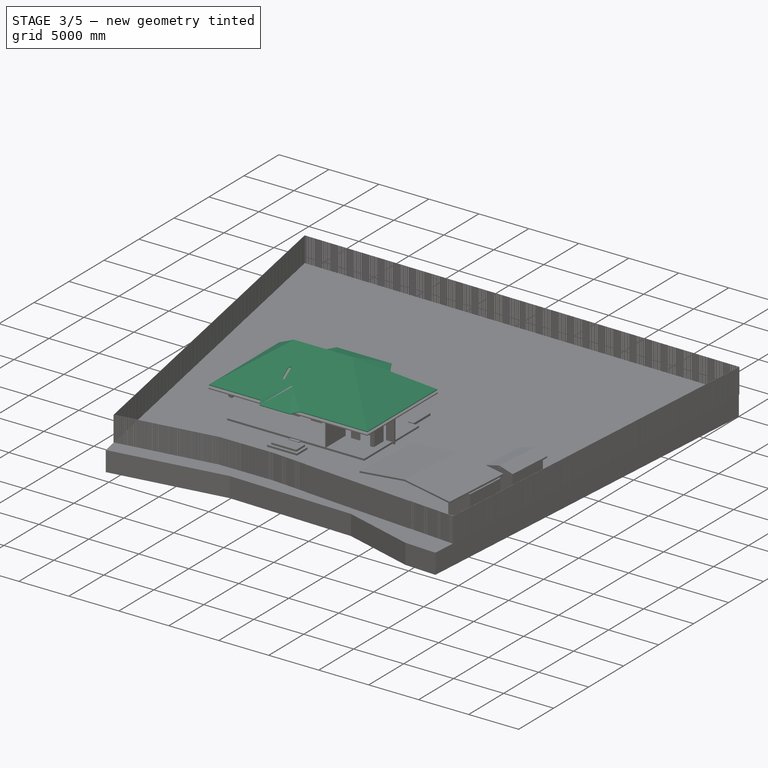
[diagram: stage 3 of 5 — iso view after this stage's code; geometry added in this stage tinted green]
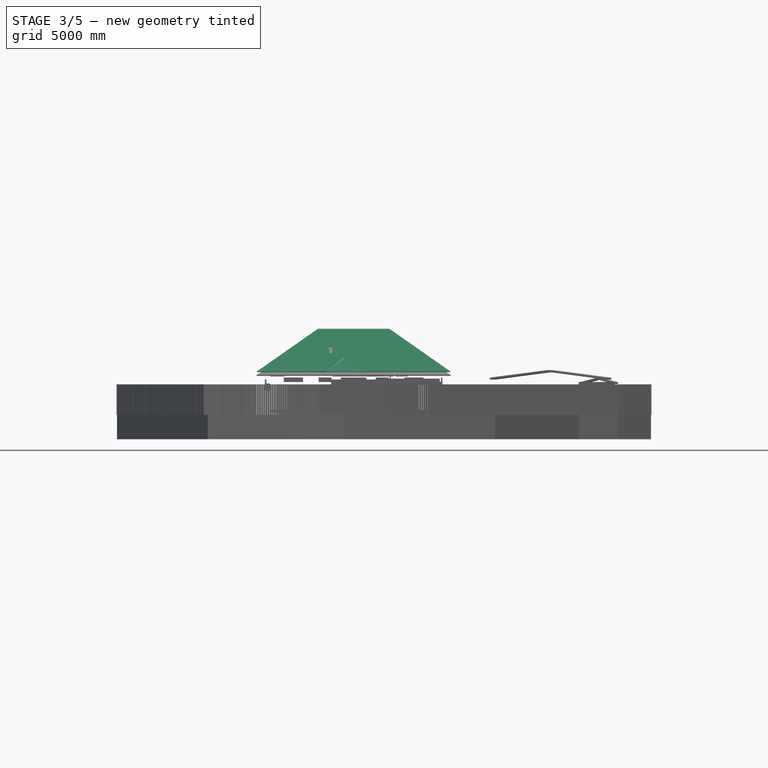
[diagram: stage 3 of 5 — front view after this stage's code; geometry added in this stage tinted green]
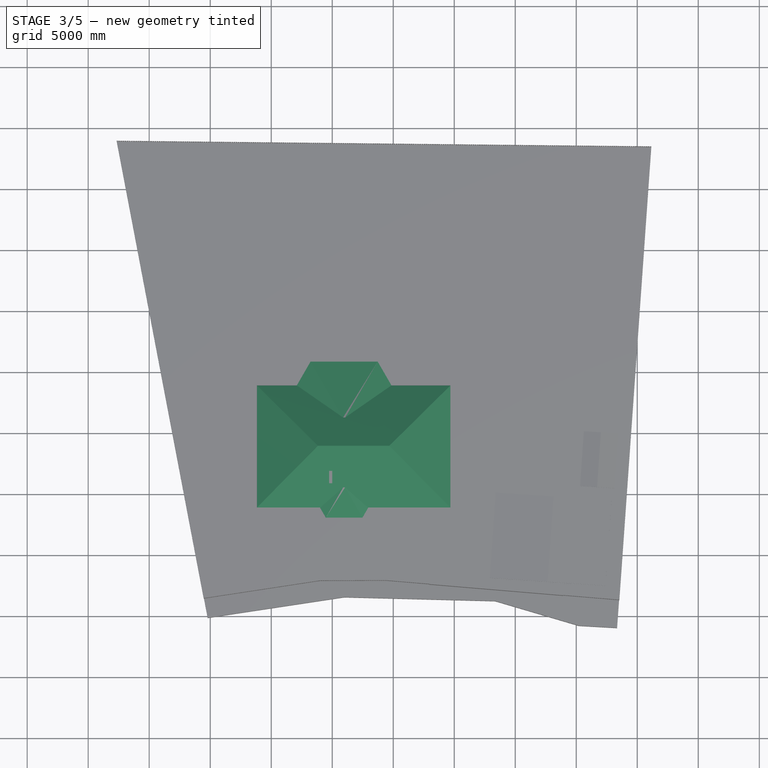
[diagram: stage 3 of 5 — top view after this stage's code; geometry added in this stage tinted green]
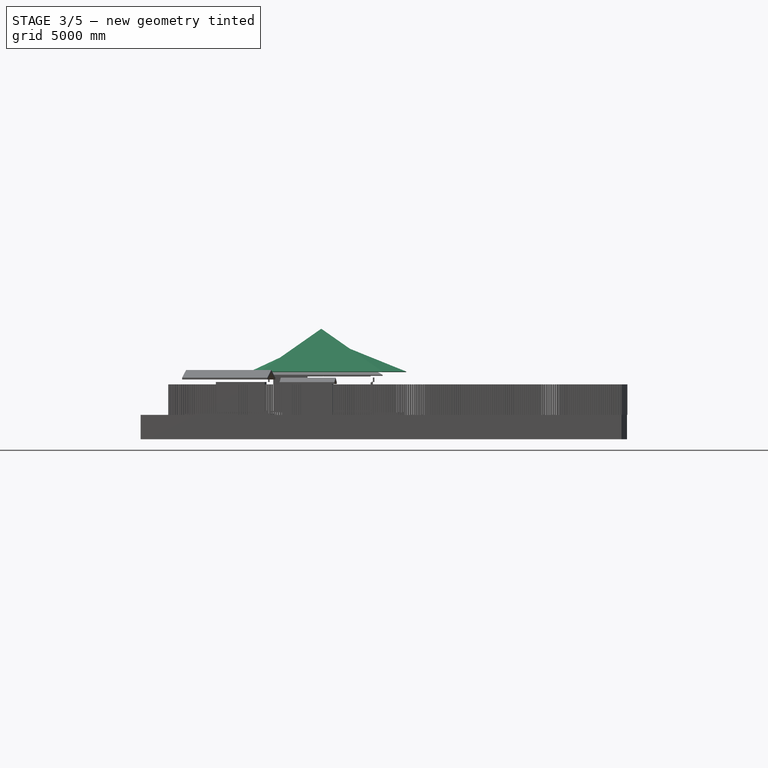
[diagram: stage 3 of 5 — right view after this stage's code; geometry added in this stage tinted green]
FEATURE [Part::Part2DObjectPython] Rectangle1994  label="Rectangle1993"  # Draft 2D object (typed FeaturePython)
  ChamferSize = 0
  Columns = 1
  FilletRadius = 0
  Height = 1500
  Length = 100
  MakeFace = false
  Placement = pos=(9000,4940,0) rot=(0,0,1;0rad)
  Rows = 1
FEATURE [Part::Part2DObjectPython] Rectangle1997  label="Rectangle1996"  # Draft 2D object (typed FeaturePython)
  ChamferSize = 0
  Columns = 1
  FilletRadius = 50
  Height = 900
  Length = 900
  MakeFace = false
  Placement = pos=(6760,4340,0) rot=(0,0,1;0rad)
  Rows = 1
FEATURE [Part::Part2DObjectPython] Rectangle1996  label="Rectangle1995"  # Draft 2D object (typed FeaturePython)
  ChamferSize = 0
  Columns = 1
  FilletRadius = 50
  Height = 900
  Length = 900
  MakeFace = false
  Placement = pos=(6760,5240,0) rot=(0,0,1;0rad)
  Rows = 1
FEATURE [Part::Part2DObjectPython] Rectangle1993  label="Rectangle1992"  # Draft 2D object (typed FeaturePython)
  ChamferSize = 0
  Columns = 1
  FilletRadius = 0
  Height = 1800
  Length = 300
  MakeFace = false
  Placement = pos=(8900,4790,0) rot=(0,0,1;0rad)
  Rows = 1
FEATURE [Part::Part2DObjectPython] Rectangle1992  label="проём в перекрытии 001"  # Draft 2D object (typed FeaturePython)
  ChamferSize = 0
  Columns = 1
  FilletRadius = 0
  Height = 2660
  Length = 1000
  MakeFace = false
  Placement = pos=(9200,4100,0) rot=(0,0,1;0rad)
  Rows = 1
FEATURE [Part::Part2DObjectPython] Rectangle2152  label="Д90-004"  # Draft 2D object (typed FeaturePython)
  ChamferSize = 0
  Columns = 1
  FilletRadius = 0
  Height = 100
  Length = 900
  MakeFace = true
  Placement = pos=(10400,2600,0) rot=(0,0,1;0rad)
  Rows = 1
FEATURE [Part::Part2DObjectPython] Rectangle2089  label="Rectangle2072"  # Draft 2D object (typed FeaturePython)
  ChamferSize = 0
  Columns = 1
  FilletRadius = 0
  Height = 300
  Length = 500
  MakeFace = false
  Placement = pos=(5550,5600,0) rot=(0,0,-1;1.5708rad)
  Rows = 1
FEATURE [Part::Part2DObjectPython] Rectangle2091  label="Rectangle2074"  # Draft 2D object (typed FeaturePython)
  ChamferSize = 0
  Columns = 1
  FilletRadius = 0
  Height = 300
  Length = 500
  MakeFace = false
  Placement = pos=(6500,4950,0) rot=(0,0,1;3.14159rad)
  Rows = 1
FEATURE [Part::Part2DObjectPython] Rectangle2092  label="Rectangle2075"  # Draft 2D object (typed FeaturePython)
  ChamferSize = 0
  Columns = 1
  FilletRadius = 100
  Height = 800
  Length = 1400
  MakeFace = false
  Placement = pos=(5850,6350,0) rot=(0,0,-1;1.5708rad)
  Rows = 1
FEATURE [Part::Part2DObjectPython] Rectangle2227  # Draft 2D object (typed FeaturePython)
  ChamferSize = 0
  Columns = 1
  FilletRadius = 0
  Height = 2700
  Length = 300
  MakeFace = true
  Placement = pos=(7400,-100,0) rot=(0,0,1;0rad)
  Rows = 1
FEATURE [Part::Part2DObjectPython] Rectangle2090  label="Rectangle2073"  # Draft 2D object (typed FeaturePython)
  ChamferSize = 0
  Columns = 1
  FilletRadius = 0
  Height = 300
  Length = 500
  MakeFace = false
  Placement = pos=(5550,6200,0) rot=(0,0,-1;1.5708rad)
  Rows = 1
FEATURE [Part::Feature] ShapeString092  label="надпись 094"
  Placement = pos=(2769.33,810.941,0) rot=(0,0,1;0rad)
  shape: bbox 444.9 x 188.9 x 2e-07 mm, 3 faces, 0 solids (baked)
FEATURE [Part::Part2DObjectPython] Rectangle2161  # Draft 2D object (typed FeaturePython)
  ChamferSize = 0
  Columns = 1
  FilletRadius = 0
  Height = 600
  Length = 950
  MakeFace = true
  Placement = pos=(5100,2000,0) rot=(0,0,1;0rad)
  Rows = 1
FEATURE [Part::Part2DObjectPython] Rectangle2147  label="Д90-002"  # Draft 2D object (typed FeaturePython)
  ChamferSize = 0
  Columns = 1
  FilletRadius = 0
  Height = 200
  Length = 900
  MakeFace = true
  Placement = pos=(10400,3900,0) rot=(0,0,1;0rad)
  Rows = 1
FEATURE [Part::Part2DObjectPython] Rectangle2160  # Draft 2D object (typed FeaturePython)
  ChamferSize = 0
  Columns = 1
  FilletRadius = 0
  Height = 1500
  Length = 500
  MakeFace = true
  Placement = pos=(5100,500,0) rot=(0,0,1;0rad)
  Rows = 1
FEATURE [Part::Part2DObjectPython] Rectangle2188  label="ОК-135-037"  # Draft 2D object (typed FeaturePython)
  ChamferSize = 0
  Columns = 1
  FilletRadius = 0
  Height = 300
  Length = 1870
  MakeFace = true
  Placement = pos=(5820,7760,0) rot=(0,0,1;0rad)
  Rows = 1
FEATURE [Part::Part2DObjectPython] Rectangle2149  label="Д90-001"  # Draft 2D object (typed FeaturePython)
  ChamferSize = 0
  Columns = 1
  FilletRadius = 0
  Height = 100
  Length = 900
  MakeFace = true
  Placement = pos=(3900,2600,0) rot=(0,0,1;0rad)
  Rows = 1
FEATURE [Part::Part2DObjectPython] Rectangle2151  label="Д90-003"  # Draft 2D object (typed FeaturePython)
  ChamferSize = 0
  Columns = 1
  FilletRadius = 0
  Height = 900
  Length = 100
  MakeFace = true
  Placement = pos=(2600,2850,0) rot=(0,0,1;0rad)
  Rows = 1
FEATURE [Part::Part2DObjectPython] Rectangle2169  label="Д-100-2500-01"  # Draft 2D object (typed FeaturePython)
  ChamferSize = 0
  Columns = 1
  FilletRadius = 0
  Height = 300
  Length = 1000
  MakeFace = true
  Placement = pos=(6255,-400,0) rot=(0,0,1;0rad)
  Rows = 1
FEATURE [Part::Part2DObjectPython] Rectangle2189  label="ОК-135-057"  # Draft 2D object (typed FeaturePython)
  ChamferSize = 0
  Columns = 1
  FilletRadius = 0
  Height = 300
  Length = 1350
  MakeFace = true
  Placement = pos=(1140,7760,0) rot=(0,0,1;0rad)
  Rows = 1
FEATURE [Part::Part2DObjectPython] Rectangle2163  # Draft 2D object (typed FeaturePython)
  ChamferSize = 0
  Columns = 1
  FilletRadius = 0
  Height = 600
  Length = 800
  MakeFace = false
  Placement = pos=(4500,7160,0) rot=(0,0,1;0rad)
  Rows = 1
FEATURE [Part::Part2DObjectPython] Rectangle2164  label="Д90-007"  # Draft 2D object (typed FeaturePython)
  ChamferSize = 0
  Columns = 1
  FilletRadius = 0
  Height = 900
  Length = 100
  MakeFace = true
  Placement = pos=(2200,1700,0) rot=(0,0,1;1.5708rad)
  Rows = 1
FEATURE [Part::Part2DObjectPython] Rectangle2167  label="Д90-008"  # Draft 2D object (typed FeaturePython)
  ChamferSize = 0
  Columns = 1
  FilletRadius = 0
  Height = 100
  Length = 900
  MakeFace = true
  Placement = pos=(8700,2600,0) rot=(0,0,1;0rad)
  Rows = 1
FEATURE [Part::Part2DObjectPython] Rectangle2168  label="Д100-001"  # Draft 2D object (typed FeaturePython)
  ChamferSize = 0
  Columns = 1
  FilletRadius = 0
  Height = 100
  Length = 1000
  MakeFace = true
  Placement = pos=(6255,2600,0) rot=(0,0,1;0rad)
  Rows = 1
FEATURE [Part::Part2DObjectPython] Rectangle2170  # Draft 2D object (typed FeaturePython)
  ChamferSize = 0
  Columns = 1
  FilletRadius = 50
  Height = 353.553
  Length = 400
  MakeFace = false
  Placement = pos=(3773.22,6600,0) rot=(0,0,1;1.5708rad)
  Rows = 1
FEATURE [Part::Feature] ShapeString090  label="надпись 092"
  Placement = pos=(3438.34,6122.79,0) rot=(0,0,1;0rad)
  shape: bbox 273.1 x 188.9 x 2e-07 mm, 2 faces, 0 solids (baked)
FEATURE [Part::Part2DObjectPython] Rectangle2190  label="ОК-135-058"  # Draft 2D object (typed FeaturePython)
  ChamferSize = 0
  Columns = 1
  FilletRadius = 0
  Height = 300
  Length = 1350
  MakeFace = true
  Placement = pos=(11020,7760,0) rot=(0,0,1;0rad)
  Rows = 1
FEATURE [Part::Feature] Ellipse042  label="Ellipse043"
  Placement = pos=(9500,350,0) rot=(0,0,1;1.5708rad)
  shape: bbox 200 x 400 x 2e-07 mm, 0 faces, 0 solids (baked)
FEATURE [Part::Part2DObjectPython] Circle067  # Draft 2D object (typed FeaturePython)
  FirstAngle = 0
  LastAngle = 0
  MakeFace = false
  Placement = pos=(3735,4640,0) rot=(0,0,1;0rad)
  Radius = 75
FEATURE [Part::Feature] ShapeString094  label="надпись 096"
  Placement = pos=(4227.36,1237.77,0) rot=(0,0,1;0rad)
  shape: bbox 390.5 x 188.9 x 2e-07 mm, 3 faces, 0 solids (baked)
FEATURE [Part::FeaturePython] Array004  # Draft array (typed FeaturePython)
  Angle = 360
  ArrayType = 0
  Axis = (0,0,1)
  Base = -> Circle067
  Center = (0,0,0)
  Fuse = false
  IntervalAxis = (0,0,0)
  IntervalX = (250,0,0)
  IntervalY = (0,250,0)
  IntervalZ = (0,0,1)
  NumberPolar = 1
  NumberX = 2
  NumberY = 2
  NumberZ = 1
  Placement = pos=(-250,0,0) rot=(0,0,1;0rad)
FEATURE [Part::Part2DObjectPython] Rectangle2194  # Draft 2D object (typed FeaturePython)
  ChamferSize = 0
  Columns = 1
  FilletRadius = 0
  Height = 300
  Length = 500
  MakeFace = false
  Placement = pos=(6500,6650,0) rot=(0,0,1;3.14159rad)
  Rows = 1
FEATURE [Part::Part2DObjectPython] Rectangle2231  label="ОК-90-001"  # Draft 2D object (typed FeaturePython)
  ChamferSize = 0
  Columns = 1
  FilletRadius = 0
  Height = 300
  Length = 900
  MakeFace = true
  Placement = pos=(8645,-400,0) rot=(0,0,1;0rad)
  Rows = 1
FEATURE [Part::Part2DObjectPython] Rectangle2224  # Draft 2D object (typed FeaturePython)
  ChamferSize = 0
  Columns = 1
  FilletRadius = 0
  Height = 600
  Length = 400
  MakeFace = false
  Placement = pos=(2000,600,0) rot=(0,0,-1;1.5708rad)
  Rows = 1
FEATURE [Part::Part2DObjectPython] Rectangle2197  # Draft 2D object (typed FeaturePython)
  ChamferSize = 0
  Columns = 1
  FilletRadius = 0
  Height = 800
  Length = 600
  MakeFace = false
  Placement = pos=(2700,1800,0) rot=(0,0,1;0rad)
  Rows = 1
FEATURE [Part::Part2DObjectPython] Rectangle2196  # Draft 2D object (typed FeaturePython)
  ChamferSize = 0
  Columns = 1
  FilletRadius = 0
  Height = 600
  Length = 600
  MakeFace = false
  Placement = pos=(2700,1200,0) rot=(0,0,1;0rad)
  Rows = 1
FEATURE [Sketcher::SketchObject] Sketch229  label="стол угловой009"
  Placement = pos=(9800,-100,0) rot=(0,0,1;0rad)
  sketch-geometry (9):
    g0: LineSegment StartX=1400 StartY=0 StartZ=0 EndX=0 EndY=0 EndZ=0
    g1: LineSegment StartX=0 StartY=0 StartZ=0 EndX=0 EndY=1500 EndZ=0
    g2: LineSegment StartX=0 StartY=1500 StartZ=0 EndX=450 EndY=1500 EndZ=0
    g3: LineSegment StartX=550 StartY=1400 StartZ=0 EndX=550 EndY=850 EndZ=0
    g4: LineSegment StartX=1400 StartY=0 StartZ=0 EndX=1400 EndY=450 EndZ=0
    g5: LineSegment StartX=1300 StartY=550 StartZ=0 EndX=850 EndY=550 EndZ=0
    g6: ArcOfCircle CenterX=850 CenterY=850 CenterZ=0 NormalX=0 NormalY=0 NormalZ=1 AngleXU=0 Radius=300 StartAngle=3.14159 EndAngle=4.71239
    g7: ArcOfCircle CenterX=1300 CenterY=450 CenterZ=0 NormalX=0 NormalY=0 NormalZ=1 AngleXU=0 Radius=100 StartAngle=1e-16 EndAngle=1.5708
    g8: ArcOfCircle CenterX=450 CenterY=1400 CenterZ=0 NormalX=0 NormalY=0 NormalZ=1 AngleXU=0 Radius=100 StartAngle=0 EndAngle=1.5708
  constraints (25):
    c: Horizontal(g0)
    c: Coincident(g0,g1)
    c: Vertical(g1)
    c: Coincident(g1,g2)
    c: Horizontal(g2)
    c: Coincident(g0,g4)
    c: Horizontal(g5)
    c: Coincident(g6,g3)
    c: Coincident(g6,g5)
    c: Parallel(g3,g1)
    c: Distance(g1) = 1500
    c: Distance(g0) = 1400
    c: Vertical(g4)
    c: Coincident(g0,g-1)
    c: Radius(g6) = 300
    c: DistanceY(g5,g6) = 300
    c: DistanceY(g6,g3) = 0
    c: Tangent(g5,g7) = -1.5708
    c: Tangent(g4,g7) = -1.5708
    c: Radius(g7) = 100
    c: DistanceY(g0,g5) = 550
    c: Tangent(g2,g8) = 1.5708
    c: Tangent(g3,g8) = 1.5708
    c: Radius(g8) = 100
    c: DistanceX(g1,g3) = 550
FEATURE [Part::Feature] ShapeString091  label="надпись 093"
  Placement = pos=(2918.05,2103.05,0) rot=(0,0,1;0rad)
  shape: bbox 140.3 x 188.9 x 2e-07 mm, 1 faces, 0 solids (baked)
FEATURE [Part::Part2DObjectPython] Rectangle2195  # Draft 2D object (typed FeaturePython)
  ChamferSize = 0
  Columns = 1
  FilletRadius = 0
  Height = 600
  Length = 600
  MakeFace = false
  Placement = pos=(2700,600,0) rot=(0,0,1;0rad)
  Rows = 1
FEATURE [Part::Part2DObjectPython] Rectangle2198  # Draft 2D object (typed FeaturePython)
  ChamferSize = 0
  Columns = 1
  FilletRadius = 0
  Height = 400
  Length = 500
  MakeFace = false
  Placement = pos=(4200,1100,0) rot=(0,0,1;0rad)
  Rows = 1
FEATURE [Part::Feature] Ellipse041  label="Ellipse042"
  Placement = pos=(8200,1750,0) rot=(0,0,-1;1.5708rad)
  shape: bbox 600 x 1400 x 2e-07 mm, 0 faces, 0 solids (baked)
FEATURE [Part::Part2DObjectPython] Line1032  # Draft 2D object (typed FeaturePython)
  ChamferSize = 0
  Closed = false
  End = (3600,3750,0)
  FilletRadius = 0
  Length = 900
  MakeFace = false
  Placement = pos=(2700,3750,0) rot=(0,0,1;0rad)
  Points = (2) [(0,0,0),(900,0,0)]
  Start = (2700,3750,0)
  Subdivisions = 0
FEATURE [Part::Feature] ShapeString093  label="надпись 095"
  Placement = pos=(2831.88,1405.56,0) rot=(0,0,1;0rad)
  shape: bbox 283.8 x 188.9 x 2e-07 mm, 2 faces, 0 solids (baked)
FEATURE [Part::Part2DObjectPython] Rectangle2201  # Draft 2D object (typed FeaturePython)
  ChamferSize = 0
  Columns = 1
  FilletRadius = 0
  Height = 1200
  Length = 100
  MakeFace = false
  Placement = pos=(3100,6400,0) rot=(0,0,1;3.14159rad)
  Rows = 1
FEATURE [Part::Part2DObjectPython] Circle069  # Draft 2D object (typed FeaturePython)
  FirstAngle = 0
  LastAngle = 0
  MakeFace = false
  Placement = pos=(2200,400,0) rot=(0,0,-1;1.5708rad)
  Radius = 100
FEATURE [Part::Part2DObjectPython] Rectangle2202  # Draft 2D object (typed FeaturePython)
  ChamferSize = 0
  Columns = 1
  FilletRadius = 0
  Height = -300
  Length = 2660
  MakeFace = false
  Placement = pos=(10600,7760,0) rot=(0,0,-1;1.5708rad)
  Rows = 1
FEATURE [Part::Part2DObjectPython] Rectangle2204  # Draft 2D object (typed FeaturePython)
  ChamferSize = 0
  Columns = 1
  FilletRadius = 0
  Height = 600
  Length = 2110
  MakeFace = true
  Placement = pos=(11500,2700,0) rot=(0,0,1;0rad)
  Rows = 1
FEATURE [Part::Part2DObjectPython] Rectangle2207  # Draft 2D object (typed FeaturePython)
  ChamferSize = 0
  Columns = 1
  FilletRadius = 0
  Height = 1600
  Length = 2100
  MakeFace = false
  Placement = pos=(2050,6600,0) rot=(0,0,1;3.14159rad)
  Rows = 1
FEATURE [Part::Part2DObjectPython] Rectangle2203  # Draft 2D object (typed FeaturePython)
  ChamferSize = 0
  Columns = 1
  FilletRadius = 0
  Height = 600
  Length = 500
  MakeFace = true
  Placement = pos=(11500,3300,0) rot=(0,0,1;0rad)
  Rows = 1
FEATURE [Part::Part2DObjectPython] Line1036  # Draft 2D object (typed FeaturePython)
  ChamferSize = 0
  Closed = false
  End = (6255,-400,0)
  FilletRadius = 0
  Length = 1000
  MakeFace = false
  Placement = pos=(6255,-1400,0) rot=(0,0,1;0rad)
  Points = (2) [(0,0,0),(0,1000,0)]
  Start = (6255,-1400,0)
  Subdivisions = 0
FEATURE [Part::Part2DObjectPython] Rectangle2200  label="Контур по утеплителю"  # Draft 2D object (typed FeaturePython)
  ChamferSize = 0
  Columns = 1
  FilletRadius = 0
  Height = 8460
  Length = 14310
  MakeFace = false
  Placement = pos=(-400,-400,0) rot=(0,0,1;0rad)
  Rows = 1
FEATURE [Part::Part2DObjectPython] Line1041  # Draft 2D object (typed FeaturePython)
  ChamferSize = 0
  Closed = false
  End = (9600,1700,0)
  FilletRadius = 0
  Length = 900
  MakeFace = false
  Placement = pos=(9600,2600,0) rot=(0,0,1;0rad)
  Points = (2) [(0,0,0),(0,-900,0)]
  Start = (9600,2600,0)
  Subdivisions = 0
FEATURE [Part::Part2DObjectPython] Line1035  # Draft 2D object (typed FeaturePython)
  ChamferSize = 0
  Closed = false
  End = (7255,2600,0)
  FilletRadius = 0
  Length = 1000
  MakeFace = false
  Placement = pos=(7255,1600,0) rot=(0,0,1;0rad)
  Points = (2) [(0,0,0),(0,1000,0)]
  Start = (7255,1600,0)
  Subdivisions = 0
FEATURE [Part::Part2DObjectPython] Line1031  # Draft 2D object (typed FeaturePython)
  ChamferSize = 0
  Closed = false
  End = (10400,2600,0)
  FilletRadius = 0
  Length = 900
  MakeFace = false
  Placement = pos=(10400,1700,0) rot=(0,0,1;0rad)
  Points = (2) [(0,0,0),(0,900,0)]
  Start = (10400,1700,0)
  Subdivisions = 0
FEATURE [Part::Part2DObjectPython] Rectangle2208  # Draft 2D object (typed FeaturePython)
  ChamferSize = 0
  Columns = 1
  FilletRadius = 0
  Height = 400
  Length = 400
  MakeFace = false
  Placement = pos=(350,4950,0) rot=(0,0,1;3.14159rad)
  Rows = 1
FEATURE [Part::Part2DObjectPython] Rectangle2209  # Draft 2D object (typed FeaturePython)
  ChamferSize = 0
  Columns = 1
  FilletRadius = 0
  Height = 400
  Length = 400
  MakeFace = false
  Placement = pos=(350,7050,0) rot=(0,0,1;3.14159rad)
  Rows = 1
FEATURE [Part::Feature] ShapeString095  label="надпись 097"
  Placement = pos=(4806.02,7371.36,0) rot=(0,0,1;0rad)
  shape: bbox 140.3 x 188.9 x 2e-07 mm, 1 faces, 0 solids (baked)
FEATURE [Part::Part2DObjectPython] Rectangle2211  # Draft 2D object (typed FeaturePython)
  ChamferSize = 0
  Columns = 1
  FilletRadius = 0
  Height = 1600
  Length = 2100
  MakeFace = false
  Placement = pos=(11470,5000,0) rot=(0,0,1;0rad)
  Rows = 1
FEATURE [Part::Part2DObjectPython] Rectangle2212  # Draft 2D object (typed FeaturePython)
  ChamferSize = 0
  Columns = 1
  FilletRadius = 0
  Height = 400
  Length = 400
  MakeFace = false
  Placement = pos=(13170,6650,0) rot=(0,0,1;0rad)
  Rows = 1
FEATURE [Part::Part2DObjectPython] Rectangle2213  # Draft 2D object (typed FeaturePython)
  ChamferSize = 0
  Columns = 1
  FilletRadius = 0
  Height = 400
  Length = 400
  MakeFace = false
  Placement = pos=(13170,4550,0) rot=(0,0,1;0rad)
  Rows = 1
FEATURE [Part::Part2DObjectPython] Arc048  # Draft 2D object (typed FeaturePython)
  FirstAngle = 285
  LastAngle = 90
  MakeFace = true
  Placement = pos=(4800,2700,0) rot=(0,0,1;1.5708rad)
  Radius = 900
FEATURE [Part::Part2DObjectPython] Arc049  # Draft 2D object (typed FeaturePython)
  FirstAngle = 90
  LastAngle = 180
  MakeFace = true
  Placement = pos=(10400,4100,0) rot=(0,0,-1;1.5708rad)
  Radius = 900
FEATURE [Part::Part2DObjectPython] Rectangle2218  # Draft 2D object (typed FeaturePython)
  ChamferSize = 0
  Columns = 1
  FilletRadius = 0
  Height = 1500
  Length = 2100
  MakeFace = false
  Placement = pos=(13400,450,0) rot=(0,0,1;1.5708rad)
  Rows = 1
FEATURE [Part::Part2DObjectPython] Rectangle2222  # Draft 2D object (typed FeaturePython)
  ChamferSize = 0
  Columns = 1
  FilletRadius = 0
  Height = 800
  Length = 1800
  MakeFace = false
  Placement = pos=(7800,2600,0) rot=(0,0,-1;1.5708rad)
  Rows = 1
FEATURE [Part::Part2DObjectPython] Rectangle2219  # Draft 2D object (typed FeaturePython)
  ChamferSize = 0
  Columns = 1
  FilletRadius = 0
  Height = 450
  Length = 1200
  MakeFace = true
  Placement = pos=(9800,2600,0) rot=(0,0,-1;1.5708rad)
  Rows = 1
FEATURE [Sketcher::SketchObject] Sketch230  label="кресло 45'009"
  Placement = pos=(10552.5,702.513,0) rot=(0,0,-1;0.785398rad)
  sketch-geometry (11):
    g0: LineSegment StartX=-280 StartY=-350 StartZ=0 EndX=280 EndY=-350 EndZ=0
    g1: LineSegment StartX=330 StartY=-300 StartZ=0 EndX=330 EndY=300 EndZ=0
    g2: LineSegment StartX=280 StartY=350 StartZ=0 EndX=-280 EndY=350 EndZ=0
    g3: LineSegment StartX=-330 StartY=300 StartZ=0 EndX=-330 EndY=-300 EndZ=0
    g4: ArcOfCircle CenterX=-280 CenterY=300 CenterZ=0 NormalX=0 NormalY=0 NormalZ=1 AngleXU=0 Radius=50 StartAngle=1.5708 EndAngle=3.14159
    g5: ArcOfCircle CenterX=280 CenterY=300 CenterZ=0 NormalX=0 NormalY=0 NormalZ=1 AngleXU=0 Radius=50 StartAngle=-9e-16 EndAngle=1.5708
    g6: ArcOfCircle CenterX=280 CenterY=-300 CenterZ=0 NormalX=0 NormalY=0 NormalZ=1 AngleXU=0 Radius=50 StartAngle=4.71239 EndAngle=6.28319
    g7: ArcOfCircle CenterX=-280 CenterY=-300 CenterZ=0 NormalX=0 NormalY=0 NormalZ=1 AngleXU=0 Radius=50 StartAngle=3.14159 EndAngle=4.71239
    g8: LineSegment StartX=-330 StartY=200 StartZ=0 EndX=330 EndY=200 EndZ=0
    g9: LineSegment StartX=-230 StartY=200 StartZ=0 EndX=-230 EndY=-350 EndZ=0
    g10: LineSegment StartX=230 StartY=200 StartZ=0 EndX=230 EndY=-350 EndZ=0
  constraints (29):
    c: Horizontal(g0)
    c: Vertical(g1)
    c: Vertical(g3)
    c: Tangent(g2,g4) = -1.5708
    c: Tangent(g3,g4) = -1.5708
    c: Tangent(g2,g5) = -1.5708
    c: Tangent(g1,g5) = -1.5708
    c: Tangent(g0,g6) = -1.5708
    c: Tangent(g1,g6) = -1.5708
    c: Tangent(g3,g7) = -1.5708
    c: Tangent(g0,g7) = -1.5708
    c: DistanceY(g0,g2) = 700
    c: DistanceX(g3,g1) = 660
    c: Equal(g4,g5)
    c: Equal(g7,g6)
    c: Radius(g5) = 50
    c: Symmetric(g2,g2,g-2)
    c: Symmetric(g2,g0,g-1)
    c: PointOnObject(g8,g3)
    c: PointOnObject(g8,g1)
    c: Horizontal(g8)
    c: DistanceY(g8,g2) = 150
    c: PointOnObject(g9,g8)
    c: PointOnObject(g9,g0)
    c: Vertical(g9)
    c: PointOnObject(g10,g0)
    c: Vertical(g10)
    c: DistanceX(g10,g8) = 100
    c: Symmetric(g10,g9,g-2)
FEATURE [Part::Part2DObjectPython] Rectangle2217  # Draft 2D object (typed FeaturePython)
  ChamferSize = 0
  Columns = 1
  FilletRadius = 0
  Height = 1800
  Length = 900
  MakeFace = false
  Placement = pos=(13550,1650,0) rot=(0,0,1;1.5708rad)
  Rows = 1
FEATURE [Part::Part2DObjectPython] Arc051  # Draft 2D object (typed FeaturePython)
  FirstAngle = -180
  LastAngle = -90
  MakeFace = true
  Placement = pos=(2700,3750,0) rot=(0,0,1;1.5708rad)
  Radius = 900
FEATURE [Part::Part2DObjectPython] Rectangle2223  # Draft 2D object (typed FeaturePython)
  ChamferSize = 0
  Columns = 1
  FilletRadius = 0
  Height = 600
  Length = 400
  MakeFace = false
  Placement = pos=(9300,50,0) rot=(0,0,1;0rad)
  Rows = 1
FEATURE [Part::Part2DObjectPython] Line1033  # Draft 2D object (typed FeaturePython)
  ChamferSize = 0
  Closed = false
  End = (10400,4100,0)
  FilletRadius = 0
  Length = 900
  MakeFace = false
  Placement = pos=(10400,5000,0) rot=(0,0,1;0rad)
  Points = (2) [(0,0,0),(0,-900,0)]
  Start = (10400,5000,0)
  Subdivisions = 0
FEATURE [Part::Part2DObjectPython] Arc052  # Draft 2D object (typed FeaturePython)
  FirstAngle = 90
  LastAngle = 180
  MakeFace = false
  Placement = pos=(7255,2600,0) rot=(0,0,1;1.5708rad)
  Radius = 1000
FEATURE [Part::Part2DObjectPython] Arc053  # Draft 2D object (typed FeaturePython)
  FirstAngle = -90
  LastAngle = 0
  MakeFace = false
  Placement = pos=(6255,-400,0) rot=(0,0,1;0rad)
  Radius = 1000
FEATURE [Part::Part2DObjectPython] Wire397  # Draft 2D object (typed FeaturePython)
  ChamferSize = 0
  Closed = false
  End = (9800,1400,0)
  FilletRadius = 0
  Length = 3013.2
  MakeFace = false
  Placement = pos=(9800,200,0) rot=(0,0,1;1.5708rad)
  Points = (4) [(1200,-450,0),(2400,0,0),(2400,-450,0),(1200,0,0)]
  Start = (10250,1400,0)
  Subdivisions = 0
FEATURE [Part::Part2DObjectPython] Arc050  # Draft 2D object (typed FeaturePython)
  FirstAngle = -90
  LastAngle = 0
  MakeFace = true
  Placement = pos=(10400,2600,0) rot=(0,0,1;0rad)
  Radius = 900
FEATURE [Part::Part2DObjectPython] Arc054  # Draft 2D object (typed FeaturePython)
  FirstAngle = 90
  LastAngle = 180
  MakeFace = false
  Placement = pos=(9600,2600,0) rot=(0,0,1;1.5708rad)
  Radius = 900
FEATURE [Part::Part2DObjectPython] ShapeString106  label="надпись 108"  # Draft 2D object (typed FeaturePython)
  FontFile = <path>
  Placement = pos=(1016.43,871.552,0) rot=(0,0,1;0rad)
  Size = 200
  String = 4.9 м2
  Tracking = 0
FEATURE [Part::Part2DObjectPython] Arc055  # Draft 2D object (typed FeaturePython)
  FirstAngle = -90
  LastAngle = 0
  MakeFace = false
  Placement = pos=(2200,1800,0) rot=(0,0,1;3.14159rad)
  Radius = 900
FEATURE [Part::Part2DObjectPython] Rectangle2225  # Draft 2D object (typed FeaturePython)
  ChamferSize = 0
  Columns = 1
  FilletRadius = 0
  Height = 1000
  Length = 1400
  MakeFace = false
  Placement = pos=(8800,6760,0) rot=(0,0,1;0rad)
  Rows = 1
FEATURE [Part::Part2DObjectPython] Line1038  # Draft 2D object (typed FeaturePython)
  ChamferSize = 0
  Closed = false
  End = (2200,2700,0)
  FilletRadius = 0
  Length = 900
  MakeFace = false
  Placement = pos=(2200,1800,0) rot=(0,0,1;1.5708rad)
  Points = (2) [(0,0,0),(900,3.63798e-12,0)]
  Start = (2200,1800,0)
  Subdivisions = 0
FEATURE [Part::Part2DObjectPython] Rectangle2230  label="ОК-90-002"  # Draft 2D object (typed FeaturePython)
  ChamferSize = 0
  Columns = 1
  FilletRadius = 0
  Height = 300
  Length = 900
  MakeFace = true
  Placement = pos=(3965,-400,0) rot=(0,0,1;0rad)
  Rows = 1
FEATURE [Part::Part2DObjectPython] Wire403  # Draft 2D object (typed FeaturePython)
  ChamferSize = 0
  Closed = true
  End = (7255,-300,0)
  FilletRadius = 0
  Length = 11470
  MakeFace = true
  Placement = pos=(7900,-100,0) rot=(0,0,1;0rad)
  Points = (12) [(-645,1.25056e-12,0),(-200,3.40747e-13,0),(-200,2700,0),(-645,2700,0),(-645,2800,0),(800,2800,0),(800,2700,0),(-100,2700,0),(-100,1.70499e-12,0),+3 more]
  Start = (7255,-100,0)
  Subdivisions = 0
FEATURE [Part::Part2DObjectPython] Wire401  # Draft 2D object (typed FeaturePython)
  ChamferSize = 0
  Closed = true
  End = (3965,-300,0)
  FilletRadius = 0
  Length = 19400
  MakeFace = true
  Placement = pos=(-500,-200,0) rot=(0,0,1;0rad)
  Points = (18) [(200,-100,0),(200,785,0),(400,785,0),(400,100,0),(3100,100,0),(3100,1900,0),(2700,1900,0),(2700,2000,0),(3100,2000,0),(3100,3050,0),(3200,3050,0),+7 more]
  Start = (-300,-300,0)
  Subdivisions = 0
FEATURE [Part::Part2DObjectPython] Wire402  # Draft 2D object (typed FeaturePython)
  ChamferSize = 0
  Closed = true
  End = (6255,-300,0)
  FilletRadius = 0
  Length = 11490
  MakeFace = true
  Placement = pos=(4200,-200,0) rot=(0,0,1;0rad)
  Points = (12) [(665,-100,0),(665,100,0),(800,100,0),(800,2800,0),(600,2800,0),(600,2900,0),(2055,2900,0),(2055,2800,0),(900,2800,0),(900,100,0),(2055,100,0),+1 more]
  Start = (4865,-300,0)
  Subdivisions = 0
FEATURE [Part::Part2DObjectPython] ShapeString096  label="надпись 098"  # Draft 2D object (typed FeaturePython)
  FontFile = <path>
  Placement = pos=(8637.2,1312.87,0) rot=(0,0,1;0rad)
  Size = 200
  String = 5.1 м2
  Tracking = 0
FEATURE [Part::Part2DObjectPython] ShapeString097  label="надпись 099"  # Draft 2D object (typed FeaturePython)
  FontFile = <path>
  Placement = pos=(7232.05,3262.56,0) rot=(0,0,1;0rad)
  Size = 200
  String = общая: 107.8 м2
  Tracking = 0
FEATURE [Part::Part2DObjectPython] ShapeString101  label="надпись 103"  # Draft 2D object (typed FeaturePython)
  FontFile = <path>
  Placement = pos=(941.753,6937.33,0) rot=(0,0,1;0rad)
  Size = 200
  String = 12.1 м2
  Tracking = 0
FEATURE [Part::Part2DObjectPython] ShapeString099  label="надпись 101"  # Draft 2D object (typed FeaturePython)
  FontFile = <path>
  Placement = pos=(3455.72,1751.92,0) rot=(0,0,1;0rad)
  Size = 200
  String = 6.2 м2
  Tracking = 0
FEATURE [App::FeaturePython] Dimension001  # Draft dimension (typed FeaturePython)
  Diameter = false
  Dimline = (15100,-1000,0)
  Direction = (0,0,0)
  Distance = 7860
  End = (13610,7760,0)
  Normal = (0,0,1)
  Start = (13610,-100,0)
FEATURE [Part::Part2DObjectPython] ShapeString098  label="надпись 100"  # Draft 2D object (typed FeaturePython)
  FontFile = <path>
  Placement = pos=(6243.3,1191.96,0) rot=(0,0,1;0rad)
  Size = 200
  String = 7.0 м2
  Tracking = 0
FEATURE [Part::Part2DObjectPython] ShapeString100  label="надпись 102"  # Draft 2D object (typed FeaturePython)
  FontFile = <path>
  Placement = pos=(11318.1,7012.37,0) rot=(0,0,1;0rad)
  Size = 200
  String = 12.1 м2
  Tracking = 0
FEATURE [Part::Part2DObjectPython] ShapeString103  label="надпись 105"  # Draft 2D object (typed FeaturePython)
  FontFile = <path>
  Placement = pos=(1292.65,2914.29,0) rot=(0,0,1;0rad)
  Size = 200
  String = 5.7 м2
  Tracking = 0
FEATURE [Part::Part2DObjectPython] ShapeString102  label="надпись 104"  # Draft 2D object (typed FeaturePython)
  FontFile = <path>
  Placement = pos=(5388.19,6905.56,0) rot=(0,0,1;0rad)
  Size = 200
  String = 25.2 м2
  Tracking = 0
FEATURE [Part::Part2DObjectPython] ShapeString104  label="надпись 106"  # Draft 2D object (typed FeaturePython)
  FontFile = <path>
  Placement = pos=(10525.1,1310.33,0) rot=(0,0,1;0rad)
  Size = 200
  String = 10.3 м2
  Tracking = 0
FEATURE [App::FeaturePython] Dimension  # Draft dimension (typed FeaturePython)
  Diameter = false
  Dimline = (13600,-1600,0)
  Direction = (0,0,0)
  Distance = 13710
  End = (13610,-100,0)
  Normal = (0,0,1)
  Start = (-100,-100,0)
FEATURE [Part::FeaturePython] Axis  label="Оси верт."  # WARN: FeaturePython — macro-defined, semantics opaque (R4)
  Angles = [0,0,0,0,0,0,0]
  Distances = [0,2800,1200,700,2450,2650,2280]
  Labels = A | B | C | D | E | F | G
  Length = 12000
  Placement = pos=(0,-2000,0) rot=(0,0,1;0rad)
FEATURE [Part::FeaturePython] Axis001  label="Оси гор."  # WARN: FeaturePython — macro-defined, semantics opaque (R4)
  Angles = [0,0,0,0]
  Distances = [0,2450,1380,3830]
  Labels = 1 | 2 | 3 | 4
  Length = 16000
  Placement = pos=(14000,7.96e-13,0) rot=(0,0,1;1.5708rad)
FEATURE [App::FeaturePython] AxisSystem  label="Axis System"  # WARN: FeaturePython — macro-defined, semantics opaque (R4)
  Axes = -> [Axis,Axis001]
FEATURE [Sketcher::SketchObject] Sketch  label=" Вентстояк из ПБ 100 и 50 мм"
  Placement = pos=(-860,-6400,0) rot=(0,0,1;0rad)
  sketch-geometry (20):
    g0: LineSegment StartX=5610 StartY=7200 StartZ=0 EndX=5860 EndY=7200 EndZ=0
    g1: LineSegment StartX=5860 StartY=7200 StartZ=0 EndX=5860 EndY=8200 EndZ=0
    g2: LineSegment StartX=5860 StartY=8200 StartZ=0 EndX=5610 EndY=8200 EndZ=0
    g3: LineSegment StartX=5610 StartY=8200 StartZ=0 EndX=5610 EndY=7200 EndZ=0
    g4: LineSegment StartX=5660 StartY=8100 StartZ=0 EndX=5810 EndY=8100 EndZ=0
    g5: LineSegment StartX=5810 StartY=8100 StartZ=0 EndX=5810 EndY=7950 EndZ=0
    g6: LineSegment StartX=5810 StartY=7950 StartZ=0 EndX=5660 EndY=7950 EndZ=0
    g7: LineSegment StartX=5660 StartY=7950 StartZ=0 EndX=5660 EndY=8100 EndZ=0
    g8: LineSegment StartX=5660 StartY=7750 StartZ=0 EndX=5810 EndY=7750 EndZ=0
    g9: LineSegment StartX=5810 StartY=7750 StartZ=0 EndX=5810 EndY=7900 EndZ=0
    g10: LineSegment StartX=5810 StartY=7900 StartZ=0 EndX=5660 EndY=7900 EndZ=0
    g11: LineSegment StartX=5660 StartY=7900 StartZ=0 EndX=5660 EndY=7750 EndZ=0
    g12: LineSegment StartX=5660 StartY=7650 StartZ=0 EndX=5810 EndY=7650 EndZ=0
    g13: LineSegment StartX=5660 StartY=7500 StartZ=0 EndX=5660 EndY=7650 EndZ=0
    g14: LineSegment StartX=5810 StartY=7500 StartZ=0 EndX=5660 EndY=7500 EndZ=0
    g15: LineSegment StartX=5810 StartY=7650 StartZ=0 EndX=5810 EndY=7500 EndZ=0
    g16: LineSegment StartX=5660 StartY=7300 StartZ=0 EndX=5810 EndY=7300 EndZ=0
    g17: LineSegment StartX=5810 StartY=7300 StartZ=0 EndX=5810 EndY=7450 EndZ=0
    g18: LineSegment StartX=5810 StartY=7450 StartZ=0 EndX=5660 EndY=7450 EndZ=0
    g19: LineSegment StartX=5660 StartY=7450 StartZ=0 EndX=5660 EndY=7300 EndZ=0
  constraints (58):
    c: Coincident(g0,g1)
    c: Coincident(g1,g2)
    c: Coincident(g2,g3)
    c: Coincident(g3,g0)
    c: Horizontal(g0)
    c: Horizontal(g2)
    c: Vertical(g1)
    c: Vertical(g3)
    c: DistanceX(g2,g2) = 250
    c: DistanceY(g3,g3) = 1000
    c: Coincident(g4,g5)
    c: Coincident(g5,g6)
    c: Coincident(g6,g7)
    c: Coincident(g7,g4)
    c: Horizontal(g4)
    c: Horizontal(g6)
    c: Vertical(g5)
    c: Vertical(g7)
    c: DistanceX(g4,g4) = 150
    c: DistanceY(g7,g7) = 150
    c: DistanceY(g4,g2) = 100
    c: DistanceX(g2,g4) = 50
    c: Coincident(g8,g9)
    c: Coincident(g9,g10)
    c: Coincident(g10,g11)
    c: Coincident(g11,g8)
    c: Horizontal(g8)
    c: Horizontal(g10)
    c: Vertical(g9)
    c: Vertical(g11)
    c: Equal(g10,g4)
    c: Equal(g11,g7)
    c: DistanceY(g10,g6) = 50
    c: DistanceX(g6,g10) = 0
    c: Coincident(g12,g15)
    c: Coincident(g15,g14)
    c: Coincident(g14,g13)
    c: Coincident(g13,g12)
    c: Horizontal(g12)
    c: Horizontal(g14)
    c: Vertical(g15)
    c: Vertical(g13)
    c: Equal(g4,g12) = 150
    c: Equal(g7,g13) = 150
    c: Coincident(g16,g17)
    c: Coincident(g17,g18)
    c: Coincident(g18,g19)
    c: Coincident(g19,g16)
    c: Horizontal(g16)
    c: Horizontal(g18)
    c: Vertical(g17)
    c: Vertical(g19)
    c: Equal(g18,g12)
    c: Equal(g19,g13)
    c: DistanceY(g18,g14) = 50
    c: DistanceX(g14,g18) = 0
    c: DistanceY(g12,g8) = 100
    c: DistanceX(g0,g12) = 50
FEATURE [Part::Part2DObjectPython] Rectangle2232  label="Rectangle2230"  # Draft 2D object (typed FeaturePython)
  ChamferSize = 0
  Columns = 1
  FilletRadius = 50
  Height = 900
  Length = 900
  MakeFace = false
  Placement = pos=(6760,6140,0) rot=(0,0,1;0rad)
  Rows = 1
FEATURE [Part::Part2DObjectPython] Rectangle2234  # Draft 2D object (typed FeaturePython)
  ChamferSize = 0
  Columns = 1
  FilletRadius = 0
  Height = 1500
  Length = 3000
  MakeFace = false
  Placement = pos=(5255,-2050,0) rot=(0,0,1;0rad)
  Rows = 1
FEATURE [Part::Part2DObjectPython] Wire  # Draft 2D object (typed FeaturePython)
  ChamferSize = 0
  Closed = true
  End = (-1170,8830,0)
  FilletRadius = 0
  Length = 51700
  MakeFace = false
  Placement = pos=(-1170,-1170,0) rot=(0,0,1;0rad)
  Points = (4) [(0,0,0),(15850,-1.81899e-12,0),(15850,10000,0),(0,10000,0)]
  Start = (-1170,-1170,0)
  Subdivisions = 0
FEATURE [Part::Part2DObjectPython] Wire413  # Draft 2D object (typed FeaturePython)
  ChamferSize = 0
  Closed = true
  End = (4050,9820,0)
  FilletRadius = 0
  Length = 1520
  MakeFace = true
  Placement = pos=(3694.42,9968.26,0) rot=(0,0,1;0rad)
  Points = (4) [(-24.4187,-148.256,0),(-24.4187,231.744,0),(355.581,231.744,0),(355.581,-148.256,0)]
  Start = (3670,9820,0)
  Subdivisions = 0
FEATURE [Part::Part2DObjectPython] Wire414  # Draft 2D object (typed FeaturePython)
  ChamferSize = 0
  Closed = true
  End = (9840,9820,0)
  FilletRadius = 0
  Length = 1520
  MakeFace = true
  Placement = pos=(9484.42,9968.26,0) rot=(0,0,1;0rad)
  Points = (4) [(-24.4187,-148.256,0),(-24.4187,231.744,0),(355.581,231.744,0),(355.581,-148.256,0)]
  Start = (9460,9820,0)
  Subdivisions = 0
FEATURE [Part::Part2DObjectPython] Rectangle2237  # Draft 2D object (typed FeaturePython)
  ChamferSize = 0
  Columns = 1
  FilletRadius = 0
  Height = 300
  Length = 500
  MakeFace = false
  Placement = pos=(6730,10200,0) rot=(0,0,1;3.14159rad)
  Rows = 1
FEATURE [Part::Part2DObjectPython] Rectangle2238  # Draft 2D object (typed FeaturePython)
  ChamferSize = 0
  Columns = 1
  FilletRadius = 0
  Height = 300
  Length = 500
  MakeFace = false
  Placement = pos=(7330,10200,0) rot=(0,0,1;3.14159rad)
  Rows = 1
FEATURE [Part::Part2DObjectPython] Rectangle2239  # Draft 2D object (typed FeaturePython)
  ChamferSize = 0
  Columns = 1
  FilletRadius = 0
  Height = 300
  Length = 500
  MakeFace = false
  Placement = pos=(7780,9250,0) rot=(0,0,1;1.5708rad)
  Rows = 1
FEATURE [Part::Part2DObjectPython] Rectangle2240  # Draft 2D object (typed FeaturePython)
  ChamferSize = 0
  Columns = 1
  FilletRadius = 0
  Height = 300
  Length = 500
  MakeFace = false
  Placement = pos=(6080,9250,0) rot=(0,0,1;1.5708rad)
  Rows = 1
FEATURE [Part::Part2DObjectPython] Rectangle2241  # Draft 2D object (typed FeaturePython)
  ChamferSize = 0
  Columns = 1
  FilletRadius = 0
  Height = 300
  Length = 500
  MakeFace = false
  Placement = pos=(6730,9100,0) rot=(0,0,1;3.14159rad)
  Rows = 1
FEATURE [Part::Part2DObjectPython] Rectangle2242  # Draft 2D object (typed FeaturePython)
  ChamferSize = 0
  Columns = 1
  FilletRadius = 0
  Height = 300
  Length = 500
  MakeFace = false
  Placement = pos=(7330,9100,0) rot=(0,0,1;3.14159rad)
  Rows = 1
FEATURE [Part::Part2DObjectPython] Rectangle2243  # Draft 2D object (typed FeaturePython)
  ChamferSize = 0
  Columns = 1
  FilletRadius = 100
  Height = 800
  Length = 1400
  MakeFace = false
  Placement = pos=(7480,9900,0) rot=(0,0,1;3.14159rad)
  Rows = 1
FEATURE [Part::Part2DObjectPython] Wire417  # Draft 2D object (typed FeaturePython)
  ChamferSize = 0
  Closed = true
  End = (3225,10793.1,0)
  FilletRadius = 0
  Length = 27500
  MakeFace = false
  Placement = pos=(-125,6030,0) rot=(0,0,1;0rad)
  Points = (4) [(600,-9.09495e-13,0),(11600,-9.09495e-13,0),(8850,4763.14,0),(3350,4763.14,0)]
  Start = (475,6030,0)
  Subdivisions = 0
FEATURE [Part::FeaturePython] Roof003  label="Крыша терасса"  # Arch/BIM object (typed FeaturePython)
  Angles = [90,22,22,22]
  Base = -> Wire417
  BorderLength = 28218.2
  Face = 1
  Flip = false
  Heights = [0,1898.92,1898.92,1898.92]
  HorizontalArea = 3.9289e+07
  IdRel = [0,0,0,0]
  IfcRole = 111
  MoveWithHost = false
  Overhang = [0,0,0,0]
  PerimeterLength = 27572.9
  Placement = pos=(0,0,3100) rot=(0,0,1;0rad)
  RidgeLength = 11499.4
  Runs = [1000,4700,4700,4700]
  Thickness = [50,50,50,50]
  VerticalArea = 1.48692e+06
FEATURE [Part::Part2DObjectPython] Wire420  # Draft 2D object (typed FeaturePython)
  ChamferSize = 0
  Closed = true
  End = (7475,-2000,0)
  FilletRadius = 0
  Length = 15000
  MakeFace = false
  Placement = pos=(14575,598.076,0) rot=(0,0,1;3.14159rad)
  Points = (4) [(5600,-2.15568e-05,0),(11600,-9.09495e-13,0),(10100,2598.08,0),(7100,2598.08,0)]
  Start = (8975,598.076,0)
  Subdivisions = 0
FEATURE [Part::FeaturePython] Roof004  label="Крыша крыльцо"  # Arch/BIM object (typed FeaturePython)
  Angles = [90,25,25,25]
  Base = -> Wire420
  BorderLength = 15517.6
  Face = 0
  Flip = false
  Heights = [0,1189.08,1189.08,1189.08]
  HorizontalArea = 1.16873e+07
  IdRel = [0,0,0,0]
  IfcRole = 111
  MoveWithHost = false
  Overhang = [0,0,0,0]
  PerimeterLength = 15055.5
  Placement = pos=(0,0,3100) rot=(0,0,1;0rad)
  RidgeLength = 6351.04
  Runs = [250,2550,2550,2550]
  Thickness = [50,50,50,50]
  VerticalArea = 830596
FEATURE [Part::FeaturePython] Roof  label="Крыша основная_"  # Arch/BIM object (typed FeaturePython)
  Angles = [35,35,35,35]
  Base = -> Wire
  BorderLength = 54641.5
  Face = 0
  Flip = false
  Heights = [3501.04,3501.04,3501.04,3501.04]
  HorizontalArea = 1.0425e+08
  IdRel = [0,0,0,0]
  IfcRole = 111
  MoveWithHost = false
  Overhang = [0,0,0,0]
  PerimeterLength = 55842.1
  Placement = pos=(0,0,3100) rot=(0,0,1;0rad)
  RidgeLength = 37411.3
  Runs = [5000,5000,5000,5000]
  Subtractions = -> [Structure036]
  Thickness = [50,50,50,50]
  VerticalArea = 3.3083e+06
FEATURE [App::GeometryPython] BuildingPart017  label="Опциональная мансарда"  # Arch/BIM object (typed FeaturePython)
  Area = 0
  Group = -> [Loft]
  Height = 0
  IfcRole = 0
  LevelOffset = 0
FEATURE [Part::FeaturePython] Wall057  label="мауэрлат"  # Arch/BIM object (typed FeaturePython)
  Align = 0
  Base = -> Rectangle2265
  BlockHeight = 0
  BlockLength = 0
  CountBroken = 0
  CountEntire = 0
  Face = 0
  Height = 100
  HorizontalArea = 6621000
  IfcRole = 156
  Joint = 0
  Length = 43140
  MakeBlocks = false
  MoveWithHost = false
  Normal = (0,0,0)
  Offset = 50
  OffsetFirst = 0
  OffsetSecond = 0
  PerimeterLength = 44740
  Placement = pos=(0,0,3110) rot=(0,0,1;0rad)
  VerticalArea = 8828000
  Width = 150
FEATURE [Part::FeaturePython] Roof005  label="Крыша объём стропильной системы"  # Arch/BIM object (typed FeaturePython)
  Angles = [30,30,30,30]
  Base = -> Wire
  BorderLength = 51700
  Face = 0
  Flip = false
  Heights = [2886.75,2886.75,2886.75,2886.75]
  HorizontalArea = 1.585e+08
  IdRel = [0,0,0,0]
  IfcRole = 111
  MoveWithHost = false
  Overhang = [0,0,0,0]
  PerimeterLength = 0
  Placement = pos=(0,0,2630) rot=(0,0,1;0rad)
  RidgeLength = 36400.5
  Runs = [5000,5000,5000,5000]
  Thickness = [200,200,200,200]
  VerticalArea = 1.19396e+07
FEATURE [Part::FeaturePython] Structure047  label="Плоскость стропила"  # Arch/BIM object (typed FeaturePython)
  FaceMaker = 0
  Height = 5000
  HorizontalArea = 600000
  IfcRole = 8
  Length = 12000
  MoveWithHost = false
  Nodes = (2) [(0,1.81899e-16,-8.88178e-15),(0,1.81899e-16,12000)]
  NodesOffset = 0
  Normal = (0,0,0)
  PerimeterLength = 24100
  Placement = pos=(135,-2000,4500) rot=(0,0,1;1.5708rad)
  VerticalArea = 120500000
  Width = 50
FEATURE [Part::Part2DObjectPython] Wire423  # Draft 2D object (typed FeaturePython)
  ChamferSize = 0
  Closed = true
  End = (3840,3830,0)
  FilletRadius = 0
  Length = 35822.1
  MakeFace = false
  Placement = pos=(-1160,8830,0) rot=(0,0,1;0rad)
  Points = (4) [(0,0,0),(15840,0,0),(10840,-5000,0),(5000,-5000,0)]
  Start = (-1160,8830,0)
  Subdivisions = 0
FEATURE [Part::Part2DObjectPython] Wire424  # Draft 2D object (typed FeaturePython)
  ChamferSize = 0
  Closed = true
  End = (-1160,-1170,0)
  FilletRadius = 0
  Length = 24142.1
  MakeFace = false
  Placement = pos=(-1160,8830,0) rot=(0,0,1;0rad)
  Points = (3) [(0,0,0),(5000,-5000,0),(-6.82121e-13,-10000,0)]
  Start = (-1160,8830,0)
  Subdivisions = 0
FEATURE [Part::FeaturePython] Structure048  label="вычитаемый объём 001"  # Arch/BIM object (typed FeaturePython)
  Base = -> Wire423
  FaceMaker = 0
  Height = 4000
  HorizontalArea = 5.42e+07
  IfcRole = 0
  Length = 0
  MoveWithHost = false
  Nodes = (2) [(6760,6714.38,0),(6760,6714.38,4000)]
  NodesOffset = 0
  Normal = (0,0,1)
  PerimeterLength = 35822.1
  Placement = pos=(0,0,3160) rot=(0,0,1;0rad)
  VerticalArea = 1.43289e+08
  Width = 100
FEATURE [Part::Part2DObjectPython] Wire425  # Draft 2D object (typed FeaturePython)
  ChamferSize = 0
  Closed = true
  End = (14680,-1170,0)
  FilletRadius = 0
  Length = 35822.1
  MakeFace = false
  Placement = pos=(-1160,-1170,0) rot=(0,0,1;0rad)
  Points = (4) [(0,0,0),(5000,5000,0),(10840,5000,0),(15840,-1.81899e-12,0)]
  Start = (-1160,-1170,0)
  Subdivisions = 0
  Support = -> [Structure048]
FEATURE [Part::Part2DObjectPython] Wire426  # Draft 2D object (typed FeaturePython)
  ChamferSize = 0
  Closed = true
  End = (14680,-1170,0)
  FilletRadius = 0
  Length = 24142.1
  MakeFace = false
  Placement = pos=(9680,3830,0) rot=(0,0,1;0rad)
  Points = (3) [(0,0,0),(5000,5000,0),(5000,-5000,0)]
  Start = (9680,3830,0)
  Subdivisions = 0
FEATURE [Part::FeaturePython] Structure050  label="вычитаемый объём 004"  # Arch/BIM object (typed FeaturePython)
  Base = -> Wire425
  FaceMaker = 0
  Height = 4000
  HorizontalArea = 5.42e+07
  IfcRole = 0
  Length = 0
  MoveWithHost = false
  Nodes = (2) [(6040,886.738,0),(6040,886.738,4000)]
  NodesOffset = 0
  Normal = (0,0,1)
  PerimeterLength = 35822.1
  Placement = pos=(0,0,3160) rot=(0,0,1;0rad)
  VerticalArea = 1.43289e+08
  Width = 100
FEATURE [Part::FeaturePython] Structure051  label="вычитаемый объём 003"  # Arch/BIM object (typed FeaturePython)
  Base = -> Wire426
  FaceMaker = 0
  Height = 4000
  HorizontalArea = 2.5e+07
  IfcRole = 0
  Length = 0
  MoveWithHost = false
  Nodes = (2) [(13013.3,3830,0),(13013.3,3830,4000)]
  NodesOffset = 0
  Normal = (0,0,1)
  PerimeterLength = 24142.1
  Placement = pos=(0,0,3160) rot=(0,0,1;0rad)
  VerticalArea = 9.65685e+07
  Width = 100
FEATURE [Part::FeaturePython] Structure052  label="Плоскость стропила001"  # Arch/BIM object (typed FeaturePython)
  FaceMaker = 0
  Height = 5000
  HorizontalArea = 850000
  IfcRole = 8
  Length = 17000
  MoveWithHost = false
  Nodes = (2) [(0,1.81899e-16,-8.88178e-15),(0,1.81899e-16,17000)]
  NodesOffset = 0
  Normal = (0,0,0)
  PerimeterLength = 34100
  Placement = pos=(-2000,55,4500) rot=(0,0,1;0rad)
  VerticalArea = 170500000
  Width = 50
FEATURE [Part::FeaturePython] Array013  # Draft array (typed FeaturePython)
  Angle = 360
  ArrayType = 0
  Axis = (0,0,1)
  Base = -> Structure047
  Center = (0,0,0)
  Fuse = false
  IntervalAxis = (0,0,0)
  IntervalX = (630,0,0)
  IntervalY = (0,1,0)
  IntervalZ = (0,0,1)
  NumberPolar = 1
  NumberX = 22
  NumberY = 1
  NumberZ = 1
FEATURE [Part::FeaturePython] Array014  # Draft array (typed FeaturePython)
  Angle = 360
  ArrayType = 0
  Axis = (0,0,1)
  Base = -> Structure052
  Center = (0,0,0)
  Fuse = false
  IntervalAxis = (0,0,0)
  IntervalX = (1,0,0)
  IntervalY = (0,630,0)
  IntervalZ = (0,0,1)
  NumberPolar = 1
  NumberX = 1
  NumberY = 13
  NumberZ = 1
FEATURE [Part::MultiCommon] Common
  Shapes = -> [Array013,Structure048]
FEATURE [Part::MultiCommon] Common002
  Shapes = -> [Array014,Structure051]
FEATURE [Part::MultiCommon] Common003
  Shapes = -> [Array013,Structure050]
FEATURE [Part::MultiCommon] Common004
  Shapes = -> [Common,Roof005]
FEATURE [Part::MultiCommon] Common005
  Shapes = -> [Roof005,Common003]
FEATURE [Part::MultiCommon] Common006
  Shapes = -> [Roof005,Common002]
FEATURE [Part::Cut] Cut001
  Base = -> Common005
  Tool = -> Wall057
FEATURE [Part::Cut] Cut003  label="стропильная система 011"
  Base = -> Common004
  Tool = -> Wall057
FEATURE [Part::Cut] Cut004  label="стропильная система 012"
  Base = -> Cut001
  Tool = -> Structure036
FEATURE [Part::Part2DObjectPython] Line1083  # Draft 2D object (typed FeaturePython)
  ChamferSize = 0
  Closed = false
  End = (0,3830,6545.19)
  FilletRadius = 0
  Length = 6103.87
  MakeFace = false
  Placement = pos=(0,8830,3044.15) rot=(0.57735,0.57735,0.57735;2.0944rad)
  Points = (2) [(0,0,0),(-5000,3501.04,0)]
  Start = (0,8830,3044.15)
  Subdivisions = 0
FEATURE [Part::Part2DObjectPython] Rectangle2289  # Draft 2D object (typed FeaturePython)
  ChamferSize = 0
  Columns = 1
  FilletRadius = 0
  Height = 900
  Length = 50
  MakeFace = false
  Placement = pos=(0,8807.98,2996.65) rot=(0.690104,0.217974,0.690104;2.71236rad)
  Rows = 1
FEATURE [Part::Part2DObjectPython] Line1084  # Draft 2D object (typed FeaturePython)
  ChamferSize = 0
  Closed = false
  End = (9680,3830,0)
  FilletRadius = 0
  Length = 5840
  MakeFace = false
  Placement = pos=(3840,3830,0) rot=(0,0,1;0rad)
  Points = (2) [(0,0,0),(5840,-2.27374e-12,0)]
  Start = (3840,3830,0)
  Subdivisions = 0
FEATURE [Part::Part2DObjectPython] Line1085  # Draft 2D object (typed FeaturePython)
  ChamferSize = 0
  Closed = false
  End = (13770,7910,0)
  FilletRadius = 0
  Length = 5777.07
  MakeFace = false
  Placement = pos=(9680,3830,0) rot=(0,0,1;0rad)
  Points = (2) [(0,0,0),(4090,4080,0)]
  Start = (9680,3830,0)
  Subdivisions = 0
FEATURE [Part::Part2DObjectPython] Line1086  # Draft 2D object (typed FeaturePython)
  ChamferSize = 0
  Closed = false
  End = (-250,7910,0)
  FilletRadius = 0
  Length = 5777.07
  MakeFace = false
  Placement = pos=(3840,3830,0) rot=(0,0,1;0rad)
  Points = (2) [(0,0,0),(-4090,4080,0)]
  Start = (3840,3830,0)
  Subdivisions = 0
FEATURE [Part::Part2DObjectPython] Line1087  # Draft 2D object (typed FeaturePython)
  ChamferSize = 0
  Closed = false
  End = (-250,-250,0)
  FilletRadius = 0
  Length = 5777.07
  MakeFace = false
  Placement = pos=(3840,3830,0) rot=(0,0,1;0rad)
  Points = (2) [(0,0,0),(-4090,-4080,0)]
  Start = (3840,3830,0)
  Subdivisions = 0
FEATURE [Part::Part2DObjectPython] Line1088  # Draft 2D object (typed FeaturePython)
  ChamferSize = 0
  Closed = false
  End = (13770,-250,0)
  FilletRadius = 0
  Length = 5777.07
  MakeFace = false
  Placement = pos=(9680,3830,0) rot=(0,0,1;0rad)
  Points = (2) [(0,0,0),(4090,-4080,0)]
  Start = (9680,3830,0)
  Subdivisions = 0
FEATURE [Part::FeaturePython] Wall058  label="Wall"  # Arch/BIM object (typed FeaturePython)
  Align = 2
  Base = -> Line1086
  BlockHeight = 0
  BlockLength = 0
  CountBroken = 0
  CountEntire = 0
  Face = 0
  Height = 4000
  HorizontalArea = 866560
  IfcRole = 156
  Joint = 0
  Length = 5777.07
  MakeBlocks = false
  MoveWithHost = false
  Normal = (0,0,0)
  OffsetFirst = 0
  OffsetSecond = 0
  PerimeterLength = 11854.1
  Placement = pos=(0,0,3160) rot=(0,0,1;0rad)
  VerticalArea = 4.74165e+07
  Width = 150
FEATURE [Part::FeaturePython] Wall059  label="Wall001"  # Arch/BIM object (typed FeaturePython)
  Align = 2
  Base = -> Line1084
  BlockHeight = 0
  BlockLength = 0
  CountBroken = 0
  CountEntire = 0
  Face = 0
  Height = 4000
  HorizontalArea = 876000
  IfcRole = 156
  Joint = 0
  Length = 5840
  MakeBlocks = false
  MoveWithHost = false
  Normal = (0,0,0)
  OffsetFirst = 0
  OffsetSecond = 0
  PerimeterLength = 11980
  Placement = pos=(0,0,3160) rot=(0,0,1;0rad)
  VerticalArea = 4.792e+07
  Width = 150
FEATURE [Part::FeaturePython] Wall060  label="Wall002"  # Arch/BIM object (typed FeaturePython)
  Align = 2
  Base = -> Line1087
  BlockHeight = 0
  BlockLength = 0
  CountBroken = 0
  CountEntire = 0
  Face = 0
  Height = 4000
  HorizontalArea = 866560
  IfcRole = 156
  Joint = 0
  Length = 5777.07
  MakeBlocks = false
  MoveWithHost = false
  Normal = (0,0,0)
  OffsetFirst = 0
  OffsetSecond = 0
  PerimeterLength = 11854.1
  Placement = pos=(0,0,3160) rot=(0,0,1;0rad)
  VerticalArea = 4.74165e+07
  Width = 150
FEATURE [Part::FeaturePython] Wall061  label="Wall003"  # Arch/BIM object (typed FeaturePython)
  Align = 2
  Base = -> Line1085
  BlockHeight = 0
  BlockLength = 0
  CountBroken = 0
  CountEntire = 0
  Face = 0
  Height = 4000
  HorizontalArea = 866560
  IfcRole = 156
  Joint = 0
  Length = 5777.07
  MakeBlocks = false
  MoveWithHost = false
  Normal = (0,0,0)
  OffsetFirst = 0
  OffsetSecond = 0
  PerimeterLength = 11854.1
  Placement = pos=(0,0,3160) rot=(0,0,1;0rad)
  VerticalArea = 4.74165e+07
  Width = 150
FEATURE [Part::FeaturePython] Wall062  label="Wall004"  # Arch/BIM object (typed FeaturePython)
  Align = 2
  Base = -> Line1088
  BlockHeight = 0
  BlockLength = 0
  CountBroken = 0
  CountEntire = 0
  Face = 0
  Height = 4000
  HorizontalArea = 866560
  IfcRole = 156
  Joint = 0
  Length = 5777.07
  MakeBlocks = false
  MoveWithHost = false
  Normal = (0,0,0)
  OffsetFirst = 0
  OffsetSecond = 0
  PerimeterLength = 11854.1
  Placement = pos=(0,0,3160) rot=(0,0,1;0rad)
  VerticalArea = 4.74165e+07
  Width = 150
FEATURE [Part::MultiCommon] Common008
  Shapes = -> [Wall058,Roof005]
FEATURE [Part::MultiCommon] Common009
  Shapes = -> [Wall059,Roof005]
FEATURE [Part::MultiCommon] Common010
  Shapes = -> [Wall062,Roof005]
FEATURE [Part::MultiCommon] Common011
  Shapes = -> [Wall061,Roof005]
FEATURE [Part::MultiCommon] Common012
  Shapes = -> [Wall060,Roof005]
FEATURE [Part::MultiFuse] Fusion  label="диагональные стропила"
  Shapes = -> [Common008,Common009,Common010,Common011,Common012]
FEATURE [Part::FeaturePython] Wall063  label="Объем стоек стропильной системы"  # Arch/BIM object (typed FeaturePython)
  Align = 0
  Base = -> Rectangle2286
  BlockHeight = 0
  BlockLength = 0
  CountBroken = 0
  CountEntire = 0
  Face = 0
  Height = 1100
  HorizontalArea = 5.828e+06
  IfcRole = 156
  Joint = 0
  Length = 29340
  MakeBlocks = false
  MoveWithHost = false
  Normal = (0,0,0)
  OffsetFirst = 0
  OffsetSecond = 0
  PerimeterLength = 58680
  Placement = pos=(0,0,50) rot=(0,0,1;0rad)
  Subtractions = -> [Structure037]
  VerticalArea = 64548000
  Width = 200
FEATURE [Part::Cut] Cut005  label="Объем стоек стропильной системы 01"
  Base = -> Wall063
  Tool = -> Roof005
FEATURE [Part::MultiCommon] Common013  label="стойки стропильной системы 001"
  Shapes = -> [Cut005,Array014]
FEATURE [Part::MultiCommon] Common014  label="стойки стропильной системы 002"
  Shapes = -> [Cut005,Array013]
FEATURE [Part::FeaturePython] Wall064  label="опорная доска стоек стропильной системы"  # Arch/BIM object (typed FeaturePython)
  Align = 0
  Base = -> Rectangle2286
  BlockHeight = 0
  BlockLength = 0
  CountBroken = 0
  CountEntire = 0
  Face = 0
  Height = 50
  HorizontalArea = 5.778e+06
  IfcRole = 156
  Joint = 0
  Length = 29340
  MakeBlocks = false
  MoveWithHost = false
  Normal = (0,0,0)
  OffsetFirst = 0
  OffsetSecond = 0
  PerimeterLength = 55500
  Subtractions = -> [Structure036,Structure037]
  VerticalArea = 2929000
  Width = 200
FEATURE [Part::FeaturePython] Structure053  label="Объём затяжек"  # Arch/BIM object (typed FeaturePython)
  Base = -> Rectangle2282
  FaceMaker = 0
  Height = 200
  HorizontalArea = 7.02013e+06
  IfcRole = 0
  Length = 0
  MoveWithHost = false
  Nodes = (2) [(6760,3830,5230),(6760,3830,5430)]
  NodesOffset = 0
  Normal = (0,0,0)
  PerimeterLength = 14963.9
  VerticalArea = 2.99278e+06
  Width = 100
FEATURE [Part::FeaturePython] Array015  # Draft array (typed FeaturePython)
  Angle = 360
  ArrayType = 0
  Axis = (0,0,1)
  Base = -> Structure047
  Center = (0,0,0)
  Fuse = false
  IntervalAxis = (0,0,0)
  IntervalX = (630,0,0)
  IntervalY = (0,1,0)
  IntervalZ = (0,0,1)
  NumberPolar = 1
  NumberX = 10
  NumberY = 1
  NumberZ = 1
  Placement = pos=(3780,0,0) rot=(0,0,1;0rad)
FEATURE [Part::Cut] Cut006  label="Объём затяжек 01"
  Base = -> Structure053
  Tool = -> Roof005
FEATURE [Part::MultiCommon] Common015  label="Затяжки стропил"
  Shapes = -> [Cut006,Array015]
FEATURE [Part::Cut] Cut007  label="диагональные стропила 001"
  Base = -> Fusion
  Tool = -> Wall057
FEATURE [TechDraw::DrawSVGTemplate] Template
  EditableTexts = AUTHOR_NAME=<owner>,DN=001,DRAWING_TITLE=Планировка одноэтажного дома,FC-DATE=25/08/2020,FC-REV=REV A,FC-SC=1:50,FC-SH=1 / 1,FC-SI=A2,+2 more (map truncated)
  Height = 420
  Orientation = 1
  Width = 594
FEATURE [Part::Part2DObjectPython] Rectangle2290  # Draft 2D object (typed FeaturePython)
  ChamferSize = 0
  Columns = 1
  FilletRadius = 0
  Height = 100
  Length = 3330
  MakeFace = true
  Placement = pos=(2490,7960,0) rot=(0,0,1;0rad)
  Rows = 1
FEATURE [Part::Part2DObjectPython] Rectangle2291  # Draft 2D object (typed FeaturePython)
  ChamferSize = 0
  Columns = 1
  FilletRadius = 0
  Height = 100
  Length = 3330
  MakeFace = true
  Placement = pos=(7690,7960,0) rot=(0,0,1;0rad)
  Rows = 1
FEATURE [Part::Part2DObjectPython] Rectangle2293  # Draft 2D object (typed FeaturePython)
  ChamferSize = 0
  Columns = 1
  FilletRadius = 0
  Height = 100
  Length = 1390
  MakeFace = true
  Placement = pos=(4865,-400,0) rot=(0,0,1;0rad)
  Rows = 1
FEATURE [Part::Part2DObjectPython] Rectangle2294  # Draft 2D object (typed FeaturePython)
  ChamferSize = 0
  Columns = 1
  FilletRadius = 0
  Height = 100
  Length = 1390
  MakeFace = true
  Placement = pos=(7255,-400,0) rot=(0,0,1;0rad)
  Rows = 1
FEATURE [Part::Part2DObjectPython] Wire430  # Draft 2D object (typed FeaturePython)
  ChamferSize = 0
  Closed = true
  End = (14030,2080,0)
  FilletRadius = 0
  Length = 15560
  MakeFace = true
  Placement = pos=(10270,-520,0) rot=(0,0,1;0rad)
  Points = (6) [(3640,2600,0),(3640,8580,0),(2080,8580,0),(2080,8700,0),(3760,8700,0),(3760,2600,0)]
  Start = (13910,2080,0)
  Subdivisions = 0
FEATURE [Part::Part2DObjectPython] Wire431  # Draft 2D object (typed FeaturePython)
  ChamferSize = 0
  Closed = true
  End = (-400,1430,0)
  FilletRadius = 0
  Length = 16860
  MakeFace = true
  Placement = pos=(3110,-520,0) rot=(0,0,1;0rad)
  Points = (6) [(-3630,1950,0),(-3630,8700,0),(-1950,8700,0),(-1950,8580,0),(-3510,8580,0),(-3510,1950,0)]
  Start = (-520,1430,0)
  Subdivisions = 0
FEATURE [Part::Part2DObjectPython] Rectangle2297  # Draft 2D object (typed FeaturePython)
  ChamferSize = 0
  Columns = 1
  FilletRadius = 0
  Height = 120
  Length = 1420
  MakeFace = true
  Placement = pos=(4810,-520,0) rot=(0,0,1;0rad)
  Rows = 1
FEATURE [Part::Part2DObjectPython] Rectangle2298  # Draft 2D object (typed FeaturePython)
  ChamferSize = 0
  Columns = 1
  FilletRadius = 0
  Height = 120
  Length = 1420
  MakeFace = true
  Placement = pos=(7280,-520,0) rot=(0,0,1;0rad)
  Rows = 1
FEATURE [Part::Part2DObjectPython] Rectangle2300  # Draft 2D object (typed FeaturePython)
  ChamferSize = 0
  Columns = 1
  FilletRadius = 0
  Height = 120
  Length = 3370
  MakeFace = true
  Placement = pos=(2470,8060,0) rot=(0,0,1;0rad)
  Rows = 1
FEATURE [Part::Part2DObjectPython] Rectangle2301  # Draft 2D object (typed FeaturePython)
  ChamferSize = 0
  Columns = 1
  FilletRadius = 0
  Height = 120
  Length = 3370
  MakeFace = true
  Placement = pos=(7670,8060,0) rot=(0,0,1;0rad)
  Rows = 1
FEATURE [Part::Part2DObjectPython] Wire432  # Draft 2D object (typed FeaturePython)
  ChamferSize = 0
  Closed = true
  End = (-400,1485,0)
  FilletRadius = 0
  Length = 16230
  MakeFace = true
  Placement = pos=(-400,1140,0) rot=(0,0,1;0rad)
  Points = (6) [(2.84217e-13,6920,0),(1540,6920,0),(1540,6820,0),(100,6820,0),(100,345,0),(2.84217e-13,345,0)]
  Start = (-400,8060,0)
  Subdivisions = 0
FEATURE [Part::Part2DObjectPython] Wire433  # Draft 2D object (typed FeaturePython)
  ChamferSize = 0
  Closed = true
  End = (13910,2100,0)
  FilletRadius = 0
  Length = 15000
  MakeFace = true
  Placement = pos=(10325,-400,0) rot=(0,0,1;0rad)
  Points = (6) [(3485,2500,0),(3485,8360,0),(2045,8360,0),(2045,8460,0),(3585,8460,0),(3585,2500,0)]
  Start = (13810,2100,0)
  Subdivisions = 0
FEATURE [Part::Cut] Cut008  label="стойки стропильной системы 003"
  Base = -> Common014
  Tool = -> Structure036
FEATURE [App::GeometryPython] BuildingPart018  label="Стропильная система"  # Arch/BIM object (typed FeaturePython)
  Area = 0
  Group = -> [Cut,Cut002,Cut003,Cut004,Common013,Common015,Wall057,Cut007,Cut008,Wall064]
  Height = 0
  IfcRole = 0
  LevelOffset = 0
FEATURE [Part::FeaturePython] Facebinder  label="Внутренняя поверхность кровли"  # WARN: FeaturePython — macro-defined, semantics opaque (R4)
  Extrusion = 0
  Faces = -> [Roof]
  RemoveSplitter = false
  Sew = false
FEATURE [Part::Extrusion] Extrude  label="Вычитаемый объём кровли"
  Base = -> Facebinder
  Dir = (0,0,1)
  DirMode = 0
  FaceMakerClass = Part::FaceMakerBullseye
  LengthFwd = 2000
  LengthRev = 0
  Reversed = true
  Solid = false
  Symmetric = false
FEATURE [Part::MultiFuse] Fusion001  label="Крыша с крыльцом и терассой 01"
  Shapes = -> [Roof003,Roof,Roof004]
FEATURE [Part::Cut] Cut009  label="Крыша с крыльцом и терассой"
  Base = -> Fusion001
  Tool = -> Extrude
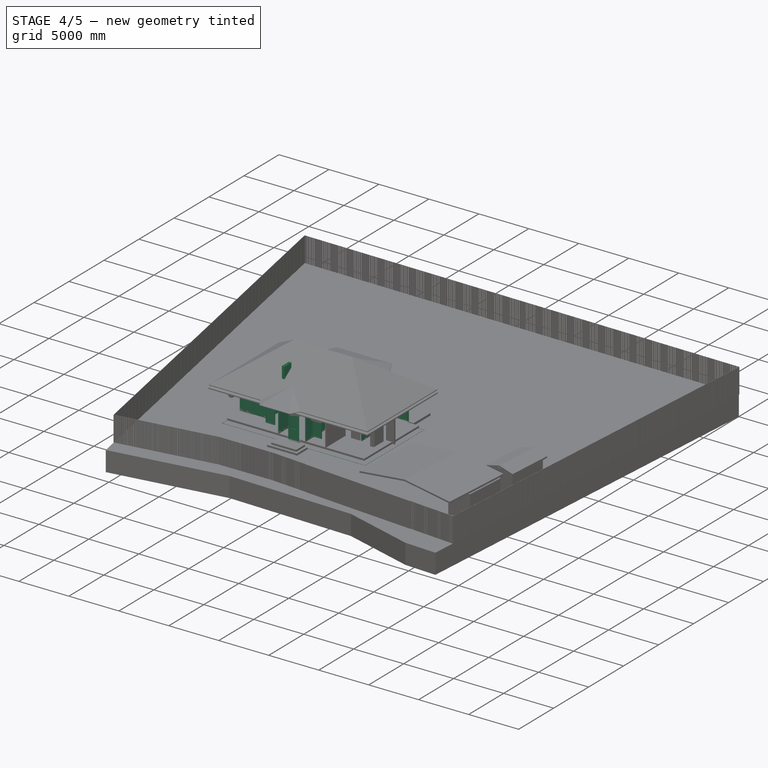
[diagram: stage 4 of 5 — iso view after this stage's code; geometry added in this stage tinted green]
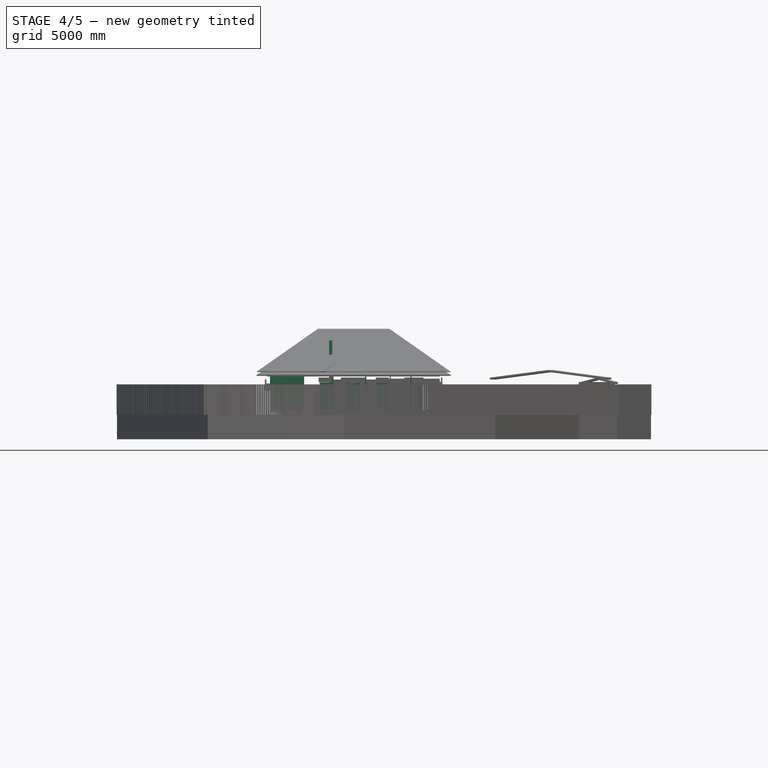
[diagram: stage 4 of 5 — front view after this stage's code; geometry added in this stage tinted green]
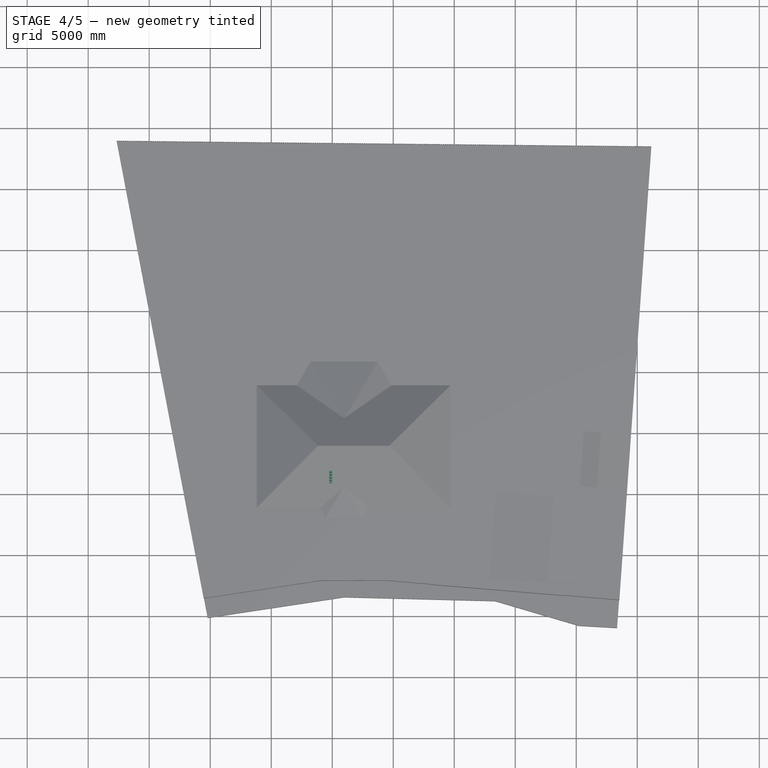
[diagram: stage 4 of 5 — top view after this stage's code; geometry added in this stage tinted green]
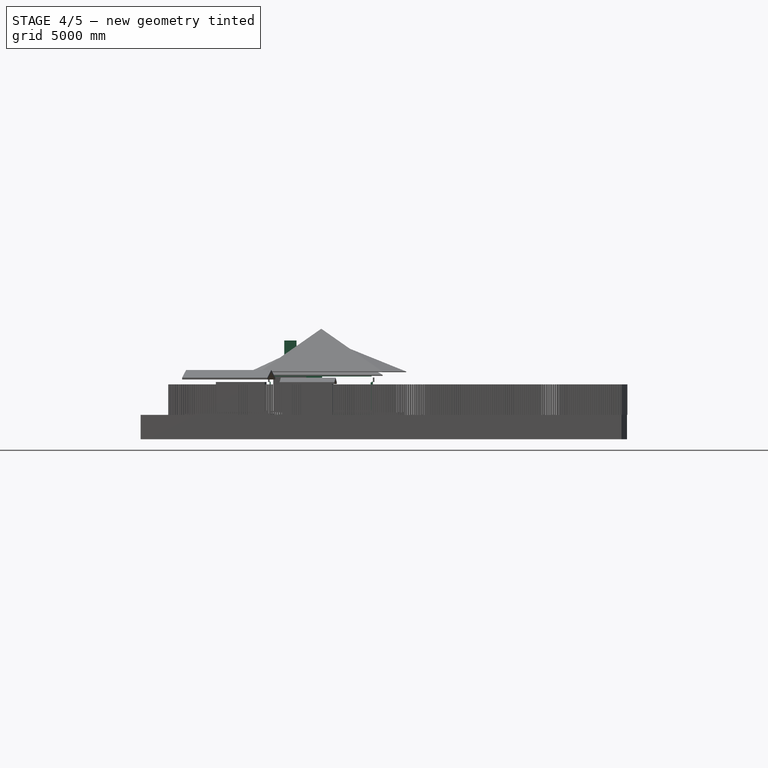
[diagram: stage 4 of 5 — right view after this stage's code; geometry added in this stage tinted green]
FEATURE [Part::FeaturePython] Structure026  label="Проём-Д70-002"  # Arch/BIM object (typed FeaturePython)
  Base = -> Rectangle2164
  FaceMaker = 0
  Height = 2180
  HorizontalArea = 90000
  IfcRole = 0
  Length = 0
  MoveWithHost = false
  Nodes = (2) [(-1750,1750,0),(-1750,1750,2180)]
  NodesOffset = 0
  Normal = (0,0,0)
  PerimeterLength = 2000
  Placement = pos=(0,0,-180) rot=(0,0,1;0rad)
  VerticalArea = 4360000
  Width = 100
FEATURE [Part::FeaturePython] Wall017  label="перегородка 034"  # Arch/BIM object (typed FeaturePython)
  Align = 1
  Base = -> Line1056
  BlockHeight = 250
  BlockLength = 625
  CountBroken = 11
  CountEntire = 44
  Face = 0
  Height = 2750
  HorizontalArea = 250000
  IfcRole = 156
  Joint = 0
  Length = 2800
  MakeBlocks = true
  MoveWithHost = false
  Normal = (0,0,0)
  OffsetFirst = 0
  OffsetSecond = 300
  PerimeterLength = 5200
  VerticalArea = 1.56e+07
  Width = 100
FEATURE [Part::FeaturePython] Wall018  label="перегородка 033"  # Arch/BIM object (typed FeaturePython)
  Align = 1
  Base = -> Line1058
  BlockHeight = 250
  BlockLength = 625
  CountBroken = 33
  CountEntire = 24
  Face = 0
  Height = 2750
  HorizontalArea = 290000
  IfcRole = 156
  Joint = 0
  Length = 2800
  MakeBlocks = true
  MoveWithHost = false
  Normal = (0,0,0)
  OffsetFirst = 25
  OffsetSecond = 300
  PerimeterLength = 6000
  Subtractions = -> [Structure026]
  VerticalArea = 13950000
  Width = 100
FEATURE [Part::FeaturePython] Wall019  label="перегородка 029"  # Arch/BIM object (typed FeaturePython)
  Align = 1
  Base = -> Line1061
  BlockHeight = 250
  BlockLength = 625
  CountBroken = 16
  CountEntire = 17
  Face = 0
  Height = 2750
  HorizontalArea = 140000
  IfcRole = 156
  Joint = 0
  Length = 1300
  MakeBlocks = true
  MoveWithHost = false
  Normal = (0,0,0)
  OffsetFirst = 0
  OffsetSecond = 300
  PerimeterLength = 3000
  VerticalArea = 9e+06
  Width = 100
FEATURE [Part::FeaturePython] Wall020  label="перегородка 035"  # Arch/BIM object (typed FeaturePython)
  Align = 1
  Base = -> Line1059
  BlockHeight = 250
  BlockLength = 625
  CountBroken = 11
  CountEntire = 44
  Face = 0
  Height = 2750
  HorizontalArea = 120000
  IfcRole = 156
  Joint = 0
  Length = 2800
  MakeBlocks = true
  MoveWithHost = false
  Normal = (0,0,0)
  OffsetFirst = 0
  OffsetSecond = 300
  PerimeterLength = 2600
  VerticalArea = 7800000
  Width = 100
FEATURE [Part::Part2DObjectPython] Rectangle2259  label="контур фундамента"  # Draft 2D object (typed FeaturePython)
  ChamferSize = 0
  Columns = 1
  FilletRadius = 0
  Height = 8700
  Length = 14550
  MakeFace = false
  Placement = pos=(-520,-520,0) rot=(0,0,1;0rad)
  Rows = 1
FEATURE [Sketcher::SketchObject] Sketch231  label="Профиль ПНО 120-8"
  Placement = pos=(0,0,0) rot=(1,0,0;1.5708rad)
  sketch-geometry (19):
    g0: LineSegment StartX=0 StartY=0 StartZ=0 EndX=1190 EndY=0 EndZ=0
    g1: LineSegment StartX=1190 StartY=0 StartZ=0 EndX=1190 EndY=160 EndZ=0
    g2: LineSegment StartX=1190 StartY=160 StartZ=0 EndX=0 EndY=160 EndZ=0
    g3: LineSegment StartX=0 StartY=160 StartZ=0 EndX=0 EndY=0 EndZ=0
    g4: Circle CenterX=100 CenterY=80 CenterZ=0 NormalX=0 NormalY=0 NormalZ=1 AngleXU=0 Radius=50
    g5: Circle CenterX=240 CenterY=80 CenterZ=0 NormalX=0 NormalY=0 NormalZ=1 AngleXU=0 Radius=50
    g6: LineSegment [constr] StartX=100 StartY=80 StartZ=0 EndX=240 EndY=80 EndZ=0
    g7: Circle CenterX=380 CenterY=80 CenterZ=0 NormalX=0 NormalY=0 NormalZ=1 AngleXU=0 Radius=50
    g8: LineSegment [constr] StartX=240 StartY=80 StartZ=0 EndX=380 EndY=80 EndZ=0
    g9: Circle CenterX=520 CenterY=80 CenterZ=0 NormalX=0 NormalY=0 NormalZ=1 AngleXU=0 Radius=50
    g10: LineSegment [constr] StartX=380 StartY=80 StartZ=0 EndX=520 EndY=80 EndZ=0
    g11: Circle CenterX=660 CenterY=80 CenterZ=0 NormalX=0 NormalY=0 NormalZ=1 AngleXU=0 Radius=50
    g12: LineSegment [constr] StartX=520 StartY=80 StartZ=0 EndX=660 EndY=80 EndZ=0
    g13: Circle CenterX=800 CenterY=80 CenterZ=0 NormalX=0 NormalY=0 NormalZ=1 AngleXU=0 Radius=50
    g14: LineSegment [constr] StartX=660 StartY=80 StartZ=0 EndX=800 EndY=80 EndZ=0
    g15: Circle CenterX=940 CenterY=80 CenterZ=0 NormalX=0 NormalY=0 NormalZ=1 AngleXU=0 Radius=50
    g16: LineSegment [constr] StartX=800 StartY=80 StartZ=0 EndX=940 EndY=80 EndZ=0
    g17: Circle CenterX=1080 CenterY=80 CenterZ=0 NormalX=0 NormalY=0 NormalZ=1 AngleXU=0 Radius=50
    g18: LineSegment [constr] StartX=940 StartY=80 StartZ=0 EndX=1080 EndY=80 EndZ=0
  constraints (49):
    c: Coincident(g0,g1)
    c: Coincident(g1,g2)
    c: Coincident(g2,g3)
    c: Coincident(g3,g0)
    c: Horizontal(g0)
    c: Horizontal(g2)
    c: Vertical(g1)
    c: Vertical(g3)
    c: Coincident(g0,g-1)
    c: DistanceY(g3,g3) = 160
    c: DistanceX(g2,g2) = 1190
    c: Diameter(g4) = 100
    c: DistanceY(g4,g2) = 80
    c: Diameter(g5) = 100
    c: Coincident(g4,g6)
    c: Coincident(g5,g6)
    c: Distance(g6) = 140
    c: Angle(g6) = 0
    c: Diameter(g7) = 100
    c: Coincident(g5,g8)
    c: Coincident(g7,g8)
    c: Equal(g6,g8)
    c: Parallel(g8,g6)
    c: Diameter(g9) = 100
    c: Coincident(g7,g10)
    c: Coincident(g9,g10)
    c: Equal(g6,g10)
    c: Parallel(g10,g6)
    c: Diameter(g11) = 100
    c: Coincident(g9,g12)
    c: Coincident(g11,g12)
    c: Equal(g6,g12)
    c: Parallel(g12,g6)
    c: Diameter(g13) = 100
    c: Coincident(g11,g14)
    c: Coincident(g13,g14)
    c: Equal(g6,g14)
    c: Parallel(g14,g6)
    c: Diameter(g15) = 100
    c: Coincident(g13,g16)
    c: Coincident(g15,g16)
    c: Equal(g6,g16)
    c: Parallel(g16,g6)
    c: Diameter(g17) = 100
    c: Coincident(g15,g18)
    c: Coincident(g17,g18)
    c: Equal(g6,g18)
    c: Parallel(g18,g6)
    c: DistanceX(g2,g4) = 100
FEATURE [Part::Extrusion] Extrude001  label="ПНО 42-12-8-001"
  Base = -> Sketch231
  Dir = (0,1,0)
  DirMode = 0
  FaceMakerClass = Part::FaceMakerBullseye
  LengthFwd = 4180
  LengthRev = 0
  Placement = pos=(-90,-190,2750) rot=(0,0,1;0rad)
  Solid = true
  Symmetric = false
FEATURE [Part::FeaturePython] Array006  # Draft array (typed FeaturePython)
  Angle = 360
  ArrayType = 0
  Axis = (0,0,1)
  Base = -> Extrude001
  Center = (0,0,0)
  Fuse = false
  IntervalAxis = (0,0,0)
  IntervalX = (1200,0,0)
  IntervalY = (0,1,0)
  IntervalZ = (0,0,1)
  NumberPolar = 1
  NumberX = 4
  NumberY = 1
  NumberZ = 1
FEATURE [Part::FeaturePython] Array008  # Draft array (typed FeaturePython)
  Angle = 360
  ArrayType = 0
  Axis = (0,0,1)
  Base = -> Extrude001
  Center = (0,0,0)
  Fuse = false
  IntervalAxis = (0,0,0)
  IntervalX = (1200,0,0)
  IntervalY = (0,1,0)
  IntervalZ = (0,0,1)
  NumberPolar = 1
  NumberX = 3
  NumberY = 1
  NumberZ = 1
  Placement = pos=(10100,7.76e-13,0) rot=(0,0,1;0rad)
FEATURE [Part::Part2DObjectPython] Rectangle2265  label="внутренний_контур"  # Draft 2D object (typed FeaturePython)
  ChamferSize = 0
  Columns = 1
  FilletRadius = 0
  Height = 7860
  Length = 13710
  MakeFace = false
  Placement = pos=(-100,-100,0) rot=(0,0,1;0rad)
  Rows = 1
FEATURE [Part::FeaturePython] Wall027  label="ГБ 250мм ряд под мауэрлат"  # Arch/BIM object (typed FeaturePython)
  Align = 0
  Base = -> Rectangle2265
  BlockHeight = 250
  BlockLength = 625
  CountBroken = 69
  CountEntire = 0
  Face = 0
  Height = 200
  HorizontalArea = 1984000
  IfcRole = 156
  Joint = 0
  Length = 43140
  MakeBlocks = true
  MoveWithHost = false
  Normal = (0,0,0)
  Offset = -50
  OffsetFirst = 200
  OffsetSecond = 0
  PerimeterLength = 39880
  Placement = pos=(0,0,2910) rot=(0,0,1;0rad)
  VerticalArea = 19840000
  Width = 250
FEATURE [App::GeometryPython] BuildingPart009  label="Колонна_002"  # Arch/BIM object (typed FeaturePython)
  Area = 0
  Group = -> [Wall032,Wall033,Wall034,Wall035]
  Height = 0
  IfcRole = 0
  LevelOffset = 0
FEATURE [Sketcher::SketchObject] Sketch232
  Placement = pos=(12370,8060,-180) rot=(0,0.707107,0.707107;3.14159rad)
  sketch-geometry (24):
    g0: LineSegment StartX=0 StartY=0 StartZ=0 EndX=1350 EndY=0 EndZ=0
    g1: LineSegment StartX=1350 StartY=0 StartZ=0 EndX=1350 EndY=2360 EndZ=0
    g2: LineSegment StartX=1350 StartY=2360 StartZ=0 EndX=0 EndY=2360 EndZ=0
    g3: LineSegment StartX=0 StartY=2360 StartZ=0 EndX=0 EndY=0 EndZ=0
    g4: LineSegment StartX=50 StartY=50 StartZ=0 EndX=1300 EndY=50 EndZ=0
    g5: LineSegment StartX=1300 StartY=50 StartZ=0 EndX=1300 EndY=2310 EndZ=0
    g6: LineSegment StartX=1300 StartY=2310 StartZ=0 EndX=50 EndY=2310 EndZ=0
    g7: LineSegment StartX=50 StartY=2310 StartZ=0 EndX=50 EndY=50 EndZ=0
    g8: LineSegment StartX=58 StartY=58 StartZ=0 EndX=671 EndY=58 EndZ=0
    g9: LineSegment StartX=671 StartY=58 StartZ=0 EndX=671 EndY=2302 EndZ=0
    g10: LineSegment StartX=671 StartY=2302 StartZ=0 EndX=58 EndY=2302 EndZ=0
    g11: LineSegment StartX=58 StartY=2302 StartZ=0 EndX=58 EndY=58 EndZ=0
    g12: LineSegment StartX=108 StartY=108 StartZ=0 EndX=621 EndY=108 EndZ=0
    g13: LineSegment StartX=621 StartY=108 StartZ=0 EndX=621 EndY=2252 EndZ=0
    g14: LineSegment StartX=621 StartY=2252 StartZ=0 EndX=108 EndY=2252 EndZ=0
    g15: LineSegment StartX=108 StartY=2252 StartZ=0 EndX=108 EndY=108 EndZ=0
    g16: LineSegment StartX=679 StartY=58 StartZ=0 EndX=1292 EndY=58 EndZ=0
    g17: LineSegment StartX=1292 StartY=58 StartZ=0 EndX=1292 EndY=2302 EndZ=0
    g18: LineSegment StartX=1292 StartY=2302 StartZ=0 EndX=679 EndY=2302 EndZ=0
    g19: LineSegment StartX=679 StartY=2302 StartZ=0 EndX=679 EndY=58 EndZ=0
    g20: LineSegment StartX=729 StartY=108 StartZ=0 EndX=1242 EndY=108 EndZ=0
    g21: LineSegment StartX=1242 StartY=108 StartZ=0 EndX=1242 EndY=2252 EndZ=0
    g22: LineSegment StartX=1242 StartY=2252 StartZ=0 EndX=729 EndY=2252 EndZ=0
    g23: LineSegment StartX=729 StartY=2252 StartZ=0 EndX=729 EndY=108 EndZ=0
  constraints (71):
    c: Coincident(g0,g1)
    c: Coincident(g1,g2)
    c: Coincident(g2,g3)
    c: Coincident(g3,g0)
    c: Horizontal(g0)
    c: Horizontal(g2)
    c: Vertical(g1)
    c: Vertical(g3)
    c: Coincident(g4,g5)
    c: Coincident(g5,g6)
    c: Coincident(g6,g7)
    c: Coincident(g7,g4)
    c: Horizontal(g4)
    c: Horizontal(g6)
    c: Vertical(g5)
    c: Vertical(g7)
    c: DistanceY(g1) = 2360  'Height'
    c: DistanceX(g0) = 1350  'Width'
    c: DistanceY(g6,g2) = 50  'Frame1'
    c: DistanceX(g2,g6) = 50  'Frame2'
    c: DistanceX(g4,g0) = 50  'Frame3'
    c: DistanceY(g0,g4) = 50  'Frame4'
    c: Coincident(g0,g-1)
    c: Coincident(g8,g9)
    c: Coincident(g9,g10)
    c: Coincident(g10,g11)
    c: Coincident(g11,g8)
    c: Horizontal(g8)
    c: Horizontal(g10)
    c: Vertical(g9)
    c: Vertical(g11)
    c: Coincident(g12,g13)
    c: Coincident(g13,g14)
    c: Coincident(g14,g15)
    c: Coincident(g15,g12)
    c: Horizontal(g12)
    c: Horizontal(g14)
    c: Vertical(g13)
    c: Vertical(g15)
    c: Coincident(g16,g17)
    c: Coincident(g17,g18)
    c: Coincident(g18,g19)
    c: Coincident(g19,g16)
    c: Horizontal(g16)
    c: Horizontal(g18)
    c: Vertical(g17)
    c: Vertical(g19)
    c: Coincident(g20,g21)
    c: Coincident(g21,g22)
    c: Coincident(g22,g23)
    c: Coincident(g23,g20)
    c: Horizontal(g20)
    c: Horizontal(g22)
    c: Vertical(g21)
    c: Vertical(g23)
    c: DistanceY(g8,g12) = 50  'Frame5'
    c: DistanceX(g8,g12) = 50  'Frame6'
    c: DistanceX(g21,g17) = 50  'Frame7'
    c: DistanceY(g21,g17) = 50  'Frame8'
    c: DistanceX(g16,g20) = 50  'Frame9'
    c: DistanceX(g14,g10) = 50  'Frame10'
    c: Equal(g22,g14)
    c: DistanceY(g8,g16) = 0
    c: DistanceY(g10,g18) = 0
    c: DistanceX(g4,g8) = 8
    c: DistanceY(g4,g8) = 8
    c: DistanceX(g6,g18) = -8
    c: DistanceY(g6,g18) = -8
    c: DistanceX(g9,g19) = 8
    c: PointOnObject(g13,g22)
    c: PointOnObject(g20,g12)
FEATURE [Part::FeaturePython] Window  label="Д-135-001"  # Arch/BIM object (typed FeaturePython)
  Area = 3186000
  Base = -> Sketch232
  Frame = 50
  Height = 2360
  HoleDepth = 0
  HoleWire = 0
  HorizontalArea = 0
  IfcRole = 160
  LouvreSpacing = 0
  LouvreWidth = 0
  MoveWithHost = true
  Normal = (0,-1,2e-16)
  Opening = 0
  PerimeterLength = 0
  Placement = pos=(0,0,140) rot=(0,0,1;0rad)
  Preset = 3
  SymbolElevation = false
  SymbolPlan = false
  VerticalArea = 0
  Width = 1350
  WindowParts = OuterFrame | Frame | Wire0,Wire1 | 50.0+V | 0.00+V | LeftFrame | Frame | Wire2,Wire3 | 100.0 | 80.0+V | LeftGlass | Glass panel | Wire3 | 10.0 | 130.0+V | RightFrame | Frame | Wire4,Wire5 | 100.0 | 80.0+V | RightGlass | Glass panel | Wire5 | 10.0 | 130.0+V
FEATURE [Part::FeaturePython] Window002  label="Д-135-008"  # Arch/BIM object (typed FeaturePython)
  Area = 3186000
  Base = -> Sketch232
  Frame = 50
  Height = 2360
  HoleDepth = 0
  HoleWire = 0
  HorizontalArea = 0
  IfcRole = 160
  LouvreSpacing = 0
  LouvreWidth = 0
  MoveWithHost = true
  Normal = (0,-1,2e-16)
  Opening = 0
  PerimeterLength = 0
  Placement = pos=(-9880,0,140) rot=(0,0,1;0rad)
  Preset = 3
  SymbolElevation = false
  SymbolPlan = false
  VerticalArea = 0
  Width = 1350
  WindowParts = <same value as first occurrence — deduplicated (x3 in doc)>
FEATURE [Sketcher::SketchObject] Sketch233
  Placement = pos=(13910,750,820) rot=(0.57735,0.57735,0.57735;2.0944rad)
  sketch-geometry (24):
    g0: LineSegment StartX=0 StartY=0 StartZ=0 EndX=1350 EndY=0 EndZ=0
    g1: LineSegment StartX=1350 StartY=0 StartZ=0 EndX=1350 EndY=1500 EndZ=0
    g2: LineSegment StartX=1350 StartY=1500 StartZ=0 EndX=0 EndY=1500 EndZ=0
    g3: LineSegment StartX=0 StartY=1500 StartZ=0 EndX=0 EndY=0 EndZ=0
    g4: LineSegment StartX=50 StartY=50 StartZ=0 EndX=1300 EndY=50 EndZ=0
    g5: LineSegment StartX=1300 StartY=50 StartZ=0 EndX=1300 EndY=1450 EndZ=0
    g6: LineSegment StartX=1300 StartY=1450 StartZ=0 EndX=50 EndY=1450 EndZ=0
    g7: LineSegment StartX=50 StartY=1450 StartZ=0 EndX=50 EndY=50 EndZ=0
    g8: LineSegment StartX=55 StartY=55 StartZ=0 EndX=672.5 EndY=55 EndZ=0
    g9: LineSegment StartX=672.5 StartY=55 StartZ=0 EndX=672.5 EndY=1445 EndZ=0
    g10: LineSegment StartX=672.5 StartY=1445 StartZ=0 EndX=55 EndY=1445 EndZ=0
    g11: LineSegment StartX=55 StartY=1445 StartZ=0 EndX=55 EndY=55 EndZ=0
    g12: LineSegment StartX=105 StartY=105 StartZ=0 EndX=622.5 EndY=105 EndZ=0
    g13: LineSegment StartX=622.5 StartY=105 StartZ=0 EndX=622.5 EndY=1395 EndZ=0
    g14: LineSegment StartX=622.5 StartY=1395 StartZ=0 EndX=105 EndY=1395 EndZ=0
    g15: LineSegment StartX=105 StartY=1395 StartZ=0 EndX=105 EndY=105 EndZ=0
    g16: LineSegment StartX=677.5 StartY=55 StartZ=0 EndX=1295 EndY=55 EndZ=0
    g17: LineSegment StartX=1295 StartY=55 StartZ=0 EndX=1295 EndY=1445 EndZ=0
    g18: LineSegment StartX=1295 StartY=1445 StartZ=0 EndX=677.5 EndY=1445 EndZ=0
    g19: LineSegment StartX=677.5 StartY=1445 StartZ=0 EndX=677.5 EndY=55 EndZ=0
    g20: LineSegment StartX=727.5 StartY=105 StartZ=0 EndX=1245 EndY=105 EndZ=0
    g21: LineSegment StartX=1245 StartY=105 StartZ=0 EndX=1245 EndY=1395 EndZ=0
    g22: LineSegment StartX=1245 StartY=1395 StartZ=0 EndX=727.5 EndY=1395 EndZ=0
    g23: LineSegment StartX=727.5 StartY=1395 StartZ=0 EndX=727.5 EndY=105 EndZ=0
  constraints (71):
    c: Coincident(g0,g1)
    c: Coincident(g1,g2)
    c: Coincident(g2,g3)
    c: Coincident(g3,g0)
    c: Horizontal(g0)
    c: Horizontal(g2)
    c: Vertical(g1)
    c: Vertical(g3)
    c: Coincident(g4,g5)
    c: Coincident(g5,g6)
    c: Coincident(g6,g7)
    c: Coincident(g7,g4)
    c: Horizontal(g4)
    c: Horizontal(g6)
    c: Vertical(g5)
    c: Vertical(g7)
    c: DistanceY(g1) = 1500  'Height'
    c: DistanceX(g0) = 1350  'Width'
    c: DistanceY(g6,g2) = 50  'Frame1'
    c: DistanceX(g2,g6) = 50  'Frame2'
    c: DistanceX(g4,g0) = 50  'Frame3'
    c: DistanceY(g0,g4) = 50  'Frame4'
    c: Coincident(g0,g-1)
    c: Coincident(g8,g9)
    c: Coincident(g9,g10)
    c: Coincident(g10,g11)
    c: Coincident(g11,g8)
    c: Horizontal(g8)
    c: Horizontal(g10)
    c: Vertical(g9)
    c: Vertical(g11)
    c: Coincident(g12,g13)
    c: Coincident(g13,g14)
    c: Coincident(g14,g15)
    c: Coincident(g15,g12)
    c: Horizontal(g12)
    c: Horizontal(g14)
    c: Vertical(g13)
    c: Vertical(g15)
    c: Coincident(g16,g17)
    c: Coincident(g17,g18)
    c: Coincident(g18,g19)
    c: Coincident(g19,g16)
    c: Horizontal(g16)
    c: Horizontal(g18)
    c: Vertical(g17)
    c: Vertical(g19)
    c: Coincident(g20,g21)
    c: Coincident(g21,g22)
    c: Coincident(g22,g23)
    c: Coincident(g23,g20)
    c: Horizontal(g20)
    c: Horizontal(g22)
    c: Vertical(g21)
    c: Vertical(g23)
    c: DistanceY(g8,g12) = 50  'Frame5'
    c: DistanceX(g8,g12) = 50  'Frame6'
    c: DistanceX(g21,g17) = 50  'Frame7'
    c: DistanceY(g21,g17) = 50  'Frame8'
    c: DistanceX(g16,g20) = 50  'Frame9'
    c: DistanceX(g14,g10) = 50  'Frame10'
    c: Equal(g22,g14)
    c: DistanceY(g8,g16) = 0
    c: DistanceY(g10,g18) = 0
    c: DistanceX(g4,g8) = 5
    c: DistanceY(g4,g8) = 5
    c: DistanceX(g6,g18) = -5
    c: DistanceY(g6,g18) = -5
    c: DistanceX(g9,g19) = 5
    c: PointOnObject(g13,g22)
    c: PointOnObject(g20,g12)
FEATURE [Part::FeaturePython] Window003  label="ОК-135-001"  # Arch/BIM object (typed FeaturePython)
  Area = 2025000
  Base = -> Sketch233
  Frame = 50
  Height = 1500
  HoleDepth = 0
  HoleWire = 0
  HorizontalArea = 0
  IfcRole = 160
  LouvreSpacing = 0
  LouvreWidth = 0
  MoveWithHost = true
  Normal = (-1,0,0)
  Opening = 0
  PerimeterLength = 0
  Preset = 3
  SymbolElevation = false
  SymbolPlan = false
  VerticalArea = 0
  Width = 1350
  WindowParts = OuterFrame | Frame | Wire0,Wire1 | 30.0+V | 0.00+V | LeftFrame | Frame | Wire2,Wire3 | 50.0 | 0.0+V | LeftGlass | Glass panel | Wire3 | 5.0 | 25.0+V | RightFrame | Frame | Wire4,Wire5 | 50.0 | 0.0+V | RightGlass | Glass panel | Wire5 | 5.0 | 25.0+V
FEATURE [Sketcher::SketchObject] Sketch235
  Placement = pos=(3965,-400,820) rot=(1,0,0;1.5708rad)
  sketch-geometry (16):
    g0: LineSegment StartX=0 StartY=0 StartZ=0 EndX=900 EndY=0 EndZ=0
    g1: LineSegment StartX=900 StartY=0 StartZ=0 EndX=900 EndY=1500 EndZ=0
    g2: LineSegment StartX=900 StartY=1500 StartZ=0 EndX=0 EndY=1500 EndZ=0
    g3: LineSegment StartX=0 StartY=1500 StartZ=0 EndX=0 EndY=0 EndZ=0
    g4: LineSegment StartX=50 StartY=50 StartZ=0 EndX=850 EndY=50 EndZ=0
    g5: LineSegment StartX=850 StartY=50 StartZ=0 EndX=850 EndY=1450 EndZ=0
    g6: LineSegment StartX=850 StartY=1450 StartZ=0 EndX=50 EndY=1450 EndZ=0
    g7: LineSegment StartX=50 StartY=1450 StartZ=0 EndX=50 EndY=50 EndZ=0
    g8: LineSegment StartX=55 StartY=55 StartZ=0 EndX=845 EndY=55 EndZ=0
    g9: LineSegment StartX=845 StartY=55 StartZ=0 EndX=845 EndY=1445 EndZ=0
    g10: LineSegment StartX=845 StartY=1445 StartZ=0 EndX=55 EndY=1445 EndZ=0
    g11: LineSegment StartX=55 StartY=1445 StartZ=0 EndX=55 EndY=55 EndZ=0
    g12: LineSegment StartX=105 StartY=105 StartZ=0 EndX=795 EndY=105 EndZ=0
    g13: LineSegment StartX=795 StartY=105 StartZ=0 EndX=795 EndY=1395 EndZ=0
    g14: LineSegment StartX=795 StartY=1395 StartZ=0 EndX=105 EndY=1395 EndZ=0
    g15: LineSegment StartX=105 StartY=1395 StartZ=0 EndX=105 EndY=105 EndZ=0
  constraints (47):
    c: Coincident(g0,g1)
    c: Coincident(g1,g2)
    c: Coincident(g2,g3)
    c: Coincident(g3,g0)
    c: Horizontal(g0)
    c: Horizontal(g2)
    c: Vertical(g1)
    c: Vertical(g3)
    c: Coincident(g4,g5)
    c: Coincident(g5,g6)
    c: Coincident(g6,g7)
    c: Coincident(g7,g4)
    c: Horizontal(g4)
    c: Horizontal(g6)
    c: Vertical(g5)
    c: Vertical(g7)
    c: DistanceY(g1) = 1500  'Height'
    c: DistanceX(g0) = 900  'Width'
    c: DistanceY(g6,g2) = 50  'Frame1'
    c: DistanceX(g2,g6) = 50  'Frame2'
    c: DistanceX(g4,g0) = 50  'Frame3'
    c: DistanceY(g0,g4) = 50  'Frame4'
    c: Coincident(g0,g-1)
    c: Coincident(g8,g9)
    c: Coincident(g9,g10)
    c: Coincident(g10,g11)
    c: Coincident(g11,g8)
    c: Horizontal(g8)
    c: Horizontal(g10)
    c: Vertical(g9)
    c: Vertical(g11)
    c: Coincident(g12,g13)
    c: Coincident(g13,g14)
    c: Coincident(g14,g15)
    c: Coincident(g15,g12)
    c: Horizontal(g12)
    c: Horizontal(g14)
    c: Vertical(g13)
    c: Vertical(g15)
    c: DistanceX(g8,g12) = 50  'Frame5'
    c: DistanceY(g8,g12) = 50  'Frame6'
    c: DistanceX(g14,g10) = 50  'Frame8'
    c: DistanceY(g14,g10) = 50  'Frame7'
    c: DistanceX(g4,g8) = 5
    c: DistanceY(g4,g8) = 5
    c: DistanceX(g10,g6) = 5
    c: DistanceY(g10,g6) = 5
FEATURE [Part::FeaturePython] Window007  label="ОК-90-008"  # Arch/BIM object (typed FeaturePython)
  Area = 1350000
  Base = -> Sketch235
  Frame = 50
  Height = 1500
  HoleDepth = 0
  HoleWire = 0
  HorizontalArea = 0
  IfcRole = 160
  LouvreSpacing = 0
  LouvreWidth = 0
  MoveWithHost = true
  Normal = (0,1,-2e-16)
  Opening = 0
  PerimeterLength = 0
  Placement = pos=(0,-1.14e-13,0) rot=(0,0,1;0rad)
  Preset = 2
  SymbolElevation = false
  SymbolPlan = false
  VerticalArea = 0
  Width = 900
  WindowParts = OuterFrame | Frame | Wire0,Wire1 | 30.0+V | 0.00+V | InnerFrame | Frame | Wire2,Wire3 | 50.0 | 0.0+V | InnerGlass | Glass panel | Wire3 | 5.0 | 25.0+V
FEATURE [Part::FeaturePython] Window008  label="ОК-90-009"  # Arch/BIM object (typed FeaturePython)
  Area = 1350000
  Base = -> Sketch235
  Frame = 50
  Height = 1500
  HoleDepth = 0
  HoleWire = 0
  HorizontalArea = 0
  IfcRole = 160
  LouvreSpacing = 0
  LouvreWidth = 0
  MoveWithHost = true
  Normal = (0,1,-2e-16)
  Opening = 0
  PerimeterLength = 0
  Placement = pos=(4680,-5.68e-14,0) rot=(0,0,1;0rad)
  Preset = 2
  SymbolElevation = false
  SymbolPlan = false
  VerticalArea = 0
  Width = 900
  WindowParts = OuterFrame | Frame | Wire0,Wire1 | 30.0+V | 0.00+V | InnerFrame | Frame | Wire2,Wire3 | 50.0 | 0.0+V | InnerGlass | Glass panel | Wire3 | 5.0 | 25.0+V
FEATURE [Sketcher::SketchObject] Sketch236
  Placement = pos=(6230,-400,-180) rot=(1,0,0;1.5708rad)
  sketch-geometry (16):
    g0: LineSegment StartX=0 StartY=0 StartZ=0 EndX=1050 EndY=0 EndZ=0
    g1: LineSegment StartX=1050 StartY=0 StartZ=0 EndX=1050 EndY=2335 EndZ=0
    g2: LineSegment StartX=1050 StartY=2335 StartZ=0 EndX=0 EndY=2335 EndZ=0
    g3: LineSegment StartX=0 StartY=2335 StartZ=0 EndX=0 EndY=0 EndZ=0
    g4: LineSegment StartX=50 StartY=0 StartZ=0 EndX=1000 EndY=0 EndZ=0
    g5: LineSegment StartX=1000 StartY=0 StartZ=0 EndX=1000 EndY=2285 EndZ=0
    g6: LineSegment StartX=1000 StartY=2285 StartZ=0 EndX=50 EndY=2285 EndZ=0
    g7: LineSegment StartX=50 StartY=2285 StartZ=0 EndX=50 EndY=0 EndZ=0
    g8: LineSegment StartX=55 StartY=5 StartZ=0 EndX=995 EndY=5 EndZ=0
    g9: LineSegment StartX=995 StartY=5 StartZ=0 EndX=995 EndY=2280 EndZ=0
    g10: LineSegment StartX=995 StartY=2280 StartZ=0 EndX=55 EndY=2280 EndZ=0
    g11: LineSegment StartX=55 StartY=2280 StartZ=0 EndX=55 EndY=5 EndZ=0
    g12: LineSegment StartX=205 StartY=1005 StartZ=0 EndX=845 EndY=1005 EndZ=0
    g13: LineSegment StartX=845 StartY=1005 StartZ=0 EndX=845 EndY=2130 EndZ=0
    g14: LineSegment StartX=845 StartY=2130 StartZ=0 EndX=205 EndY=2130 EndZ=0
    g15: LineSegment StartX=205 StartY=2130 StartZ=0 EndX=205 EndY=1005 EndZ=0
  constraints (47):
    c: Coincident(g0,g1)
    c: Coincident(g1,g2)
    c: Coincident(g2,g3)
    c: Coincident(g3,g0)
    c: Horizontal(g0)
    c: Horizontal(g2)
    c: Vertical(g1)
    c: Vertical(g3)
    c: Coincident(g4,g5)
    c: Coincident(g5,g6)
    c: Coincident(g6,g7)
    c: Coincident(g7,g4)
    c: Horizontal(g4)
    c: Horizontal(g6)
    c: Vertical(g5)
    c: Vertical(g7)
    c: DistanceY(g1) = 2335  'Height'
    c: DistanceX(g0) = 1050  'Width'
    c: DistanceY(g6,g2) = 50  'Frame1'
    c: DistanceX(g2,g6) = 50  'Frame2'
    c: DistanceX(g4,g0) = 50  'Frame3'
    c: DistanceY(g0,g4) = 0
    c: Coincident(g0,g-1)
    c: Coincident(g8,g9)
    c: Coincident(g9,g10)
    c: Coincident(g10,g11)
    c: Coincident(g11,g8)
    c: Horizontal(g8)
    c: Horizontal(g10)
    c: Vertical(g9)
    c: Vertical(g11)
    c: Coincident(g12,g13)
    c: Coincident(g13,g14)
    c: Coincident(g14,g15)
    c: Coincident(g15,g12)
    c: Horizontal(g12)
    c: Horizontal(g14)
    c: Vertical(g13)
    c: Vertical(g15)
    c: DistanceX(g8,g12) = 150
    c: DistanceY(g8,g12) = 1000
    c: DistanceX(g14,g10) = 150
    c: DistanceY(g14,g10) = 150
    c: DistanceX(g4,g8) = 5
    c: DistanceY(g4,g8) = 5
    c: DistanceX(g10,g6) = 5
    c: DistanceY(g10,g6) = 5
FEATURE [Part::FeaturePython] Window009  label="Д-100-001"  # Arch/BIM object (typed FeaturePython)
  Area = 2451750
  Base = -> Sketch236
  Frame = 50
  Height = 2335
  HoleDepth = 0
  HoleWire = 0
  HorizontalArea = 0
  IfcRole = 42
  LouvreSpacing = 0
  LouvreWidth = 0
  MoveWithHost = true
  Normal = (0,1,-2e-16)
  Opening = 0
  PerimeterLength = 0
  Placement = pos=(0,0,140) rot=(0,0,1;0rad)
  Preset = 7
  SymbolElevation = false
  SymbolPlan = false
  VerticalArea = 0
  Width = 1050
  WindowParts = OuterFrame | Frame | Wire0,Wire1 | 0.0+V | 0.00+V | InnerFrame | Frame | Wire2,Wire3 | 0.00+V | 0.0+V | InnerGlass | Glass panel | Wire3 | 8.0 | 40.0+V
FEATURE [Sketcher::SketchObject] Sketch237
  Placement = pos=(6255,2600,-180) rot=(1,0,0;1.5708rad)
  sketch-geometry (16):
    g0: LineSegment StartX=0 StartY=0 StartZ=0 EndX=1000 EndY=0 EndZ=0
    g1: LineSegment StartX=1000 StartY=0 StartZ=0 EndX=1000 EndY=2000 EndZ=0
    g2: LineSegment StartX=1000 StartY=2000 StartZ=0 EndX=0 EndY=2000 EndZ=0
    g3: LineSegment StartX=0 StartY=2000 StartZ=0 EndX=0 EndY=0 EndZ=0
    g4: LineSegment StartX=50 StartY=2.84e-14 StartZ=0 EndX=950 EndY=2.84e-14 EndZ=0
    g5: LineSegment StartX=950 StartY=2.84e-14 StartZ=0 EndX=950 EndY=1950 EndZ=0
    g6: LineSegment StartX=950 StartY=1950 StartZ=0 EndX=50 EndY=1950 EndZ=0
    g7: LineSegment StartX=50 StartY=1950 StartZ=0 EndX=50 EndY=0 EndZ=0
    g8: LineSegment StartX=55 StartY=5 StartZ=0 EndX=945 EndY=5 EndZ=0
    g9: LineSegment StartX=945 StartY=5 StartZ=0 EndX=945 EndY=1945 EndZ=0
    g10: LineSegment StartX=945 StartY=1945 StartZ=0 EndX=55 EndY=1945 EndZ=0
    g11: LineSegment StartX=55 StartY=1945 StartZ=0 EndX=55 EndY=5 EndZ=0
    g12: LineSegment StartX=205 StartY=1005 StartZ=0 EndX=795 EndY=1005 EndZ=0
    g13: LineSegment StartX=795 StartY=1005 StartZ=0 EndX=795 EndY=1795 EndZ=0
    g14: LineSegment StartX=795 StartY=1795 StartZ=0 EndX=205 EndY=1795 EndZ=0
    g15: LineSegment StartX=205 StartY=1795 StartZ=0 EndX=205 EndY=1005 EndZ=0
  constraints (47):
    c: Coincident(g0,g1)
    c: Coincident(g1,g2)
    c: Coincident(g2,g3)
    c: Coincident(g3,g0)
    c: Horizontal(g0)
    c: Horizontal(g2)
    c: Vertical(g1)
    c: Vertical(g3)
    c: Coincident(g4,g5)
    c: Coincident(g5,g6)
    c: Coincident(g6,g7)
    c: Coincident(g7,g4)
    c: Horizontal(g4)
    c: Horizontal(g6)
    c: Vertical(g5)
    c: Vertical(g7)
    c: DistanceY(g1) = 2000  'Height'
    c: DistanceX(g0) = 1000  'Width'
    c: DistanceY(g6,g2) = 50  'Frame1'
    c: DistanceX(g2,g6) = 50  'Frame2'
    c: DistanceX(g4,g0) = 50  'Frame3'
    c: DistanceY(g0,g4) = 0
    c: Coincident(g0,g-1)
    c: Coincident(g8,g9)
    c: Coincident(g9,g10)
    c: Coincident(g10,g11)
    c: Coincident(g11,g8)
    c: Horizontal(g8)
    c: Horizontal(g10)
    c: Vertical(g9)
    c: Vertical(g11)
    c: Coincident(g12,g13)
    c: Coincident(g13,g14)
    c: Coincident(g14,g15)
    c: Coincident(g15,g12)
    c: Horizontal(g12)
    c: Horizontal(g14)
    c: Vertical(g13)
    c: Vertical(g15)
    c: DistanceX(g8,g12) = 150
    c: DistanceY(g8,g12) = 1000
    c: DistanceX(g14,g10) = 150
    c: DistanceY(g14,g10) = 150
    c: DistanceX(g4,g8) = 5
    c: DistanceY(g4,g8) = 5
    c: DistanceX(g10,g6) = 5
    c: DistanceY(g10,g6) = 5
FEATURE [Part::FeaturePython] Window010  label="Д-100-002"  # Arch/BIM object (typed FeaturePython)
  Area = 2000000
  Base = -> Sketch237
  Frame = 50
  Height = 2000
  HoleDepth = 0
  HoleWire = 0
  HorizontalArea = 0
  IfcRole = 42
  LouvreSpacing = 0
  LouvreWidth = 0
  MoveWithHost = true
  Normal = (0,1,-2e-16)
  Opening = 0
  PerimeterLength = 0
  Placement = pos=(0,0,180) rot=(0,0,1;0rad)
  Preset = 7
  SymbolElevation = false
  SymbolPlan = false
  VerticalArea = 0
  Width = 1000
  WindowParts = OuterFrame | Frame | Wire0,Wire1 | 0.0+V | 0.00+V | InnerFrame | Frame | Wire2,Wire3 | 0.00+V | 0.0+V | InnerGlass | Glass panel | Wire3 | 5.0 | 25.0+V
FEATURE [Sketcher::SketchObject] Sketch238
  Placement = pos=(8700,2600,-180) rot=(1,0,0;1.5708rad)
  sketch-geometry (8):
    g0: LineSegment StartX=0 StartY=-5.68e-14 StartZ=0 EndX=900 EndY=-5.68e-14 EndZ=0
    g1: LineSegment StartX=900 StartY=-5.68e-14 StartZ=0 EndX=900 EndY=2000 EndZ=0
    g2: LineSegment StartX=900 StartY=2000 StartZ=0 EndX=0 EndY=2000 EndZ=0
    g3: LineSegment StartX=0 StartY=2000 StartZ=0 EndX=0 EndY=0 EndZ=0
    g4: LineSegment StartX=50 StartY=0 StartZ=0 EndX=850 EndY=0 EndZ=0
    g5: LineSegment StartX=850 StartY=0 StartZ=0 EndX=850 EndY=1950 EndZ=0
    g6: LineSegment StartX=850 StartY=1950 StartZ=0 EndX=50 EndY=1950 EndZ=0
    g7: LineSegment StartX=50 StartY=1950 StartZ=0 EndX=50 EndY=0 EndZ=0
  constraints (23):
    c: Coincident(g0,g1)
    c: Coincident(g1,g2)
    c: Coincident(g2,g3)
    c: Coincident(g3,g0)
    c: Horizontal(g0)
    c: Horizontal(g2)
    c: Vertical(g1)
    c: Vertical(g3)
    c: Coincident(g4,g5)
    c: Coincident(g5,g6)
    c: Coincident(g6,g7)
    c: Coincident(g7,g4)
    c: Horizontal(g4)
    c: Horizontal(g6)
    c: Vertical(g5)
    c: Vertical(g7)
    c: DistanceY(g1) = 2000  'Height'
    c: DistanceX(g0) = 900  'Width'
    c: DistanceY(g6,g2) = 50  'Frame1'
    c: DistanceX(g2,g6) = 50  'Frame2'
    c: DistanceX(g4,g0) = 50  'Frame3'
    c: DistanceY(g0,g4) = 0
    c: Coincident(g0,g-1)
FEATURE [Part::FeaturePython] Window011  label="Д-90-006"  # Arch/BIM object (typed FeaturePython)
  Area = 1800000
  Base = -> Sketch238
  Frame = 50
  Height = 2000
  HoleDepth = 0
  HoleWire = 0
  HorizontalArea = 0
  IfcRole = 42
  LouvreSpacing = 0
  LouvreWidth = 0
  MoveWithHost = true
  Normal = (0,1,-2e-16)
  Opening = 0
  PerimeterLength = 0
  Placement = pos=(0,0,180) rot=(0,0,1;0rad)
  Preset = 6
  SymbolElevation = false
  SymbolPlan = false
  VerticalArea = 0
  Width = 900
  WindowParts = OuterFrame | Frame | Wire0,Wire1 | 0.0+V | 0.00+V | Door | Solid panel | Wire1 | 50.0 | 0.0+V
FEATURE [Sketcher::SketchObject] Sketch240
  Placement = pos=(1300,1700,-180) rot=(1,0,0;1.5708rad)
  sketch-geometry (8):
    g0: LineSegment StartX=0 StartY=-1.137e-13 StartZ=0 EndX=900 EndY=-1.137e-13 EndZ=0
    g1: LineSegment StartX=900 StartY=-1.137e-13 StartZ=0 EndX=900 EndY=2000 EndZ=0
    g2: LineSegment StartX=900 StartY=2000 StartZ=0 EndX=0 EndY=2000 EndZ=0
    g3: LineSegment StartX=0 StartY=2000 StartZ=0 EndX=0 EndY=0 EndZ=0
    g4: LineSegment StartX=50 StartY=-8.53e-14 StartZ=0 EndX=850 EndY=-8.53e-14 EndZ=0
    g5: LineSegment StartX=850 StartY=-8.53e-14 StartZ=0 EndX=850 EndY=1950 EndZ=0
    g6: LineSegment StartX=850 StartY=1950 StartZ=0 EndX=50 EndY=1950 EndZ=0
    g7: LineSegment StartX=50 StartY=1950 StartZ=0 EndX=50 EndY=0 EndZ=0
  constraints (23):
    c: Coincident(g0,g1)
    c: Coincident(g1,g2)
    c: Coincident(g2,g3)
    c: Coincident(g3,g0)
    c: Horizontal(g0)
    c: Horizontal(g2)
    c: Vertical(g1)
    c: Vertical(g3)
    c: Coincident(g4,g5)
    c: Coincident(g5,g6)
    c: Coincident(g6,g7)
    c: Coincident(g7,g4)
    c: Horizontal(g4)
    c: Horizontal(g6)
    c: Vertical(g5)
    c: Vertical(g7)
    c: DistanceY(g1) = 2000  'Height'
    c: DistanceX(g0) = 900  'Width'
    c: DistanceY(g6,g2) = 50  'Frame1'
    c: DistanceX(g2,g6) = 50  'Frame2'
    c: DistanceX(g4,g0) = 50  'Frame3'
    c: DistanceY(g0,g4) = 0
    c: Coincident(g0,g-1)
FEATURE [Part::FeaturePython] Window013  label="Д-90-002"  # Arch/BIM object (typed FeaturePython)
  Area = 1800000
  Base = -> Sketch240
  Frame = 50
  Height = 2000
  HoleDepth = 0
  HoleWire = 0
  HorizontalArea = 0
  IfcRole = 42
  LouvreSpacing = 0
  LouvreWidth = 0
  MoveWithHost = true
  Normal = (0,1,-2e-16)
  Offset = 50
  Opening = 0
  PerimeterLength = 0
  Placement = pos=(0,0,180) rot=(0,0,1;0rad)
  Preset = 6
  SymbolElevation = false
  SymbolPlan = false
  VerticalArea = 0
  Width = 900
  WindowParts = OuterFrame | Frame | Wire0,Wire1 | 0.0+V | 0.00+V | Door | Solid panel | Wire1 | 50.0 | 0.0+V
FEATURE [Sketcher::SketchObject] Sketch241
  Placement = pos=(2700,2850,-180) rot=(0.57735,0.57735,0.57735;2.0944rad)
  sketch-geometry (8):
    g0: LineSegment StartX=0 StartY=-1.137e-13 StartZ=0 EndX=900 EndY=-1.137e-13 EndZ=0
    g1: LineSegment StartX=900 StartY=-1.137e-13 StartZ=0 EndX=900 EndY=2000 EndZ=0
    g2: LineSegment StartX=900 StartY=2000 StartZ=0 EndX=0 EndY=2000 EndZ=0
    g3: LineSegment StartX=0 StartY=2000 StartZ=0 EndX=0 EndY=0 EndZ=0
    g4: LineSegment StartX=50 StartY=0 StartZ=0 EndX=850 EndY=0 EndZ=0
    g5: LineSegment StartX=850 StartY=0 StartZ=0 EndX=850 EndY=1950 EndZ=0
    g6: LineSegment StartX=850 StartY=1950 StartZ=0 EndX=50 EndY=1950 EndZ=0
    g7: LineSegment StartX=50 StartY=1950 StartZ=0 EndX=50 EndY=0 EndZ=0
  constraints (23):
    c: Coincident(g0,g1)
    c: Coincident(g1,g2)
    c: Coincident(g2,g3)
    c: Coincident(g3,g0)
    c: Horizontal(g0)
    c: Horizontal(g2)
    c: Vertical(g1)
    c: Vertical(g3)
    c: Coincident(g4,g5)
    c: Coincident(g5,g6)
    c: Coincident(g6,g7)
    c: Coincident(g7,g4)
    c: Horizontal(g4)
    c: Horizontal(g6)
    c: Vertical(g5)
    c: Vertical(g7)
    c: DistanceY(g1) = 2000  'Height'
    c: DistanceX(g0) = 900  'Width'
    c: DistanceY(g6,g2) = 50  'Frame1'
    c: DistanceX(g2,g6) = 50  'Frame2'
    c: DistanceX(g4,g0) = 50  'Frame3'
    c: DistanceY(g0,g4) = 0
    c: Coincident(g0,g-1)
FEATURE [Part::FeaturePython] Window015  label="Д-90-003"  # Arch/BIM object (typed FeaturePython)
  Area = 1800000
  Base = -> Sketch241
  Frame = 50
  Height = 2000
  HoleDepth = 0
  HoleWire = 0
  HorizontalArea = 0
  IfcRole = 42
  LouvreSpacing = 0
  LouvreWidth = 0
  MoveWithHost = true
  Normal = (-1,0,0)
  Opening = 0
  PerimeterLength = 0
  Placement = pos=(0,0,180) rot=(0,0,1;0rad)
  Preset = 6
  SymbolElevation = false
  SymbolPlan = false
  VerticalArea = 0
  Width = 900
  WindowParts = OuterFrame | Frame | Wire0,Wire1 | 0.0+V | 0.00+V | Door | Solid panel | Wire1 | 50.0 | 0.0+V
FEATURE [Sketcher::SketchObject] Sketch242
  Placement = pos=(4800,2700,-180) rot=(0,0.707107,0.707107;3.14159rad)
  sketch-geometry (8):
    g0: LineSegment StartX=0 StartY=-1.137e-13 StartZ=0 EndX=900 EndY=-1.137e-13 EndZ=0
    g1: LineSegment StartX=900 StartY=-1.137e-13 StartZ=0 EndX=900 EndY=2000 EndZ=0
    g2: LineSegment StartX=900 StartY=2000 StartZ=0 EndX=0 EndY=2000 EndZ=0
    g3: LineSegment StartX=0 StartY=2000 StartZ=0 EndX=0 EndY=-2.274e-13 EndZ=0
    g4: LineSegment StartX=50 StartY=-8.53e-14 StartZ=0 EndX=850 EndY=-8.53e-14 EndZ=0
    g5: LineSegment StartX=850 StartY=-8.53e-14 StartZ=0 EndX=850 EndY=1950 EndZ=0
    g6: LineSegment StartX=850 StartY=1950 StartZ=0 EndX=50 EndY=1950 EndZ=0
    g7: LineSegment StartX=50 StartY=1950 StartZ=0 EndX=50 EndY=0 EndZ=0
  constraints (23):
    c: Coincident(g0,g1)
    c: Coincident(g1,g2)
    c: Coincident(g2,g3)
    c: Coincident(g3,g0)
    c: Horizontal(g0)
    c: Horizontal(g2)
    c: Vertical(g1)
    c: Vertical(g3)
    c: Coincident(g4,g5)
    c: Coincident(g5,g6)
    c: Coincident(g6,g7)
    c: Coincident(g7,g4)
    c: Horizontal(g4)
    c: Horizontal(g6)
    c: Vertical(g5)
    c: Vertical(g7)
    c: DistanceY(g1) = 2000  'Height'
    c: DistanceX(g0) = 900  'Width'
    c: DistanceY(g6,g2) = 50  'Frame1'
    c: DistanceX(g2,g6) = 50  'Frame2'
    c: DistanceX(g4,g0) = 50  'Frame3'
    c: DistanceY(g0,g4) = 0
    c: Coincident(g0,g-1)
FEATURE [Part::FeaturePython] Window016  label="Д-90-004"  # Arch/BIM object (typed FeaturePython)
  Area = 1800000
  Base = -> Sketch242
  Frame = 50
  Height = 2000
  HoleDepth = 0
  HoleWire = 0
  HorizontalArea = 0
  IfcRole = 42
  LouvreSpacing = 0
  LouvreWidth = 0
  MoveWithHost = true
  Normal = (0,-1,2e-16)
  Opening = 0
  PerimeterLength = 0
  Placement = pos=(0,0,180) rot=(0,0,1;0rad)
  Preset = 6
  SymbolElevation = false
  SymbolPlan = false
  VerticalArea = 0
  Width = 900
  WindowParts = OuterFrame | Frame | Wire0,Wire1 | 0.0+V | 0.00+V | Door | Solid panel | Wire1 | 50.0 | 0.0+V
FEATURE [Part::Part2DObjectPython] Line1074  label="ось фундамента внутр.стены"  # Draft 2D object (typed FeaturePython)
  ChamferSize = 0
  Closed = false
  End = (13610,4000,0)
  FilletRadius = 0
  Length = 13710
  MakeFace = false
  Placement = pos=(-100,4000,0) rot=(0,0,1;0rad)
  Points = (2) [(0,0,0),(13710,0,0)]
  Start = (-100,4000,0)
  Subdivisions = 0
FEATURE [Part::FeaturePython] Wall037  label="фундамент внутр.стена01"  # Arch/BIM object (typed FeaturePython)
  Align = 2
  Base = -> Line1074
  BlockHeight = 0
  BlockLength = 0
  CountBroken = 0
  CountEntire = 0
  Face = 0
  Height = 500
  HorizontalArea = 2.742e+06
  IfcRole = 156
  Joint = 0
  Length = 13710
  MakeBlocks = false
  MoveWithHost = false
  Normal = (0,0,-1)
  OffsetFirst = 0
  OffsetSecond = 0
  PerimeterLength = 27820
  Placement = pos=(0,0,-180) rot=(0,0,1;0rad)
  VerticalArea = 1.391e+07
  Width = 200
FEATURE [Part::FeaturePython] Wall038  label="фундамент внутр. стена"  # Arch/BIM object (typed FeaturePython)
  Additions = -> [Wall037]
  Align = 2
  Base = -> Line1074
  BlockHeight = 0
  BlockLength = 0
  CountBroken = 0
  CountEntire = 0
  Face = 0
  Height = 300
  HorizontalArea = 6.855e+06
  IfcRole = 156
  Joint = 0
  Length = 13710
  MakeBlocks = false
  MoveWithHost = false
  Normal = (0,0,-1)
  OffsetFirst = 0
  OffsetSecond = 0
  PerimeterLength = 28620
  Placement = pos=(0,0,-680) rot=(0,0,1;0rad)
  VerticalArea = 2.2436e+07
  Width = 500
FEATURE [Part::FeaturePython] Wall039  label="фундамент внеш.стена низ"  # Arch/BIM object (typed FeaturePython)
  Align = 0
  Base = -> Rectangle2259
  BlockHeight = 0
  BlockLength = 0
  CountBroken = 0
  CountEntire = 0
  Face = 0
  Height = 600
  HorizontalArea = 1.1035e+07
  IfcRole = 156
  Joint = 0
  Length = 46500
  MakeBlocks = false
  MoveWithHost = false
  Normal = (0,0,-1)
  Offset = 170
  OffsetFirst = 0
  OffsetSecond = 0
  PerimeterLength = 45140
  Placement = pos=(0,0,-380) rot=(0,0,1;0rad)
  VerticalArea = 52968000
  Width = 250
FEATURE [Part::FeaturePython] Structure030  label="блок утеплителя 60*10*20 001"  # Arch/BIM object (typed FeaturePython)
  FaceMaker = 0
  Height = 200
  HorizontalArea = 60000
  IfcRole = 8
  Length = 600
  MoveWithHost = false
  Nodes = (2) [(0,0,-3.88578e-16),(0,0,600)]
  NodesOffset = 0
  Normal = (0,0,0)
  PerimeterLength = 1400
  Placement = pos=(-180,8010,-280) rot=(0,0,1;0rad)
  VerticalArea = 280000
  Width = 100
FEATURE [Part::FeaturePython] Array  label="массив утепления 001"  # Draft array (typed FeaturePython)
  Angle = 360
  ArrayType = 0
  Axis = (0,0,1)
  Base = -> Structure030
  Center = (0,0,0)
  Fuse = false
  IntervalAxis = (0,0,0)
  IntervalX = (780,0,0)
  IntervalY = (0,1,0)
  IntervalZ = (0,0,1)
  NumberPolar = 1
  NumberX = 18
  NumberY = 1
  NumberZ = 1
FEATURE [Part::FeaturePython] Structure031  label="блок утеплителя 60*10*20 002"  # Arch/BIM object (typed FeaturePython)
  FaceMaker = 0
  Height = 200
  HorizontalArea = 60000
  IfcRole = 8
  Length = 600
  MoveWithHost = false
  Nodes = (2) [(0,0,-3.88578e-16),(0,0,600)]
  NodesOffset = 0
  Normal = (0,0,0)
  PerimeterLength = 1400
  Placement = pos=(-180,-350,-280) rot=(0,0,1;0rad)
  VerticalArea = 280000
  Width = 100
FEATURE [Part::FeaturePython] Array010  label="массив утепления 010"  # Draft array (typed FeaturePython)
  Angle = 360
  ArrayType = 0
  Axis = (0,0,1)
  Base = -> Structure031
  Center = (0,0,0)
  Fuse = false
  IntervalAxis = (0,0,0)
  IntervalX = (780,0,0)
  IntervalY = (0,1,0)
  IntervalZ = (0,0,1)
  NumberPolar = 1
  NumberX = 18
  NumberY = 1
  NumberZ = 1
FEATURE [Part::FeaturePython] Structure032  label="блок утеплителя 60*10*20 003"  # Arch/BIM object (typed FeaturePython)
  FaceMaker = 0
  Height = 200
  HorizontalArea = 60000
  IfcRole = 8
  Length = 100
  MoveWithHost = false
  Nodes = (2) [(-1.94289e-16,5.68434e-15,0),(-1.94289e-16,5.68434e-15,200)]
  NodesOffset = 0
  Normal = (0,0,0)
  PerimeterLength = 1400
  Placement = pos=(-350,80,-380) rot=(0,0,1;0rad)
  VerticalArea = 280000
  Width = 600
FEATURE [Part::FeaturePython] Array011  label="массив утепления 011"  # Draft array (typed FeaturePython)
  Angle = 360
  ArrayType = 0
  Axis = (0,0,1)
  Base = -> Structure032
  Center = (0,0,0)
  Fuse = false
  IntervalAxis = (0,0,0)
  IntervalX = (0,0,0)
  IntervalY = (0,750,0)
  IntervalZ = (0,0,1)
  NumberPolar = 1
  NumberX = 1
  NumberY = 11
  NumberZ = 1
FEATURE [Part::FeaturePython] Structure033  label="блок утеплителя 60*10*20 004"  # Arch/BIM object (typed FeaturePython)
  FaceMaker = 0
  Height = 200
  HorizontalArea = 60000
  IfcRole = 8
  Length = 100
  MoveWithHost = false
  Nodes = (2) [(-1.94289e-16,5.68434e-15,0),(-1.94289e-16,5.68434e-15,200)]
  NodesOffset = 0
  Normal = (0,0,0)
  PerimeterLength = 1400
  Placement = pos=(13860,80,-380) rot=(0,0,1;0rad)
  VerticalArea = 280000
  Width = 600
FEATURE [Part::FeaturePython] Array012  label="массив утепления 012"  # Draft array (typed FeaturePython)
  Angle = 360
  ArrayType = 0
  Axis = (0,0,1)
  Base = -> Structure033
  Center = (0,0,0)
  Fuse = false
  IntervalAxis = (0,0,0)
  IntervalX = (0,0,0)
  IntervalY = (0,750,0)
  IntervalZ = (0,0,1)
  NumberPolar = 1
  NumberX = 1
  NumberY = 11
  NumberZ = 1
FEATURE [Part::FeaturePython] Wall036  label="фундамент МЗЛФ"  # Arch/BIM object (typed FeaturePython)
  Additions = -> [Wall039,Wall038]
  Align = 0
  Base = -> Rectangle2259
  BlockHeight = 0
  BlockLength = 0
  CountBroken = 0
  CountEntire = 0
  Face = 0
  Height = 200
  HorizontalArea = 18756000
  IfcRole = 156
  Joint = 0
  Length = 46500
  MakeBlocks = false
  MoveWithHost = false
  Normal = (0,0,-1)
  OffsetFirst = 0
  OffsetSecond = 0
  PerimeterLength = 43480
  Placement = pos=(0,0,-180) rot=(0,0,1;0rad)
  Subtractions = -> [Array,Array010,Array011,Array012]
  VerticalArea = 1.6672e+07
  Width = 420
FEATURE [Part::Part2DObjectPython] Rectangle2266  label="внешн._контур"  # Draft 2D object (typed FeaturePython)
  ChamferSize = 0
  Columns = 1
  FilletRadius = 0
  Height = 8360
  Length = 14210
  MakeFace = false
  Placement = pos=(-350,-350,0) rot=(0,0,1;0rad)
  Rows = 1
  Support = -> [Wall036]
FEATURE [Part::FeaturePython] Wall046  label="утепл фунд. внешней.стены 002"  # Arch/BIM object (typed FeaturePython)
  Align = 1
  Base = -> Rectangle2266
  BlockHeight = 600
  BlockLength = 600
  CountBroken = 4
  CountEntire = 71
  Face = 0
  Height = 600
  HorizontalArea = 2.264e+06
  IfcRole = 156
  Joint = 1
  Length = 45140
  MakeBlocks = true
  MoveWithHost = false
  Normal = (0,0,-1)
  OffsetFirst = 0
  OffsetSecond = 0
  PerimeterLength = 45480
  Placement = pos=(0,0,-380) rot=(0,0,1;0rad)
  VerticalArea = 54336000
  Width = 80
FEATURE [Part::FeaturePython] Wall047  label="утепл отмостки 001"  # Arch/BIM object (typed FeaturePython)
  Align = 1
  Base = -> Rectangle2266
  BlockHeight = 600
  BlockLength = 1200
  CountBroken = 1
  CountEntire = 0
  Face = 0
  Height = 50
  HorizontalArea = 2.264e+06
  IfcRole = 156
  Joint = 1
  Length = 45140
  MakeBlocks = true
  MoveWithHost = false
  Normal = (0,0,-1)
  Offset = 80
  OffsetFirst = 0
  OffsetSecond = 0
  PerimeterLength = 45480
  Placement = pos=(0,0,-930) rot=(0,0,1;0rad)
  VerticalArea = 54336000
  Width = 600
FEATURE [Part::Extrusion] Extrude002  label=" Вентстояк из ПБ 100 и 50 мм (27 рядов)"
  Base = -> Sketch
  Dir = (0,0,1)
  DirMode = 2
  FaceMakerClass = Part::FaceMakerBullseye
  LengthFwd = 5700
  LengthRev = 0
  Solid = true
  Symmetric = false
FEATURE [Part::Part2DObjectPython] Rectangle2270  label="перекрытие монолит.уч. контур 003"  # Draft 2D object (typed FeaturePython)
  ChamferSize = 0
  Columns = 1
  FilletRadius = 0
  Height = 3880
  Length = 1110
  MakeFace = false
  Placement = pos=(9100,4000,0) rot=(0,0,1;0rad)
  Rows = 1
FEATURE [Part::Part2DObjectPython] Rectangle2271  label="перекрытие монолит.уч. контур 002"  # Draft 2D object (typed FeaturePython)
  ChamferSize = 0
  Columns = 1
  FilletRadius = 0
  Height = 4180
  Length = 310
  MakeFace = false
  Placement = pos=(4700,-190,0) rot=(0,0,1;0rad)
  Rows = 1
FEATURE [Part::FeaturePython] Structure038  label="перекрытие монолит.уч. 002"  # Arch/BIM object (typed FeaturePython)
  Base = -> Rectangle2270
  FaceMaker = 0
  Height = 160
  HorizontalArea = 1646800
  IfcRole = 0
  Length = 0
  MoveWithHost = false
  Nodes = (2) [(9655,5940,0),(9655,5940,160)]
  NodesOffset = 0
  Normal = (0,0,0)
  PerimeterLength = 9980
  Placement = pos=(0,0,2750) rot=(0,0,1;0rad)
  Subtractions = -> [Structure037]
  VerticalArea = 2768000
  Width = 100
FEATURE [Part::FeaturePython] Structure039  label="перекрытие монолит.уч. 001"  # Arch/BIM object (typed FeaturePython)
  Base = -> Rectangle2271
  FaceMaker = 0
  Height = 160
  HorizontalArea = 1045800
  IfcRole = 0
  Length = 0
  MoveWithHost = false
  Nodes = (2) [(4855,1900,0),(4855,1900,160)]
  NodesOffset = 0
  Normal = (0,0,0)
  PerimeterLength = 8980
  Placement = pos=(0,0,2750) rot=(0,0,1;0rad)
  Subtractions = -> [Structure036]
  VerticalArea = 1.8368e+06
  Width = 100
FEATURE [App::GeometryPython] BuildingPart015  label="Колодец d1000 (ввод воды и канализации)"  # Arch/BIM object (typed FeaturePython)
  Area = 0
  Group = -> [Structure040,Structure043]
  Height = 0
  IfcRole = 0
  LevelOffset = 0
FEATURE [Part::Part2DObjectPython] Line1077  # Draft 2D object (typed FeaturePython)
  ChamferSize = 0
  Closed = false
  End = (-50,-50,0)
  FilletRadius = 0
  Length = 13610
  MakeFace = false
  Placement = pos=(12080,9.09e-13,0) rot=(0,0,1;0rad)
  Points = (2) [(1480,-50,0),(-12130,-50,0)]
  Start = (13560,-50,0)
  Subdivisions = 0
FEATURE [Part::Part2DObjectPython] Rectangle2272  label="Контур по плитам"  # Draft 2D object (typed FeaturePython)
  ChamferSize = 0
  Columns = 1
  FilletRadius = 0
  Height = 8070
  Length = 13690
  MakeFace = false
  Placement = pos=(-90,-190,0) rot=(0,0,1;0rad)
  Rows = 1
FEATURE [Part::FeaturePython] Structure045  label="Пояс перекрытия вычит. объём"  # Arch/BIM object (typed FeaturePython)
  Base = -> Rectangle2272
  FaceMaker = 0
  Height = 160
  HorizontalArea = 1.10478e+08
  IfcRole = 0
  Length = 0
  MoveWithHost = false
  Nodes = (2) [(6040,3830,0),(6040,3830,220)]
  NodesOffset = 0
  Normal = (0,0,0)
  PerimeterLength = 43520
  Placement = pos=(0,0,2750) rot=(0,0,1;0rad)
  VerticalArea = 6963200
  Width = 100
FEATURE [Part::FeaturePython] Structure049  label="вычитаемый объём 002"  # Arch/BIM object (typed FeaturePython)
  Base = -> Wire424
  FaceMaker = 0
  Height = 4000
  HorizontalArea = 2.5e+07
  IfcRole = 0
  Length = 0
  MoveWithHost = false
  Nodes = (2) [(506.667,3830,0),(506.667,3830,4000)]
  NodesOffset = 0
  Normal = (0,0,1)
  PerimeterLength = 24142.1
  Placement = pos=(0,0,3160) rot=(0,0,1;0rad)
  VerticalArea = 9.65685e+07
  Width = 100
FEATURE [Part::MultiCommon] Common001
  Shapes = -> [Array014,Structure049]
FEATURE [Part::MultiCommon] Common007
  Shapes = -> [Roof005,Common001]
FEATURE [Part::Cut] Cut  label="стропильная система 001"
  Base = -> Common007
  Tool = -> Wall057
FEATURE [Part::Cut] Cut002  label="стропильная система 010"
  Base = -> Common006
  Tool = -> Wall057
FEATURE [Part::FeaturePython] Array007  # Draft array (typed FeaturePython)
  Angle = 360
  ArrayType = 0
  Axis = (0,0,1)
  Base = -> Extrude004
  Center = (0,0,0)
  Fuse = false
  IntervalAxis = (0,0,0)
  IntervalX = (1200,0,0)
  IntervalY = (0,1,0)
  IntervalZ = (0,0,1)
  NumberPolar = 1
  NumberX = 6
  NumberY = 1
  NumberZ = 1
  Placement = pos=(-1.5e-14,0,0) rot=(0,0,1;0rad)
FEATURE [Part::FeaturePython] Array009  # Draft array (typed FeaturePython)
  Angle = 360
  ArrayType = 0
  Axis = (0,0,1)
  Base = -> Extrude004
  Center = (0,0,0)
  Fuse = false
  IntervalAxis = (0,0,0)
  IntervalX = (1200,0,0)
  IntervalY = (0,1,0)
  IntervalZ = (0,0,1)
  NumberPolar = 1
  NumberX = 2
  NumberY = 1
  NumberZ = 1
  Placement = pos=(11300,0,0) rot=(0,0,1;0rad)
FEATURE [App::GeometryPython] BuildingPart006  label="Перекрытие плитами ПНО"  # Arch/BIM object (typed FeaturePython)
  Area = 0
  Group = -> [Array006,Array007,Array009,Array008,Extrude005,Array016,Array017]
  Height = 0
  IfcRole = 0
  LevelOffset = 0
FEATURE [Part::Part2DObjectPython] Rectangle2357  label="контур_обвязке_плит_перекрытия"  # Draft 2D object (typed FeaturePython)
  ChamferSize = 0
  Columns = 1
  FilletRadius = 0
  Height = 8260
  Length = 14110
  MakeFace = false
  Placement = pos=(-300,-300,0) rot=(0,0,1;0rad)
  Rows = 1
  Support = -> [Wire401]
FEATURE [Part::FeaturePython] Structure046  label="Пояс перекрытия"  # Arch/BIM object (typed FeaturePython)
  Base = -> Rectangle2357
  FaceMaker = 0
  Height = 160
  HorizontalArea = 6.0703e+06
  IfcRole = 0
  Length = 0
  MoveWithHost = false
  Nodes = (2) [(6755,3830,0),(6755,3830,160)]
  NodesOffset = 0
  Normal = (0,0,0)
  PerimeterLength = 44740
  Placement = pos=(0,0,2750) rot=(0,0,1;0rad)
  Subtractions = -> [Structure045]
  VerticalArea = 14121600
  Width = 100
FEATURE [Part::FeaturePython] Wall054  label="Утепление перекрытия ПСБ25"  # Arch/BIM object (typed FeaturePython)
  Align = 0
  Base = -> Line1077
  BlockHeight = 600
  BlockLength = 1200
  CountBroken = 89
  CountEntire = 77
  Face = 0
  Height = 7760
  HorizontalArea = 4.41524e+07
  IfcRole = 156
  Joint = 0
  Length = 13610
  MakeBlocks = true
  MoveWithHost = false
  Normal = (0,1,0)
  OffsetFirst = 80
  OffsetSecond = 600
  PerimeterLength = 31470
  Placement = pos=(0,0,3060) rot=(0,0,1;0rad)
  Subtractions = -> [Structure036,Structure037,Wall099]
  VerticalArea = 3.147e+06
  Width = 150
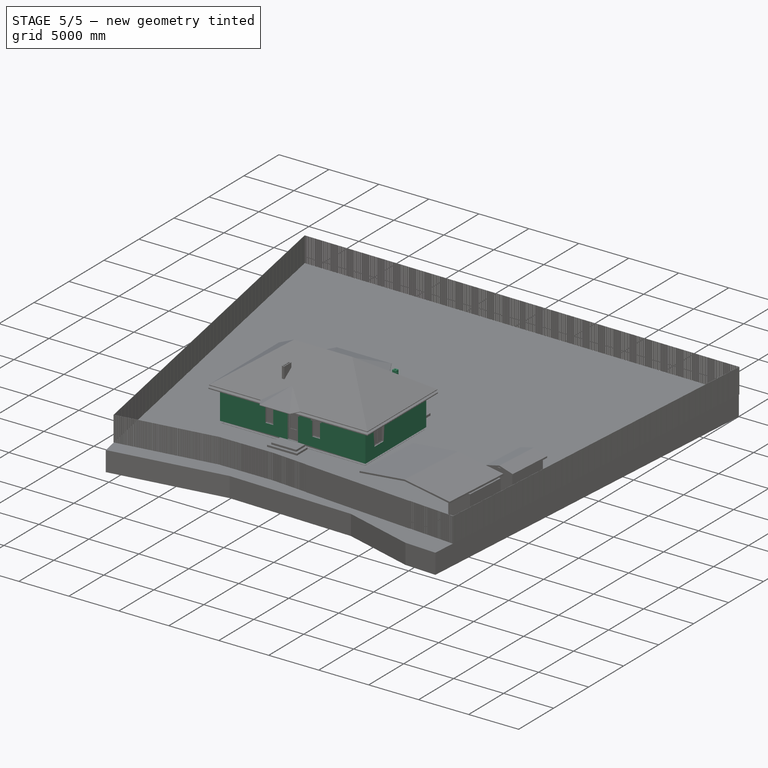
[diagram: stage 5 of 5 — iso view after this stage's code; geometry added in this stage tinted green]
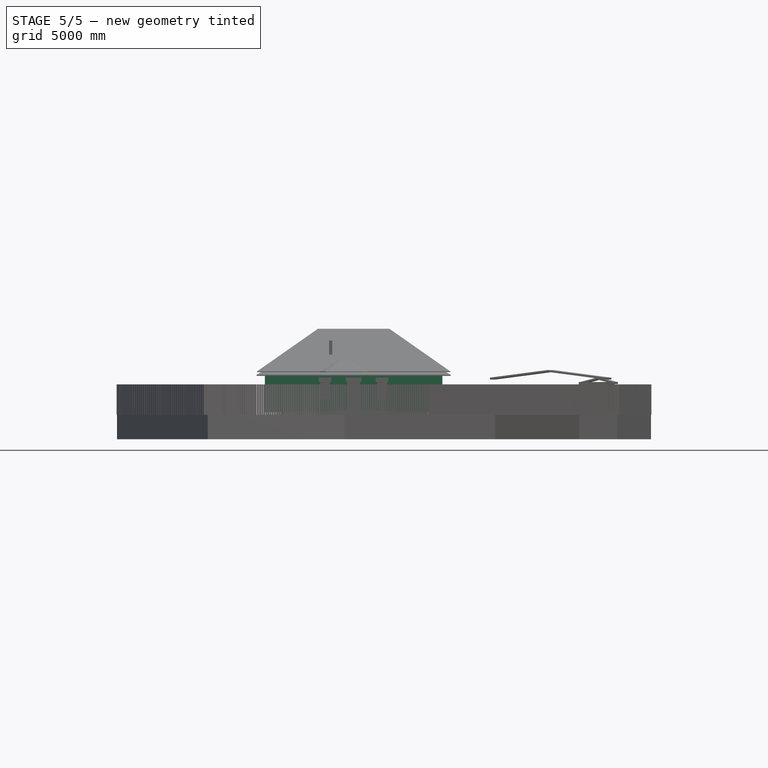
[diagram: stage 5 of 5 — front view after this stage's code; geometry added in this stage tinted green]
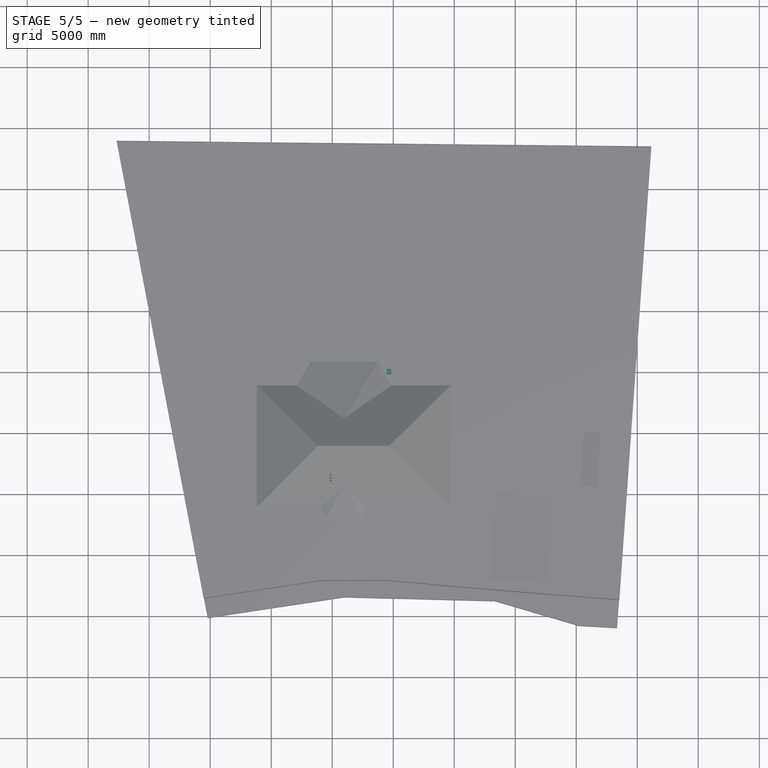
[diagram: stage 5 of 5 — top view after this stage's code; geometry added in this stage tinted green]
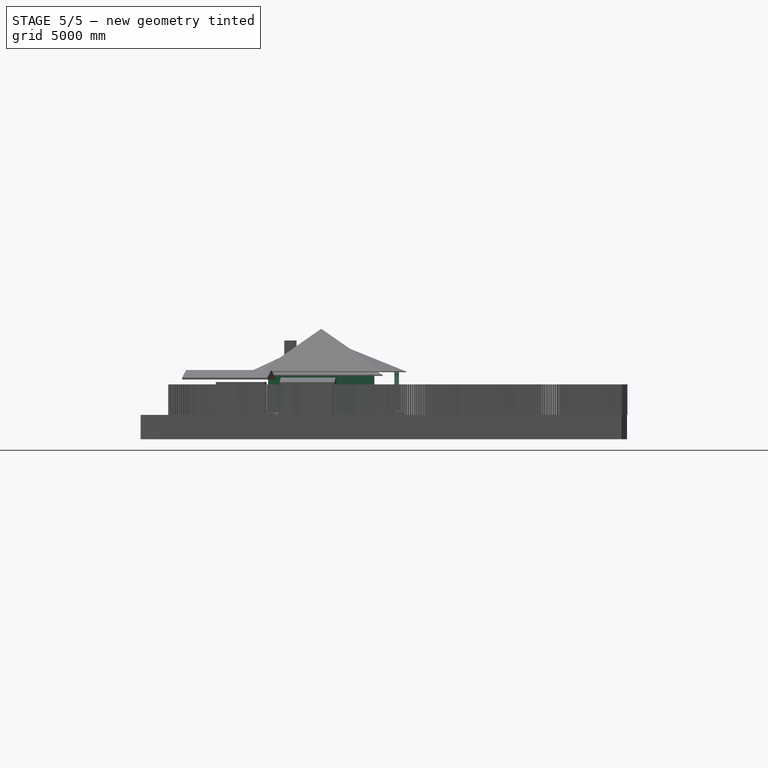
[diagram: stage 5 of 5 — right view after this stage's code; geometry added in this stage tinted green]
FEATURE [Part::Part2DObjectPython] Wire418  label="Контур по кровле"  # Draft 2D object (typed FeaturePython)
  ChamferSize = 0
  Closed = true
  End = (-1170,8830,0)
  FilletRadius = 0
  Length = 54925.2
  MakeFace = false
  Placement = pos=(-1225,-1170,0) rot=(0,0,1;0rad)
  Points = (12) [(55,-1.81899e-12,0),(6000.8,-1.81899e-12,0),(6480,-830,0),(9480,-830,0),(9959.2,-1.81899e-12,0),(15905,-1.81899e-12,0),(15905,10000,0),+5 more]
  Start = (-1170,-1170,0)
  Subdivisions = 0
FEATURE [Part::Part2DObjectPython] Rectangle2244  label="контур по облицовке"  # Draft 2D object (typed FeaturePython)
  ChamferSize = 0
  Columns = 1
  FilletRadius = 0
  Height = 8700
  Length = 14550
  MakeFace = false
  Placement = pos=(-520,-520,0) rot=(0,0,1;0rad)
  Rows = 1
FEATURE [Part::Part2DObjectPython] Line  label="облицовка_стены_001"  # Draft 2D object (typed FeaturePython)
  ChamferSize = 0
  Closed = false
  End = (-520,8180,0)
  FilletRadius = 0
  Length = 8700
  MakeFace = false
  Placement = pos=(-520,-520,0) rot=(0,0,1;0rad)
  Points = (2) [(0,0,0),(-2.27374e-13,8700,0)]
  Start = (-520,-520,0)
  Subdivisions = 0
FEATURE [Part::Part2DObjectPython] Line1042  label="облицовка_стены_026"  # Draft 2D object (typed FeaturePython)
  ChamferSize = 0
  Closed = false
  End = (-520,-520,0)
  FilletRadius = 0
  Length = 14550
  MakeFace = false
  Placement = pos=(12470,-520,0) rot=(0,0,1;0rad)
  Points = (2) [(1560,-1.13687e-12,0),(-12990,-1.36424e-12,0)]
  Start = (14030,-520,0)
  Subdivisions = 0
FEATURE [Part::Part2DObjectPython] Line1043  label="облицовка_стены_027"  # Draft 2D object (typed FeaturePython)
  ChamferSize = 0
  Closed = false
  End = (14030,-520,0)
  FilletRadius = 0
  Length = 8700
  MakeFace = false
  Placement = pos=(14030,8180,0) rot=(0,0,1;0rad)
  Points = (2) [(0,0,0),(0,-8700,0)]
  Start = (14030,8180,0)
  Subdivisions = 0
FEATURE [Part::Part2DObjectPython] Line1044  label="облицовка_стены_025"  # Draft 2D object (typed FeaturePython)
  ChamferSize = 0
  Closed = false
  End = (14030,8180,0)
  FilletRadius = 0
  Length = 14550
  MakeFace = false
  Placement = pos=(-520,8180,0) rot=(0,0,1;0rad)
  Points = (2) [(0,0,0),(14550,-9.09495e-13,0)]
  Start = (-520,8180,0)
  Subdivisions = 0
FEATURE [Part::Part2DObjectPython] Rectangle2246  label="четверть_1310_001"  # Draft 2D object (typed FeaturePython)
  ChamferSize = 0
  Columns = 1
  FilletRadius = 0
  Height = 120
  Length = 1830
  MakeFace = true
  Placement = pos=(5840,8060,0) rot=(0,0,1;0rad)
  Rows = 1
FEATURE [Part::Part2DObjectPython] Rectangle2247  label="четверть_1310_002"  # Draft 2D object (typed FeaturePython)
  ChamferSize = 0
  Columns = 1
  FilletRadius = 0
  Height = 120
  Length = 1310
  MakeFace = true
  Placement = pos=(11040,8060,0) rot=(0,0,1;0rad)
  Rows = 1
FEATURE [Part::Part2DObjectPython] Rectangle2248  label="четверть_1310_003"  # Draft 2D object (typed FeaturePython)
  ChamferSize = 0
  Columns = 1
  FilletRadius = 0
  Height = 120
  Length = 1310
  MakeFace = true
  Placement = pos=(1160,8060,0) rot=(0,0,1;0rad)
  Rows = 1
FEATURE [Part::Part2DObjectPython] Rectangle2253  label="четверть_1050_001"  # Draft 2D object (typed FeaturePython)
  ChamferSize = 0
  Columns = 1
  FilletRadius = 0
  Height = 120
  Length = 1050
  MakeFace = true
  Placement = pos=(6230,-520,0) rot=(0,0,1;0rad)
  Rows = 1
FEATURE [Part::Part2DObjectPython] Rectangle2254  label="четверть_790_001"  # Draft 2D object (typed FeaturePython)
  ChamferSize = 0
  Columns = 1
  FilletRadius = 0
  Height = 120
  Length = 790
  MakeFace = true
  Placement = pos=(8700,-520,0) rot=(0,0,1;0rad)
  Rows = 1
FEATURE [Part::Part2DObjectPython] Rectangle2255  label="четверть_790_002"  # Draft 2D object (typed FeaturePython)
  ChamferSize = 0
  Columns = 1
  FilletRadius = 0
  Height = 120
  Length = 790
  MakeFace = true
  Placement = pos=(4020,-520,0) rot=(0,0,1;0rad)
  Rows = 1
FEATURE [Part::FeaturePython] Structure  label="Проём_четв._001"  # Arch/BIM object (typed FeaturePython)
  Base = -> Rectangle2248
  FaceMaker = 0
  Height = 2335
  HorizontalArea = 157200
  IfcRole = 0
  Length = 0
  MoveWithHost = false
  Nodes = (2) [(1815,8120,0),(1815,8120,2335)]
  NodesOffset = 0
  Normal = (0,0,0)
  PerimeterLength = 2860
  Placement = pos=(0,0,-40) rot=(0,0,1;0rad)
  VerticalArea = 6678100
  Width = 100
FEATURE [Part::FeaturePython] Structure001  label="Проём_четв._002"  # Arch/BIM object (typed FeaturePython)
  Base = -> Rectangle2246
  FaceMaker = 0
  Height = 2335
  HorizontalArea = 219600
  IfcRole = 0
  Length = 0
  MoveWithHost = false
  Nodes = (2) [(6755,8120,0),(6755,8120,2335)]
  NodesOffset = 0
  Normal = (0,0,0)
  PerimeterLength = 3900
  Placement = pos=(0,0,-40) rot=(0,0,1;0rad)
  VerticalArea = 9.1065e+06
  Width = 100
FEATURE [Part::FeaturePython] Structure002  label="Проём_четв._003"  # Arch/BIM object (typed FeaturePython)
  Base = -> Rectangle2247
  FaceMaker = 0
  Height = 2335
  HorizontalArea = 157200
  IfcRole = 0
  Length = 0
  MoveWithHost = false
  Nodes = (2) [(11695,8120,0),(11695,8120,2335)]
  NodesOffset = 0
  Normal = (0,0,0)
  PerimeterLength = 2860
  Placement = pos=(0,0,-40) rot=(0,0,1;0rad)
  VerticalArea = 6678100
  Width = 100
FEATURE [Part::FeaturePython] Structure003  label="Проём-Д-135-250-01"  # Arch/BIM object (typed FeaturePython)
  Base = -> Rectangle2189
  FaceMaker = 0
  Height = 2500
  HorizontalArea = 405000
  IfcRole = 0
  Length = 0
  MoveWithHost = false
  Nodes = (2) [(1815,7910,0),(1815,7910,2500)]
  NodesOffset = 0
  Normal = (0,0,0)
  PerimeterLength = 3300
  Placement = pos=(0,0,-180) rot=(0,0,1;0rad)
  VerticalArea = 8250000
  Width = 100
FEATURE [Part::FeaturePython] Structure004  label="Проём-Д-135-250-02"  # Arch/BIM object (typed FeaturePython)
  Base = -> Rectangle2188
  FaceMaker = 0
  Height = 2500
  HorizontalArea = 561000
  IfcRole = 0
  Length = 0
  MoveWithHost = false
  Nodes = (2) [(6755,7910,0),(6755,7910,2500)]
  NodesOffset = 0
  Normal = (0,0,0)
  PerimeterLength = 4340
  Placement = pos=(0,0,-180) rot=(0,0,1;0rad)
  VerticalArea = 10850000
  Width = 100
FEATURE [Part::FeaturePython] Structure005  label="Проём-Д-135-250-03"  # Arch/BIM object (typed FeaturePython)
  Base = -> Rectangle2190
  FaceMaker = 0
  Height = 2500
  HorizontalArea = 405000
  IfcRole = 0
  Length = 0
  MoveWithHost = false
  Nodes = (2) [(11695,7910,0),(11695,7910,2500)]
  NodesOffset = 0
  Normal = (0,0,0)
  PerimeterLength = 3300
  Placement = pos=(0,0,-180) rot=(0,0,1;0rad)
  VerticalArea = 8250000
  Width = 100
FEATURE [Part::FeaturePython] Structure014  label="Проём_четв._009"  # Arch/BIM object (typed FeaturePython)
  Base = -> Rectangle2254
  FaceMaker = 0
  Height = 1435
  HorizontalArea = 94800
  IfcRole = 0
  Length = 0
  MoveWithHost = false
  Nodes = (2) [(9095,-460,0),(9095,-460,1435)]
  NodesOffset = 0
  Normal = (0,0,0)
  PerimeterLength = 1820
  Placement = pos=(0,0,860) rot=(0,0,1;0rad)
  VerticalArea = 2.6117e+06
  Width = 100
FEATURE [Part::FeaturePython] Structure015  label="Проём_четв._008"  # Arch/BIM object (typed FeaturePython)
  Base = -> Rectangle2255
  FaceMaker = 0
  Height = 1435
  HorizontalArea = 94800
  IfcRole = 0
  Length = 0
  MoveWithHost = false
  Nodes = (2) [(4415,-460,0),(4415,-460,1435)]
  NodesOffset = 0
  Normal = (0,0,0)
  PerimeterLength = 1820
  Placement = pos=(0,0,860) rot=(0,0,1;0rad)
  VerticalArea = 2.6117e+06
  Width = 100
FEATURE [Part::FeaturePython] Structure016  label="Проём-ОК-90-150-01"  # Arch/BIM object (typed FeaturePython)
  Base = -> Rectangle2230
  FaceMaker = 0
  Height = 1500
  HorizontalArea = 270000
  IfcRole = 0
  Length = 0
  MoveWithHost = false
  Nodes = (2) [(4415,-250,0),(4415,-250,1500)]
  NodesOffset = 0
  Normal = (0,0,0)
  PerimeterLength = 2400
  Placement = pos=(0,0,820) rot=(0,0,1;0rad)
  VerticalArea = 3.6e+06
  Width = 100
FEATURE [Part::FeaturePython] Structure017  label="Проём-ОК-90-150-02"  # Arch/BIM object (typed FeaturePython)
  Base = -> Rectangle2231
  FaceMaker = 0
  Height = 1500
  HorizontalArea = 270000
  IfcRole = 0
  Length = 0
  MoveWithHost = false
  Nodes = (2) [(9095,-250,0),(9095,-250,1500)]
  NodesOffset = 0
  Normal = (0,0,0)
  PerimeterLength = 2400
  Placement = pos=(0,0,820) rot=(0,0,1;0rad)
  VerticalArea = 3.6e+06
  Width = 100
FEATURE [Part::FeaturePython] Structure018  label="Проём_четв._010"  # Arch/BIM object (typed FeaturePython)
  Base = -> Rectangle2253
  FaceMaker = 0
  Height = 2335
  HorizontalArea = 126000
  IfcRole = 0
  Length = 0
  MoveWithHost = false
  Nodes = (2) [(6755,-460,0),(6755,-460,2335)]
  NodesOffset = 0
  Normal = (0,0,0)
  PerimeterLength = 2340
  Placement = pos=(0,0,-40) rot=(0,0,1;0rad)
  VerticalArea = 5463900
  Width = 100
FEATURE [Part::FeaturePython] Structure019  label="Проём-Д-100-250-004"  # Arch/BIM object (typed FeaturePython)
  Base = -> Rectangle2169
  FaceMaker = 0
  Height = 2500
  HorizontalArea = 300000
  IfcRole = 0
  Length = 0
  MoveWithHost = false
  Nodes = (2) [(6755,-250,0),(6755,-250,2500)]
  NodesOffset = 0
  Normal = (0,0,0)
  PerimeterLength = 2600
  Placement = pos=(0,0,-180) rot=(0,0,1;0rad)
  VerticalArea = 6.5e+06
  Width = 100
FEATURE [Part::Part2DObjectPython] Rectangle2256  label="Контур по ГБ"  # Draft 2D object (typed FeaturePython)
  ChamferSize = 0
  Columns = 1
  FilletRadius = 0
  Height = 7860
  Length = 13710
  MakeFace = false
  Placement = pos=(-100,-100,0) rot=(0,0,1;0rad)
  Rows = 1
FEATURE [Part::Part2DObjectPython] Line1045  # Draft 2D object (typed FeaturePython)
  ChamferSize = 0
  Closed = false
  End = (-300,7960,0)
  FilletRadius = 0
  Length = 8260
  MakeFace = false
  Placement = pos=(-300,-200,0) rot=(0,0,1;0rad)
  Points = (2) [(2.27374e-13,-100,0),(2.27374e-13,8160,0)]
  Start = (-300,-300,0)
  Subdivisions = 0
FEATURE [Part::Part2DObjectPython] Line1046  # Draft 2D object (typed FeaturePython)
  ChamferSize = 0
  Closed = false
  End = (13810,7960,0)
  FilletRadius = 0
  Length = 14110
  MakeFace = false
  Placement = pos=(-300,7960,0) rot=(0,0,1;0rad)
  Points = (2) [(0,0,0),(14110,0,0)]
  Start = (-300,7960,0)
  Subdivisions = 0
FEATURE [Part::Part2DObjectPython] Line1047  # Draft 2D object (typed FeaturePython)
  ChamferSize = 0
  Closed = false
  End = (13810,7960,0)
  FilletRadius = 0
  Length = 8260
  MakeFace = false
  Placement = pos=(13810,7610,0) rot=(0,0,1;0rad)
  Points = (2) [(0,-7910,0),(0,350,0)]
  Start = (13810,-300,0)
  Subdivisions = 0
FEATURE [Part::Part2DObjectPython] Line1048  # Draft 2D object (typed FeaturePython)
  ChamferSize = 0
  Closed = false
  End = (13810,-300,0)
  FilletRadius = 0
  Length = 14110
  MakeFace = false
  Placement = pos=(13541.8,-1987.87,0) rot=(0,0,1;0rad)
  Points = (2) [(-13841.8,1687.87,0),(268.165,1687.87,0)]
  Start = (-300,-300,0)
  Subdivisions = 0
FEATURE [Part::Part2DObjectPython] Line1049  # Draft 2D object (typed FeaturePython)
  ChamferSize = 0
  Closed = false
  End = (4905,3900,0)
  FilletRadius = 0
  Length = 5205
  MakeFace = false
  Placement = pos=(12280,3900,0) rot=(0,0,1;0rad)
  Points = (2) [(-12580,0,0),(-7375,0,0)]
  Start = (-300,3900,0)
  Subdivisions = 0
FEATURE [Part::FeaturePython] Wall005  label="Стена ГБ D600 082"  # Arch/BIM object (typed FeaturePython)
  Align = 0
  Base = -> Line1046
  BlockHeight = 250
  BlockLength = 625
  CountBroken = 77
  CountEntire = 137
  Face = 0
  Height = 2750
  HorizontalArea = 3.145e+06
  IfcRole = 156
  Joint = 0
  Length = 14110
  MakeBlocks = true
  MoveWithHost = false
  Normal = (0,0,0)
  OffsetFirst = 200
  OffsetSecond = 0
  PerimeterLength = 25660
  Placement = pos=(0,0,-180) rot=(0,0,1;0rad)
  Subtractions = -> [Structure003,Structure004,Structure005]
  VerticalArea = 1.283e+07
  Width = 200
FEATURE [Part::FeaturePython] Wall006  label="Стена ГБ D600 001"  # Arch/BIM object (typed FeaturePython)
  Align = 1
  Base = -> Line1048
  BlockHeight = 250
  BlockLength = 625
  CountBroken = 60
  CountEntire = 187
  Face = 0
  Height = 2750
  HorizontalArea = 3.145e+06
  IfcRole = 156
  Joint = 0
  Length = 14110
  MakeBlocks = true
  MoveWithHost = false
  Normal = (0,0,0)
  OffsetFirst = 0
  OffsetSecond = 200
  PerimeterLength = 25660
  Placement = pos=(0,0,-180) rot=(0,0,1;0rad)
  Subtractions = -> [Structure019,Structure016,Structure017]
  VerticalArea = 1.283e+07
  Width = 200
FEATURE [Part::FeaturePython] Structure021  label="Проём-Д90-001"  # Arch/BIM object (typed FeaturePython)
  Base = -> Rectangle2149
  FaceMaker = 0
  Height = 2180
  HorizontalArea = 90000
  IfcRole = 0
  Length = 0
  MoveWithHost = false
  Nodes = (2) [(4350,2650,0),(4350,2650,2180)]
  NodesOffset = 0
  Normal = (0,0,0)
  PerimeterLength = 2000
  Placement = pos=(0,0,-180) rot=(0,0,1;0rad)
  VerticalArea = 4360000
  Width = 100
FEATURE [Part::Part2DObjectPython] Line1051  # Draft 2D object (typed FeaturePython)
  ChamferSize = 0
  Closed = false
  End = (13610,3900,0)
  FilletRadius = 0
  Length = 13710
  MakeFace = false
  Placement = pos=(-50,3900,0) rot=(0,0,1;0rad)
  Points = (2) [(-50,0,0),(13660,0,0)]
  Start = (-100,3900,0)
  Subdivisions = 0
FEATURE [Part::FeaturePython] Wall012  label="балка продольная 001"  # Arch/BIM object (typed FeaturePython)
  Align = 1
  Base = -> Line1051
  BlockHeight = 0
  BlockLength = 0
  CountBroken = 0
  CountEntire = 0
  Face = 0
  Height = 180
  HorizontalArea = 2.742e+06
  IfcRole = 156
  Joint = 0
  Length = 13710
  MakeBlocks = false
  MoveWithHost = false
  Normal = (0,0,0)
  OffsetFirst = 0
  OffsetSecond = 0
  PerimeterLength = 27820
  Placement = pos=(0,0,2570) rot=(0,0,1;0rad)
  VerticalArea = 5.0076e+06
  Width = 200
FEATURE [Part::Part2DObjectPython] Line1052  # Draft 2D object (typed FeaturePython)
  ChamferSize = 0
  Closed = false
  End = (2600,3900,0)
  FilletRadius = 0
  Length = 4000
  MakeFace = false
  Placement = pos=(2600,-100,0) rot=(0,0,1;0rad)
  Points = (2) [(0,0,0),(0,4000,0)]
  Start = (2600,-100,0)
  Subdivisions = 0
FEATURE [Part::Part2DObjectPython] Line1053  # Draft 2D object (typed FeaturePython)
  ChamferSize = 0
  Closed = false
  End = (3200,7760,0)
  FilletRadius = 0
  Length = 3660
  MakeFace = false
  Placement = pos=(3200,4100,0) rot=(0,0,1;0rad)
  Points = (2) [(0,0,0),(0,3660,0)]
  Start = (3200,4100,0)
  Subdivisions = 0
FEATURE [Part::Part2DObjectPython] Line1054  # Draft 2D object (typed FeaturePython)
  ChamferSize = 0
  Closed = false
  End = (10200,7760,0)
  FilletRadius = 0
  Length = 3660
  MakeFace = false
  Placement = pos=(10200,4100,0) rot=(0,0,1;0rad)
  Points = (2) [(0,0,0),(0,3660,0)]
  Start = (10200,4100,0)
  Subdivisions = 0
FEATURE [Part::FeaturePython] Wall014  label="перегородка 008"  # Arch/BIM object (typed FeaturePython)
  Align = 0
  Base = -> Line1053
  BlockHeight = 250
  BlockLength = 625
  CountBroken = 16
  CountEntire = 55
  Face = 0
  Height = 2750
  HorizontalArea = 371000
  IfcRole = 156
  Joint = 0
  Length = 3660
  MakeBlocks = true
  MoveWithHost = false
  Normal = (0,0,0)
  OffsetFirst = 0
  OffsetSecond = 300
  PerimeterLength = 7620
  VerticalArea = 2.286e+07
  Width = 100
FEATURE [Part::FeaturePython] Wall015  label="перегородка 007"  # Arch/BIM object (typed FeaturePython)
  Align = 0
  Base = -> Line1054
  BlockHeight = 250
  BlockLength = 625
  CountBroken = 16
  CountEntire = 55
  Face = 0
  Height = 2750
  HorizontalArea = 371000
  IfcRole = 156
  Joint = 0
  Length = 3660
  MakeBlocks = true
  MoveWithHost = false
  Normal = (0,0,0)
  OffsetFirst = 0
  OffsetSecond = 300
  PerimeterLength = 7620
  VerticalArea = 2.286e+07
  Width = 100
FEATURE [Part::FeaturePython] Structure022  label="Проём-Д90-003"  # Arch/BIM object (typed FeaturePython)
  Base = -> Rectangle2151
  FaceMaker = 0
  Height = 2180
  HorizontalArea = 90000
  IfcRole = 0
  Length = 0
  MoveWithHost = false
  Nodes = (2) [(2650,3300,0),(2650,3300,2180)]
  NodesOffset = 0
  Normal = (0,0,0)
  PerimeterLength = 2000
  Placement = pos=(0,0,-180) rot=(0,0,1;0rad)
  VerticalArea = 4360000
  Width = 100
FEATURE [Part::FeaturePython] Wall013  label="перегородка 001"  # Arch/BIM object (typed FeaturePython)
  Align = 0
  Base = -> Line1052
  BlockHeight = 250
  BlockLength = 625
  CountBroken = 24
  CountEntire = 49
  Face = 0
  Height = 2750
  HorizontalArea = 370000
  IfcRole = 156
  Joint = 0
  Length = 4000
  MakeBlocks = true
  MoveWithHost = false
  Normal = (0,0,0)
  OffsetFirst = 0
  OffsetSecond = 300
  PerimeterLength = 7600
  Subtractions = -> [Structure022]
  VerticalArea = 2.28e+07
  Width = 100
FEATURE [Part::FeaturePython] Structure023  label="Проём-Д90-004"  # Arch/BIM object (typed FeaturePython)
  Base = -> Rectangle2152
  FaceMaker = 0
  Height = 2180
  HorizontalArea = 90000
  IfcRole = 0
  Length = 0
  MoveWithHost = false
  Nodes = (2) [(10850,2650,0),(10850,2650,2180)]
  NodesOffset = 0
  Normal = (0,0,0)
  PerimeterLength = 2000
  Placement = pos=(0,0,-180) rot=(0,0,1;0rad)
  VerticalArea = 4360000
  Width = 100
FEATURE [Part::FeaturePython] Structure024  label="Проём-Д100-002"  # Arch/BIM object (typed FeaturePython)
  Base = -> Rectangle2168
  FaceMaker = 0
  Height = 2180
  HorizontalArea = 100000
  IfcRole = 0
  Length = 0
  MoveWithHost = false
  Nodes = (2) [(6755,2650,0),(6755,2650,2180)]
  NodesOffset = 0
  Normal = (0,0,0)
  PerimeterLength = 2200
  Placement = pos=(0,0,-180) rot=(0,0,1;0rad)
  VerticalArea = 4.796e+06
  Width = 100
FEATURE [Part::FeaturePython] Structure025  label="Проём-Д70-001"  # Arch/BIM object (typed FeaturePython)
  Base = -> Rectangle2167
  FaceMaker = 0
  Height = 2180
  HorizontalArea = 90000
  IfcRole = 0
  Length = 0
  MoveWithHost = false
  Nodes = (2) [(9150,2650,0),(9150,2650,2180)]
  NodesOffset = 0
  Normal = (0,0,0)
  PerimeterLength = 2000
  Placement = pos=(0,0,-180) rot=(0,0,1;0rad)
  VerticalArea = 4360000
  Width = 100
FEATURE [Part::Part2DObjectPython] Line1055  # Draft 2D object (typed FeaturePython)
  ChamferSize = 0
  Closed = false
  End = (13610,2600,0)
  FilletRadius = 0
  Length = 11010
  MakeFace = false
  Placement = pos=(2600,2600,0) rot=(0,0,1;0rad)
  Points = (2) [(0,0,0),(11010,0,0)]
  Start = (2600,2600,0)
  Subdivisions = 0
  Support = -> [Structure023]
FEATURE [Part::Part2DObjectPython] Line1056  # Draft 2D object (typed FeaturePython)
  ChamferSize = 0
  Closed = false
  End = (5100,2700,0)
  FilletRadius = 0
  Length = 2800
  MakeFace = false
  Placement = pos=(5100,-1100,0) rot=(0,0,1;0rad)
  Points = (2) [(0,1000,0),(0,3800,0)]
  Start = (5100,-100,0)
  Subdivisions = 0
FEATURE [Part::Part2DObjectPython] Line1058  # Draft 2D object (typed FeaturePython)
  ChamferSize = 0
  Closed = false
  End = (2700,1700,0)
  FilletRadius = 0
  Length = 2800
  MakeFace = false
  Placement = pos=(1700,1700,0) rot=(0,0,1;0rad)
  Points = (2) [(-1800,-4.54747e-13,0),(1000,1.13687e-12,0)]
  Start = (-100,1700,0)
  Subdivisions = 0
FEATURE [Part::Part2DObjectPython] Line1059  # Draft 2D object (typed FeaturePython)
  ChamferSize = 0
  Closed = false
  End = (7700,-100,0)
  FilletRadius = 0
  Length = 2800
  MakeFace = false
  Placement = pos=(7700,1100,0) rot=(0,0,1;0rad)
  Points = (2) [(0,1600,0),(0,-1200,0)]
  Start = (7700,2700,0)
  Subdivisions = 0
FEATURE [Part::Part2DObjectPython] Line1061  # Draft 2D object (typed FeaturePython)
  ChamferSize = 0
  Closed = false
  End = (11400,2600,0)
  FilletRadius = 0
  Length = 1300
  MakeFace = false
  Placement = pos=(11400,4300,0) rot=(0,0,1;0rad)
  Points = (2) [(0,-400,0),(0,-1700,0)]
  Start = (11400,3900,0)
  Subdivisions = 0
FEATURE [Part::FeaturePython] Wall016  label="перегородка 027"  # Arch/BIM object (typed FeaturePython)
  Align = 1
  Base = -> Line1055
  BlockHeight = 250
  BlockLength = 625
  CountBroken = 82
  CountEntire = 107
  Face = 0
  Height = 2750
  HorizontalArea = 260000
  IfcRole = 156
  Joint = 0
  Length = 11010
  MakeBlocks = true
  MoveWithHost = false
  Normal = (0,0,0)
  OffsetFirst = 300
  OffsetSecond = 100
  PerimeterLength = 5400
  Subtractions = -> [Structure023,Structure024,Structure025,Structure021]
  VerticalArea = 12600000
  Width = 100
FEATURE [Part::Part2DObjectPython] Line1066  # Draft 2D object (typed FeaturePython)
  ChamferSize = 0
  Closed = false
  End = (3670,10200,0)
  FilletRadius = 0
  Length = 380
  MakeFace = false
  Placement = pos=(3670,9820,0) rot=(0,0,1;0rad)
  Points = (2) [(0,0,0),(0,380,0)]
  Start = (3670,9820,0)
  Subdivisions = 0
FEATURE [Part::Part2DObjectPython] Line1067  # Draft 2D object (typed FeaturePython)
  ChamferSize = 0
  Closed = false
  End = (4050,10200,0)
  FilletRadius = 0
  Length = 380
  MakeFace = false
  Placement = pos=(3670,10200,0) rot=(0,0,1;0rad)
  Points = (2) [(0,0,0),(380,0,0)]
  Start = (3670,10200,0)
  Subdivisions = 0
FEATURE [Part::Part2DObjectPython] Line1068  # Draft 2D object (typed FeaturePython)
  ChamferSize = 0
  Closed = false
  End = (4050,9820,0)
  FilletRadius = 0
  Length = 380
  MakeFace = false
  Placement = pos=(4050,10200,0) rot=(0,0,1;0rad)
  Points = (2) [(0,0,0),(0,-380,0)]
  Start = (4050,10200,0)
  Subdivisions = 0
FEATURE [Part::Part2DObjectPython] Line1069  # Draft 2D object (typed FeaturePython)
  ChamferSize = 0
  Closed = false
  End = (3670,9820,0)
  FilletRadius = 0
  Length = 380
  MakeFace = false
  Placement = pos=(4050,9820,0) rot=(0,0,1;0rad)
  Points = (2) [(0,0,0),(-380,0,0)]
  Start = (4050,9820,0)
  Subdivisions = 0
FEATURE [Part::FeaturePython] Wall028  label="Колонна_01_001"  # Arch/BIM object (typed FeaturePython)
  Align = 0
  Base = -> Line1066
  BlockHeight = 65
  BlockLength = 250
  CountBroken = 63
  CountEntire = 21
  Face = 0
  Height = 3140
  HorizontalArea = 45600
  IfcRole = 156
  Joint = 10
  Length = 380
  MakeBlocks = true
  MoveWithHost = false
  Normal = (0,0,0)
  OffsetFirst = 0
  OffsetSecond = 120
  PerimeterLength = 1000
  VerticalArea = 140000
  Width = 120
FEATURE [Part::FeaturePython] Wall029  label="Колонна_01_012"  # Arch/BIM object (typed FeaturePython)
  Align = 0
  Base = -> Line1069
  BlockHeight = 65
  BlockLength = 250
  CountBroken = 63
  CountEntire = 21
  Face = 0
  Height = 3140
  HorizontalArea = 45600
  IfcRole = 156
  Joint = 10
  Length = 380
  MakeBlocks = true
  MoveWithHost = false
  Normal = (0,0,0)
  OffsetFirst = 0
  OffsetSecond = 120
  PerimeterLength = 1000
  VerticalArea = 140000
  Width = 120
FEATURE [Part::FeaturePython] Wall030  label="Колонна_01_011"  # Arch/BIM object (typed FeaturePython)
  Align = 0
  Base = -> Line1067
  BlockHeight = 65
  BlockLength = 250
  CountBroken = 63
  CountEntire = 21
  Face = 0
  Height = 3140
  HorizontalArea = 45600
  IfcRole = 156
  Joint = 10
  Length = 380
  MakeBlocks = true
  MoveWithHost = false
  Normal = (0,0,0)
  OffsetFirst = 0
  OffsetSecond = 120
  PerimeterLength = 1000
  VerticalArea = 140000
  Width = 120
FEATURE [Part::FeaturePython] Wall031  label="Колонна_01_010"  # Arch/BIM object (typed FeaturePython)
  Align = 0
  Base = -> Line1068
  BlockHeight = 65
  BlockLength = 250
  CountBroken = 63
  CountEntire = 21
  Face = 0
  Height = 3140
  HorizontalArea = 45600
  IfcRole = 156
  Joint = 10
  Length = 380
  MakeBlocks = true
  MoveWithHost = false
  Normal = (0,0,0)
  OffsetFirst = 0
  OffsetSecond = 120
  PerimeterLength = 1000
  VerticalArea = 140000
  Width = 120
FEATURE [App::GeometryPython] BuildingPart008  label="Колонна_001"  # Arch/BIM object (typed FeaturePython)
  Area = 0
  Group = -> [Wall028,Wall031,Wall030,Wall029]
  Height = 0
  IfcRole = 0
  LevelOffset = 0
FEATURE [Part::Part2DObjectPython] Line1070  # Draft 2D object (typed FeaturePython)
  ChamferSize = 0
  Closed = false
  End = (9460,9820,0)
  FilletRadius = 0
  Length = 380
  MakeFace = false
  Placement = pos=(9840,9820,0) rot=(0,0,1;0rad)
  Points = (2) [(0,0,0),(-380,0,0)]
  Start = (9840,9820,0)
  Subdivisions = 0
FEATURE [Part::Part2DObjectPython] Line1071  # Draft 2D object (typed FeaturePython)
  ChamferSize = 0
  Closed = false
  End = (9840,10200,0)
  FilletRadius = 0
  Length = 380
  MakeFace = false
  Placement = pos=(9460,10200,0) rot=(0,0,1;0rad)
  Points = (2) [(0,0,0),(380,0,0)]
  Start = (9460,10200,0)
  Subdivisions = 0
FEATURE [Part::Part2DObjectPython] Line1072  # Draft 2D object (typed FeaturePython)
  ChamferSize = 0
  Closed = false
  End = (9840,9820,0)
  FilletRadius = 0
  Length = 380
  MakeFace = false
  Placement = pos=(9840,10200,0) rot=(0,0,1;0rad)
  Points = (2) [(0,0,0),(0,-380,0)]
  Start = (9840,10200,0)
  Subdivisions = 0
FEATURE [Part::FeaturePython] Wall033  label="Колонна_01_014"  # Arch/BIM object (typed FeaturePython)
  Align = 0
  Base = -> Line1072
  BlockHeight = 65
  BlockLength = 250
  CountBroken = 63
  CountEntire = 21
  Face = 0
  Height = 3140
  HorizontalArea = 45600
  IfcRole = 156
  Joint = 10
  Length = 380
  MakeBlocks = true
  MoveWithHost = false
  Normal = (0,0,0)
  OffsetFirst = 0
  OffsetSecond = 120
  PerimeterLength = 1000
  VerticalArea = 140000
  Width = 120
FEATURE [Part::FeaturePython] Wall034  label="Колонна_01_015"  # Arch/BIM object (typed FeaturePython)
  Align = 0
  Base = -> Line1071
  BlockHeight = 65
  BlockLength = 250
  CountBroken = 63
  CountEntire = 21
  Face = 0
  Height = 3140
  HorizontalArea = 45600
  IfcRole = 156
  Joint = 10
  Length = 380
  MakeBlocks = true
  MoveWithHost = false
  Normal = (0,0,0)
  OffsetFirst = 0
  OffsetSecond = 120
  PerimeterLength = 1000
  VerticalArea = 140000
  Width = 120
FEATURE [Part::Part2DObjectPython] Line1073  # Draft 2D object (typed FeaturePython)
  ChamferSize = 0
  Closed = false
  End = (9460,10200,0)
  FilletRadius = 0
  Length = 380
  MakeFace = false
  Placement = pos=(9460,9820,0) rot=(0,0,1;0rad)
  Points = (2) [(0,0,0),(0,380,0)]
  Start = (9460,9820,0)
  Subdivisions = 0
FEATURE [Part::FeaturePython] Wall032  label="Колонна_01_013"  # Arch/BIM object (typed FeaturePython)
  Align = 0
  Base = -> Line1073
  BlockHeight = 65
  BlockLength = 250
  CountBroken = 63
  CountEntire = 21
  Face = 0
  Height = 3140
  HorizontalArea = 45600
  IfcRole = 156
  Joint = 10
  Length = 380
  MakeBlocks = true
  MoveWithHost = false
  Normal = (0,0,0)
  OffsetFirst = 0
  OffsetSecond = 120
  PerimeterLength = 1000
  VerticalArea = 140000
  Width = 120
FEATURE [Part::FeaturePython] Wall035  label="Колонна_01_016"  # Arch/BIM object (typed FeaturePython)
  Align = 0
  Base = -> Line1070
  BlockHeight = 65
  BlockLength = 250
  CountBroken = 63
  CountEntire = 21
  Face = 0
  Height = 3140
  HorizontalArea = 45600
  IfcRole = 156
  Joint = 10
  Length = 380
  MakeBlocks = true
  MoveWithHost = false
  Normal = (0,0,0)
  OffsetFirst = 0
  OffsetSecond = 120
  PerimeterLength = 1000
  VerticalArea = 140000
  Width = 120
FEATURE [Part::FeaturePython] Structure041  label="кольцо с днищем ДК-10.9 внутр."  # Arch/BIM object (typed FeaturePython)
  Base = -> Circle072
  FaceMaker = 0
  Height = 800
  HorizontalArea = 785398
  IfcRole = 0
  Length = 0
  MoveWithHost = false
  Nodes = (2) [(8500,900,0),(8500,900,-800)]
  NodesOffset = 0
  Normal = (0,0,-1)
  PerimeterLength = 3141.59
  Placement = pos=(0,0,-300) rot=(0,0,1;0rad)
  VerticalArea = 2.51327e+06
  Width = 100
FEATURE [Part::FeaturePython] Structure040  label="кольцо с днищем ДК-10.9 габарит"  # Arch/BIM object (typed FeaturePython)
  Base = -> Circle071
  FaceMaker = 0
  Height = 900
  HorizontalArea = 1.05683e+06
  IfcRole = 0
  Length = 0
  MoveWithHost = false
  Nodes = (2) [(8500,900,0),(8500,900,-900)]
  NodesOffset = 0
  Normal = (0,0,-1)
  PerimeterLength = 3644.25
  Placement = pos=(0,0,-300) rot=(0,0,1;0rad)
  Subtractions = -> [Structure041]
  VerticalArea = 5.7931e+06
  Width = 100
FEATURE [Part::FeaturePython] Structure044  label="люк контур Д700"  # Arch/BIM object (typed FeaturePython)
  Base = -> Circle073
  FaceMaker = 0
  Height = 300
  HorizontalArea = 384845
  IfcRole = 0
  Length = 0
  MoveWithHost = false
  Nodes = (2) [(8500,1000,0),(8500,1000,-300)]
  NodesOffset = 0
  Normal = (0,0,-1)
  PerimeterLength = 2199.11
  VerticalArea = 659734
  Width = 100
FEATURE [Part::FeaturePython] Structure043  label="крышка ПП10"  # Arch/BIM object (typed FeaturePython)
  Base = -> Circle071
  FaceMaker = 0
  Height = 100
  HorizontalArea = 671987
  IfcRole = 0
  Length = 0
  MoveWithHost = false
  Nodes = (2) [(8500,900,0),(8500,900,-100)]
  NodesOffset = 0
  Normal = (0,0,-1)
  PerimeterLength = 3644.25
  Placement = pos=(0,0,-200) rot=(0,0,1;0rad)
  Subtractions = -> [Structure044]
  VerticalArea = 584336
  Width = 100
FEATURE [Part::Part2DObjectPython] Wire422  label="контур отмостки"  # Draft 2D object (typed FeaturePython)
  ChamferSize = 0
  Closed = true
  End = (-520,8180,0)
  FilletRadius = 0
  Length = 46500
  MakeFace = false
  Placement = pos=(-430,-430,0) rot=(0,0,1;0rad)
  Points = (4) [(-90,-90,0),(14460,-90,0),(14460,8610,0),(-90,8610,0)]
  Start = (-520,-520,0)
  Subdivisions = 0
FEATURE [Part::Part2DObjectPython] Line1079  # Draft 2D object (typed FeaturePython)
  ChamferSize = 0
  Closed = false
  End = (0,3830,6612.08)
  FilletRadius = 0
  Length = 6103.87
  MakeFace = false
  Placement = pos=(0,8830,3111.04) rot=(0.57735,0.57735,0.57735;2.0944rad)
  Points = (2) [(0,0,0),(-5000,3501.04,0)]
  Start = (0,8830,3111.04)
  Subdivisions = 0
FEATURE [Part::Part2DObjectPython] Line1081  # Draft 2D object (typed FeaturePython)
  ChamferSize = 0
  Closed = false
  End = (0,-1170,3111.04)
  FilletRadius = 0
  Length = 10000
  MakeFace = false
  Placement = pos=(0,8830,3111.04) rot=(0.57735,0.57735,0.57735;2.0944rad)
  Points = (2) [(0,0,0),(-10000,0,0)]
  Start = (0,8830,3111.04)
  Subdivisions = 0
FEATURE [Part::Part2DObjectPython] Rectangle2276  # Draft 2D object (typed FeaturePython)
  ChamferSize = 0
  Columns = 1
  FilletRadius = 0
  Height = 6000
  Length = 250
  MakeFace = false
  Placement = pos=(0,3830,6612.08) rot=(-0.287968,0.913318,-0.287968;1.66134rad)
  Rows = 1
FEATURE [Part::Part2DObjectPython] Line1082  # Draft 2D object (typed FeaturePython)
  ChamferSize = 0
  Closed = false
  End = (0,3830,3470)
  FilletRadius = 0
  Length = 3292.08
  MakeFace = false
  Placement = pos=(0,3830,6762.08) rot=(0.57735,0.57735,0.57735;2.0944rad)
  Points = (2) [(0,0,0),(-1.81899e-12,-3292.08,0)]
  Start = (0,3830,6762.08)
  Subdivisions = 0
FEATURE [Part::Part2DObjectPython] Rectangle2279  # Draft 2D object (typed FeaturePython)
  ChamferSize = 0
  Columns = 1
  FilletRadius = 0
  Height = 1500
  Length = 200
  MakeFace = false
  Placement = pos=(0,6100,3470) rot=(0.57735,0.57735,0.57735;2.0944rad)
  Rows = 1
FEATURE [Part::Mirroring] mirror  label="Mirror of Rectangle2279"
  Base = (0,3830,3470)
  Normal = (0,-1,6e-16)
  Source = -> Rectangle2279
FEATURE [Part::Part2DObjectPython] Rectangle2282  # Draft 2D object (typed FeaturePython)
  ChamferSize = 0
  Columns = 1
  FilletRadius = 0
  Height = 1100
  Length = 6381.94
  MakeFace = false
  Placement = pos=(3569.03,3280,5230) rot=(0,0,1;0rad)
  Rows = 1
FEATURE [Part::Part2DObjectPython] Rectangle2285  # Draft 2D object (typed FeaturePython)
  ChamferSize = 0
  Columns = 1
  FilletRadius = 0
  Height = 4540
  Length = 8960
  MakeFace = false
  Placement = pos=(1560,1560,4760) rot=(0,0,1;0rad)
  Rows = 1
FEATURE [Part::Part2DObjectPython] Rectangle2286  # Draft 2D object (typed FeaturePython)
  ChamferSize = 0
  Columns = 1
  FilletRadius = 0
  Height = 4540
  Length = 10130
  MakeFace = false
  Placement = pos=(1670,1560,3110) rot=(0,0,1;0rad)
  Rows = 1
FEATURE [Part::Loft] Loft  label="Объём в мансарде"
  Closed = false
  MaxDegree = 5
  Ruled = true
  Sections = -> [Rectangle2282,Rectangle2285,Rectangle2286]
  Solid = true
FEATURE [Part::FeaturePython] Wall007  label="Стена ГБ D600 083"  # Arch/BIM object (typed FeaturePython)
  Align = 0
  Base = -> Line1045
  BlockHeight = 250
  BlockLength = 625
  CountBroken = 23
  CountEntire = 131
  Face = 0
  Height = 2750
  HorizontalArea = 2.04e+06
  IfcRole = 156
  Joint = 0
  Length = 8260
  MakeBlocks = true
  MoveWithHost = false
  Normal = (0,0,0)
  OffsetFirst = 200
  OffsetSecond = 0
  PerimeterLength = 16820
  Placement = pos=(0,0,-180) rot=(0,0,1;0rad)
  Subtractions = -> [Structure056]
  VerticalArea = 8410000
  Width = 200
FEATURE [Part::FeaturePython] Wall008  label="Стена ГБ D600 084"  # Arch/BIM object (typed FeaturePython)
  Align = 1
  Base = -> Line1047
  BlockHeight = 250
  BlockLength = 625
  CountBroken = 29
  CountEntire = 119
  Face = 0
  Height = 2750
  HorizontalArea = 1.9775e+06
  IfcRole = 156
  Joint = 0
  Length = 8260
  MakeBlocks = true
  MoveWithHost = false
  Normal = (0,0,0)
  OffsetFirst = 200
  OffsetSecond = 0
  PerimeterLength = 16320
  Placement = pos=(0,0,-180) rot=(0,0,1;0rad)
  Subtractions = -> [Structure057]
  VerticalArea = 8160000
  Width = 200
FEATURE [Part::FeaturePython] Wall010  label="Утеплитель ЭППС 100mm"  # Arch/BIM object (typed FeaturePython)
  Align = 1
  Base = -> Rectangle2200
  BlockHeight = 600
  BlockLength = 1200
  CountBroken = 123
  CountEntire = 101
  Face = 0
  Height = 3250
  HorizontalArea = 6.312e+06
  IfcRole = 156
  Joint = 10
  Length = 45540
  MakeBlocks = true
  MoveWithHost = false
  Normal = (0,0,0)
  OffsetFirst = 0
  OffsetSecond = 600
  PerimeterLength = 42680
  Placement = pos=(0,0,-180) rot=(0,0,1;0rad)
  Subtractions = -> [Structure003,Structure004,Structure005,Structure017,Structure019,Structure016,Structure056,Structure057]
  VerticalArea = 240480000
  Width = 100
FEATURE [Part::FeaturePython] Wall004  label="Стена ГБ D600 081"  # Arch/BIM object (typed FeaturePython)
  Align = 1
  Base = -> Line1049
  BlockHeight = 250
  BlockLength = 625
  CountBroken = 42
  CountEntire = 54
  Face = 0
  Height = 2750
  HorizontalArea = 2.1075e+06
  IfcRole = 156
  Joint = 0
  Length = 5205
  MakeBlocks = true
  MoveWithHost = false
  Normal = (0,0,0)
  OffsetFirst = 200
  OffsetSecond = 500
  PerimeterLength = 17360
  Placement = pos=(0,0,-180) rot=(0,0,1;0rad)
  Subtractions = -> [Structure058,Wall075]
  VerticalArea = 8.68e+06
  Width = 200
FEATURE [Part::FeaturePython] Wall011  label="армпояс"  # Arch/BIM object (typed FeaturePython)
  Additions = -> [Wall012,Wall075]
  Align = 0
  Base = -> Rectangle2256
  BlockHeight = 0
  BlockLength = 0
  CountBroken = 0
  CountEntire = 0
  Face = 0
  Height = 180
  HorizontalArea = 1.153e+07
  IfcRole = 156
  Joint = 0
  Length = 43140
  MakeBlocks = false
  MoveWithHost = false
  Normal = (0,0,0)
  OffsetFirst = 0
  OffsetSecond = 0
  PerimeterLength = 44740
  Placement = pos=(0,0,2570) rot=(0,0,1;0rad)
  VerticalArea = 21822000
  Width = 200
FEATURE [Part::FeaturePython] Wall003  label="облицовка 011"  # Arch/BIM object (typed FeaturePython)
  Align = 0
  Base = -> Line1043
  BlockHeight = 65
  BlockLength = 250
  CountBroken = 66
  CountEntire = 1316
  Face = 0
  Height = 3290
  HorizontalArea = 1.2324e+06
  IfcRole = 156
  Joint = 10
  Length = 8700
  MakeBlocks = false
  MoveWithHost = false
  Normal = (0,0,0)
  OffsetFirst = 120
  OffsetSecond = 250
  PerimeterLength = 17640
  Placement = pos=(0,0,-180) rot=(0,0,1;0rad)
  Subtractions = -> [Structure054,Wall081]
  VerticalArea = 53561800
  Width = 120
FEATURE [Part::FeaturePython] Wall001  label="облицовка 012"  # Arch/BIM object (typed FeaturePython)
  Align = 0
  Base = -> Line1044
  BlockHeight = 65
  BlockLength = 250
  CountBroken = 146
  CountEntire = 1764
  Face = 0
  Height = 3290
  HorizontalArea = 1.5744e+06
  IfcRole = 156
  Joint = 10
  Length = 14550
  MakeBlocks = false
  MoveWithHost = false
  Normal = (0,0,0)
  OffsetFirst = 120
  OffsetSecond = 250
  PerimeterLength = 26480
  Placement = pos=(0,0,-180) rot=(0,0,1;0rad)
  Subtractions = -> [Structure002,Structure001,Structure,Wall077,Wall079,Wall083]
  VerticalArea = 3707200
  Width = 120
FEATURE [Part::FeaturePython] Wall002  label="облицовка 010"  # Arch/BIM object (typed FeaturePython)
  Align = 0
  Base = -> Line1042
  BlockHeight = 65
  BlockLength = 250
  CountBroken = 126
  CountEntire = 2098
  Face = 0
  Height = 3290
  HorizontalArea = 1.5744e+06
  IfcRole = 156
  Joint = 10
  Length = 14550
  MakeBlocks = false
  MoveWithHost = false
  Normal = (0,0,0)
  OffsetFirst = 120
  OffsetSecond = 250
  PerimeterLength = 26480
  Placement = pos=(0,0,-180) rot=(0,0,1;0rad)
  Subtractions = -> [Structure015,Structure018,Structure014,Wall085,Wall087,Wall088]
  VerticalArea = 3707200
  Width = 120
FEATURE [Part::FeaturePython] Wall  label="облицовка 001"  # Arch/BIM object (typed FeaturePython)
  Align = 0
  Base = -> Line
  BlockHeight = 65
  BlockLength = 250
  CountBroken = 54
  CountEntire = 1406
  Face = 0
  Height = 3290
  HorizontalArea = 1.17e+06
  IfcRole = 156
  Joint = 10
  Length = 8700
  MakeBlocks = false
  MoveWithHost = false
  Normal = (0,0,0)
  OffsetFirst = 120
  OffsetSecond = 250
  PerimeterLength = 17640
  Placement = pos=(0,0,-180) rot=(0,0,1;0rad)
  Subtractions = -> [Structure055,Wall090]
  VerticalArea = 56639800
  Width = 120
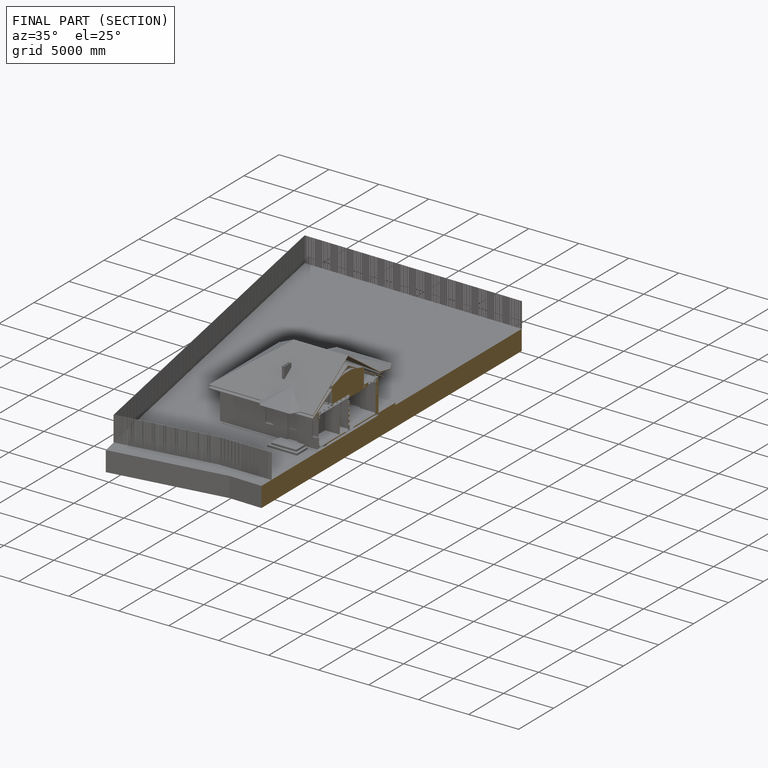
[diagram: finished part — half-section view (interior)]
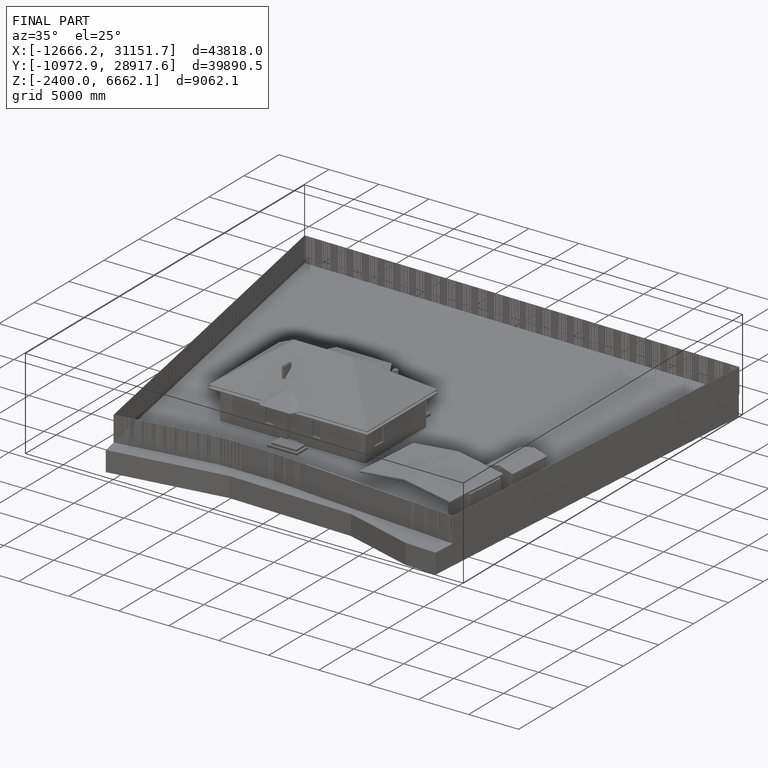
[diagram: finished part — iso view with bounding-box wireframe]
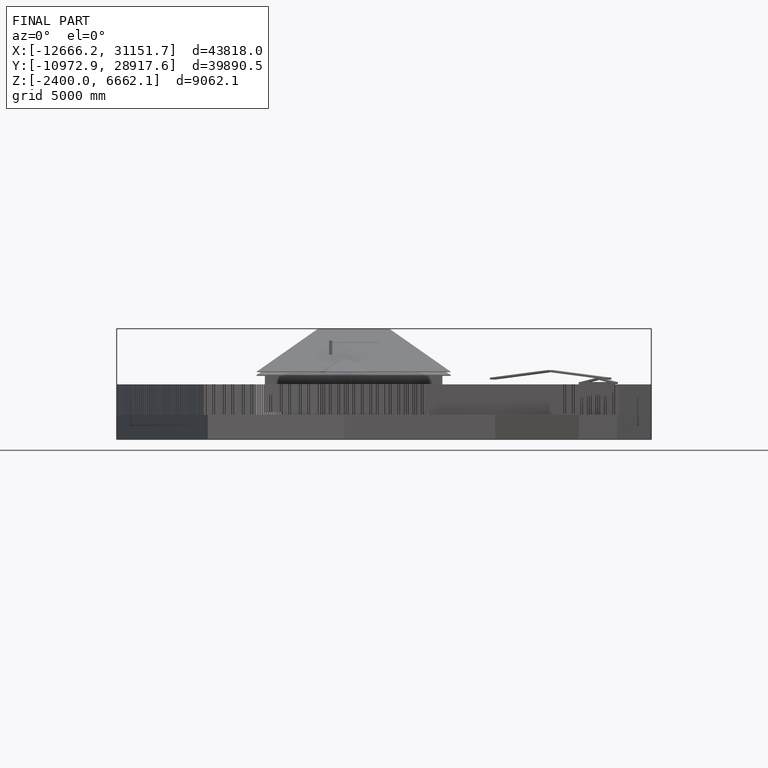
[diagram: finished part — front view with bounding-box wireframe]
